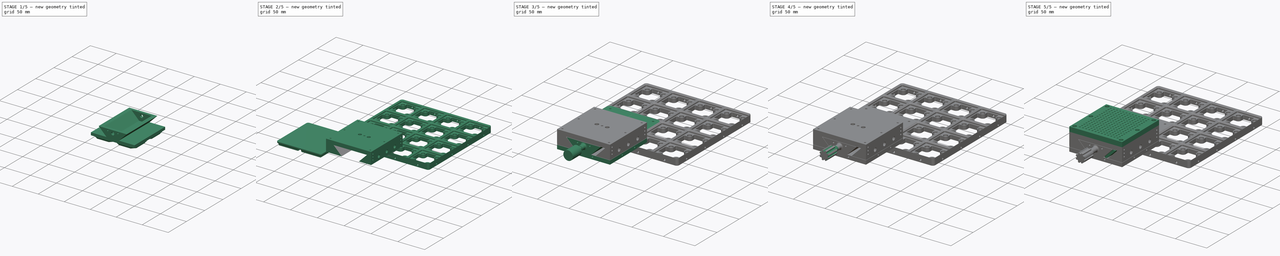
[diagram: build sequence overview — one tinted view per stage of 5, left to right]
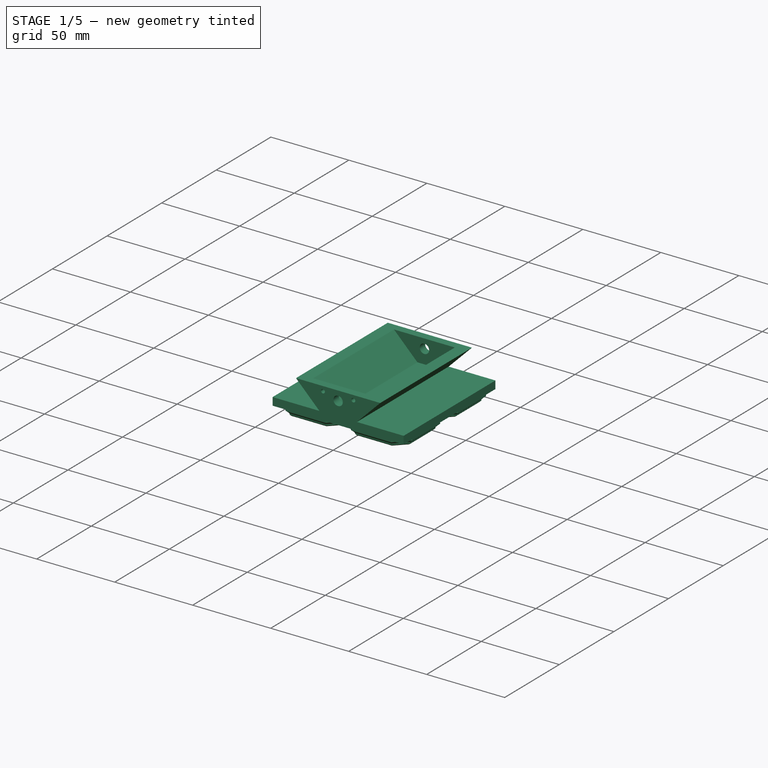
[diagram: stage 1 of 5 — iso view after this stage's code; geometry added in this stage tinted green]
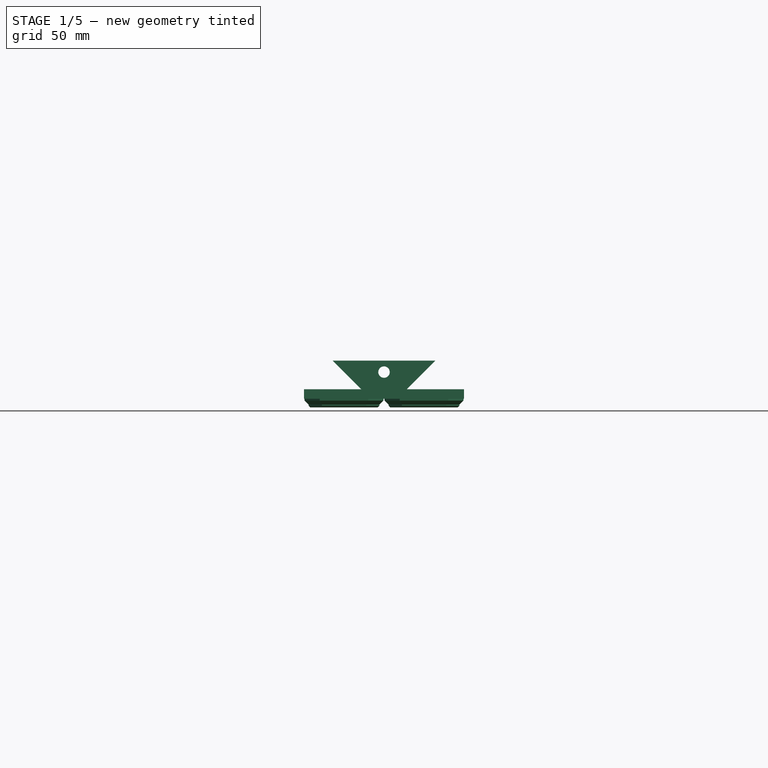
[diagram: stage 1 of 5 — front view after this stage's code; geometry added in this stage tinted green]
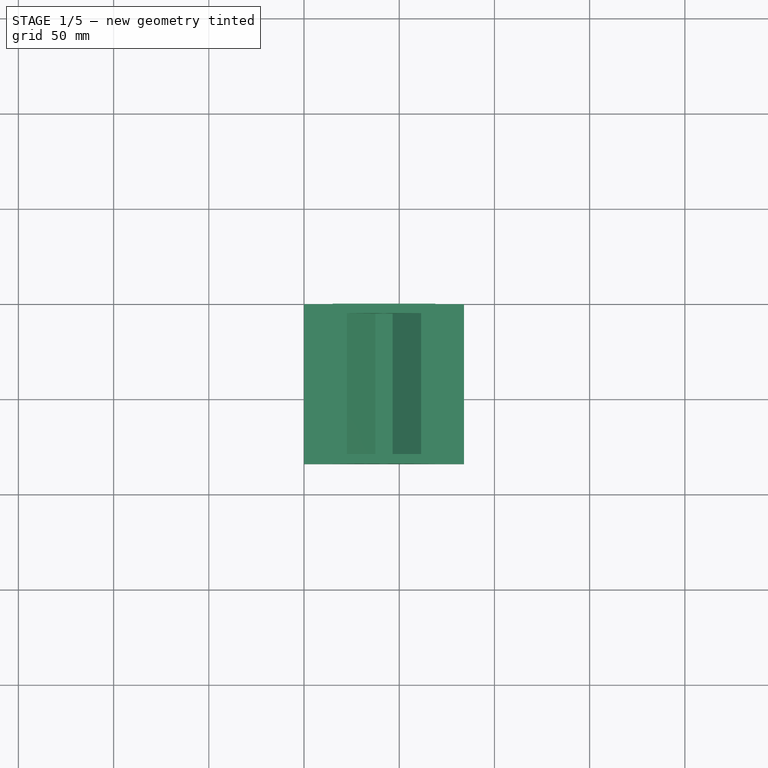
[diagram: stage 1 of 5 — top view after this stage's code; geometry added in this stage tinted green]
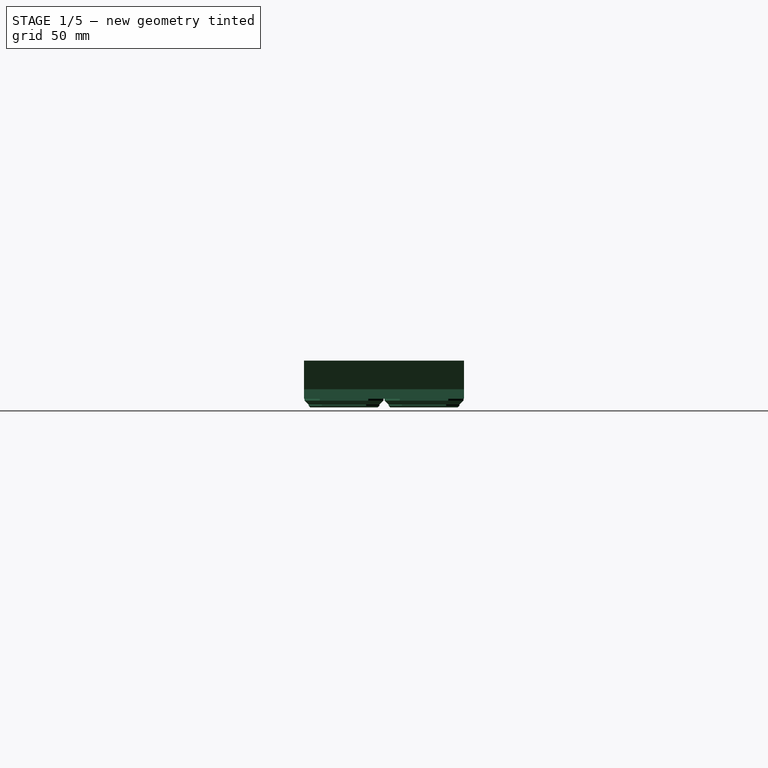
[diagram: stage 1 of 5 — right view after this stage's code; geometry added in this stage tinted green]
FCSTD DOCUMENT  (FreeCAD 1.0R39109 (Git))
Label: Linear Stage Multi Part v5
License: All rights reserved
LicenseURL: https://en.wikipedia.org/wiki/All_rights_reserved
objects: Sketcher::SketchObject×65, PartDesign::Pocket×37, PartDesign::Pad×26, PartDesign::Chamfer×17, PartDesign::Plane×12, PartDesign::Body×11, PartDesign::ShapeBinder×10, PartDesign::Fillet×6, PartDesign::SubShapeBinder×5, PartDesign::Hole×3, PartDesign::FeatureBase×3, PartDesign::Point×1, Part::Part2DObjectPython×1, Part::Helix×1, PartDesign::AdditivePipe×1, Part::FeaturePython×1, App::VarSet×1, PartDesign::FeaturePython×1
note: 450 computed .brp shape members not serialized (recipe doc carries the construction recipe); baked Part::Feature solids carry a one-line shape summary decoded from their .brp

FEATURE [Sketcher::SketchObject] Sketch
  ArcFitTolerance = 1e-06
  AttachmentSupport = -> [XZ_Plane]
  FullyConstrained = true
  MakeInternals = false
  MapMode = 5
  Placement = pos=(0,0,0) rot=(1,0,0;1.5708rad)
  sketch-geometry (8):
    g0: LineSegment StartX=0 StartY=0 StartZ=0 EndX=84 EndY=0 EndZ=0
    g1: LineSegment StartX=0 StartY=0 StartZ=0 EndX=0 EndY=5 EndZ=0
    g2: LineSegment StartX=84 StartY=0 StartZ=0 EndX=84 EndY=5 EndZ=0
    g3: LineSegment StartX=0 StartY=5 StartZ=0 EndX=30 EndY=5 EndZ=0
    g4: LineSegment StartX=84 StartY=5 StartZ=0 EndX=54 EndY=5 EndZ=0
    g5: LineSegment StartX=30 StartY=5 StartZ=0 EndX=15 EndY=20 EndZ=0
    g6: LineSegment StartX=54 StartY=5 StartZ=0 EndX=69 EndY=20 EndZ=0
    g7: LineSegment StartX=15 StartY=20 StartZ=0 EndX=69 EndY=20 EndZ=0
  constraints (24):
    c: Distance(g0) = 84
    c: Distance(g1) = 5
    c: Coincident(g1,g0)
    c: PointOnObject(g1,g-2)
    c: Vertical(g1)
    c: Distance(g2) = 5
    c: Vertical(g2)
    c: Tangent(g0,g-1)
    c: PointOnObject(g2,g0)
    c: PointOnObject(g0,g2)
    c: Coincident(g3,g1)
    c: Horizontal(g3)
    c: Coincident(g4,g2)
    c: Horizontal(g4)
    c: DistanceX(g3,g3) = 30
    c: DistanceX(g4,g4) = 30
    c: Angle(g-1,g5) = 2.35619
    c: Coincident(g5,g3)
    c: Angle(g-1,g6) = 0.785398
    c: Coincident(g6,g4)
    c: DistanceY(g-1,g5) = 20
    c: DistanceY(g-1,g6) = 20
    c: Coincident(g7,g5)
    c: Coincident(g7,g6)
FEATURE [PartDesign::Pad] Pad
  Direction = (0,-1,2e-16)
  Length = 5
  Length2 = 10
  Placement = pos=(0,0,0) rot=(1,0,0;1.5708rad)
  Profile = -> Sketch
  ReferenceAxis = -> Sketch [N_Axis]
  Refine = true
  Suppressed = false
  Type = 0
FEATURE [Sketcher::SketchObject] Sketch001
  ArcFitTolerance = 1e-06
  AttachmentSupport = -> [Pad]
  ExternalGeometry = -> [Pad]
  FullyConstrained = true
  MakeInternals = false
  MapMode = 5
  Placement = pos=(0,-5,0) rot=(1,0,0;1.5708rad)
  sketch-geometry (14):
    g0: LineSegment StartX=15 StartY=20 StartZ=0 EndX=22.5 EndY=20 EndZ=0
    g1: LineSegment [constr] StartX=30 StartY=5 StartZ=0 EndX=37.5 EndY=5 EndZ=0
    g2: LineSegment StartX=22.5 StartY=20 StartZ=0 EndX=37.5 EndY=5 EndZ=0
    g3: LineSegment StartX=69 StartY=20 StartZ=0 EndX=61.5 EndY=20 EndZ=0
    g4: LineSegment [constr] StartX=54 StartY=5 StartZ=0 EndX=46.5 EndY=5 EndZ=0
    g5: LineSegment StartX=46.5 StartY=5 StartZ=0 EndX=61.5 EndY=20 EndZ=0
    g6: LineSegment StartX=46.5 StartY=5 StartZ=0 EndX=37.5 EndY=5 EndZ=0
    g7: LineSegment StartX=15 StartY=20 StartZ=0 EndX=30 EndY=5 EndZ=0
    g8: LineSegment StartX=30 StartY=5 StartZ=0 EndX=0 EndY=5 EndZ=0
    g9: LineSegment StartX=0 StartY=5 StartZ=0 EndX=0 EndY=0 EndZ=0
    g10: LineSegment StartX=0 StartY=0 StartZ=0 EndX=84 EndY=0 EndZ=0
    g11: LineSegment StartX=84 StartY=0 StartZ=0 EndX=84 EndY=5 EndZ=0
    g12: LineSegment StartX=84 StartY=5 StartZ=0 EndX=54 EndY=5 EndZ=0
    g13: LineSegment StartX=54 StartY=5 StartZ=0 EndX=69 EndY=20 EndZ=0
  constraints (32):
    c: Distance(g0) = 7.5
    c: Coincident(g0,g-4)
    c: PointOnObject(g0,g-3)
    c: Distance(g1) = 7.5
    c: Coincident(g1,g-5)
    c: Horizontal(g1)
    c: Coincident(g2,g0)
    c: Coincident(g2,g1)
    c: Distance(g3) = 7.5
    c: Coincident(g3,g-3)
    c: PointOnObject(g3,g-3)
    c: Distance(g4) = 7.5
    c: Coincident(g4,g-6)
    c: Horizontal(g4)
    c: Coincident(g5,g4)
    c: Coincident(g5,g3)
    c: Coincident(g6,g4)
    c: Coincident(g6,g1)
    c: Coincident(g7,g0)
    c: Coincident(g7,g1)
    c: Coincident(g8,g1)
    c: Coincident(g8,g-8)
    c: Coincident(g9,g8)
    c: Coincident(g9,g-1)
    c: Coincident(g10,g9)
    c: Coincident(g10,g-9)
    c: Coincident(g11,g10)
    c: Coincident(g11,g-7)
    c: Coincident(g12,g11)
    c: Coincident(g12,g4)
    c: Coincident(g13,g4)
    c: Coincident(g13,g3)
FEATURE [PartDesign::Pad] Pad001
  BaseFeature = -> Pad
  Direction = (0,-1,2e-16)
  Length = 74
  Length2 = 10
  Placement = pos=(0,0,0) rot=(1,0,0;1.5708rad)
  Profile = -> Sketch001
  ReferenceAxis = -> Sketch001 [N_Axis]
  Refine = true
  Suppressed = false
  Type = 0
FEATURE [Sketcher::SketchObject] Sketch002
  ArcFitTolerance = 1e-06
  AttachmentSupport = -> [Pad001]
  ExternalGeometry = -> [Pad001]
  FullyConstrained = true
  MakeInternals = false
  MapMode = 5
  Placement = pos=(0,-5,0) rot=(1,0,0;1.5708rad)
  sketch-geometry (2):
    g0: LineSegment [constr] StartX=42 StartY=20 StartZ=0 EndX=42 EndY=14 EndZ=0
    g1: Circle CenterX=42 CenterY=14 CenterZ=0 NormalX=0 NormalY=0 NormalZ=1 AngleXU=0 Radius=3
  constraints (5):
    c: Distance(g0) = 6
    c: Symmetric(g-3,g-3,g0)
    c: Vertical(g0)
    c: Diameter(g1) = 6
    c: Coincident(g1,g0)
FEATURE [PartDesign::Hole] Hole
  BaseFeature = -> Pad001
  CustomThreadClearance = 0
  Depth = 25
  DepthType = 0
  Diameter = 6
  DrillForDepth = false
  DrillPoint = 1
  DrillPointAngle = 118
  HoleCutCountersinkAngle = 90
  HoleCutCustomValues = false
  HoleCutDepth = 0
  HoleCutDiameter = 6.1
  HoleCutType = 0
  ModelThread = false
  Placement = pos=(0,0,0) rot=(1,0,0;1.5708rad)
  Profile = -> Sketch002
  Refine = true
  Suppressed = false
  Tapered = false
  TaperedAngle = 90
  ThreadClass = 0
  ThreadDepth = 25
  ThreadDepthType = 0
  ThreadDirection = 0
  ThreadFit = 0
  ThreadSize = 0
  ThreadType = 0
  Threaded = false
  UseCustomThreadClearance = false
FEATURE [Sketcher::SketchObject] Sketch003
  ArcFitTolerance = 1e-06
  AttachmentSupport = -> [Hole]
  ExternalGeometry = -> [Hole]
  FullyConstrained = true
  MakeInternals = false
  MapMode = 5
  Placement = pos=(0,-79,1.74e-14) rot=(1,0,0;1.5708rad)
  sketch-geometry (16):
    g0: LineSegment StartX=15 StartY=20 StartZ=0 EndX=69 EndY=20 EndZ=0
    g1: LineSegment StartX=15 StartY=20 StartZ=0 EndX=30 EndY=5 EndZ=0
    g2: LineSegment StartX=30 StartY=5 StartZ=0 EndX=0 EndY=5 EndZ=0
    g3: LineSegment StartX=0 StartY=5 StartZ=0 EndX=0 EndY=0 EndZ=0
    g4: LineSegment StartX=0 StartY=0 StartZ=0 EndX=84 EndY=0 EndZ=0
    g5: LineSegment StartX=84 StartY=0 StartZ=0 EndX=84 EndY=5 EndZ=0
    g6: LineSegment StartX=84 StartY=5 StartZ=0 EndX=54 EndY=5 EndZ=0
    g7: LineSegment StartX=54 StartY=5 StartZ=0 EndX=69 EndY=20 EndZ=0
    g8: LineSegment [constr] StartX=42 StartY=20 StartZ=0 EndX=42 EndY=14 EndZ=0
    g9: Circle CenterX=42 CenterY=14 CenterZ=0 NormalX=0 NormalY=0 NormalZ=1 AngleXU=0 Radius=3
    g10: LineSegment [constr] StartX=42 StartY=14 StartZ=0 EndX=22.5 EndY=20 EndZ=0
    g11: LineSegment [constr] StartX=42 StartY=14 StartZ=0 EndX=61.5 EndY=20 EndZ=0
    g12: GeomPoint [constr] X=32.25 Y=17 Z=0
    g13: GeomPoint [constr] X=51.75 Y=17 Z=0
    g14: Circle CenterX=32.25 CenterY=17 CenterZ=0 NormalX=0 NormalY=0 NormalZ=1 AngleXU=0 Radius=1.25
    g15: Circle CenterX=51.75 CenterY=17 CenterZ=0 NormalX=0 NormalY=0 NormalZ=1 AngleXU=0 Radius=1.25
  constraints (31):
    c: Coincident(g0,g-4)
    c: Coincident(g0,g-11)
    c: Coincident(g1,g0)
    c: Coincident(g1,g-5)
    c: Coincident(g2,g1)
    c: Coincident(g2,g-6)
    c: Coincident(g3,g2)
    c: Coincident(g3,g-1)
    c: Coincident(g4,g3)
    c: Coincident(g4,g-8)
    c: Coincident(g5,g4)
    c: Coincident(g5,g-9)
    c: Coincident(g6,g5)
    c: Coincident(g6,g-10)
    c: Coincident(g7,g6)
    c: Coincident(g7,g0)
    c: Distance(g8) = 6
    c: Symmetric(g0,g0,g8)
    c: Vertical(g8)
    c: Diameter(g9) = 6
    c: Coincident(g9,g8)
    c: Coincident(g10,g8)
    c: Coincident(g10,g-14)
    c: Coincident(g11,g8)
    c: Coincident(g11,g-12)
    c: Symmetric(g10,g10,g12)
    c: Symmetric(g11,g11,g13)
    c: Diameter(g14) = 2.5
    c: Coincident(g14,g12)
    c: Diameter(g15) = 2.5
    c: Coincident(g15,g13)
FEATURE [PartDesign::Pad] Pad002
  BaseFeature = -> Hole
  Direction = (0,-1,2e-16)
  Length = 5
  Length2 = 10
  Placement = pos=(0,0,0) rot=(1,0,0;1.5708rad)
  Profile = -> Sketch003
  ReferenceAxis = -> Sketch003 [N_Axis]
  Refine = true
  Suppressed = false
  Type = 0
FEATURE [PartDesign::Plane] DatumPlane
  AttachmentSupport = -> [Pad002]
  Length = 131.586
  MapMode = 5
  Placement = pos=(0,0,-5e-16) rot=(1,0,0;3.14159rad)
  ResizeMode = 0
  Width = 139.586
FEATURE [Sketcher::SketchObject] Sketch004
  ArcFitTolerance = 1e-06
  AttachmentSupport = -> [Pad002]
  ExternalGeometry = -> [Pad002]
  FullyConstrained = true
  MakeInternals = false
  MapMode = 5
  Placement = pos=(0,0,-5e-16) rot=(1,0,0;3.14159rad)
  sketch-geometry (23):
    g0: LineSegment [constr] StartX=0 StartY=84 StartZ=0 EndX=84 EndY=0 EndZ=0
    g1: LineSegment [constr] StartX=41.75 StartY=41.75 StartZ=0 EndX=42.25 EndY=41.75 EndZ=0
    g2: LineSegment [constr] StartX=42.25 StartY=41.75 StartZ=0 EndX=42.25 EndY=42.25 EndZ=0
    g3: LineSegment [constr] StartX=42.25 StartY=42.25 StartZ=0 EndX=41.75 EndY=42.25 EndZ=0
    g4: LineSegment [constr] StartX=41.75 StartY=42.25 StartZ=0 EndX=41.75 EndY=41.75 EndZ=0
    g5: GeomPoint [constr] X=42 Y=42 Z=0
    g6: LineSegment [constr] StartX=0 StartY=0 StartZ=0 EndX=84 EndY=84 EndZ=0
    g7: LineSegment StartX=42.25 StartY=42.25 StartZ=0 EndX=83.75 EndY=42.25 EndZ=0
    g8: LineSegment StartX=83.75 StartY=42.25 StartZ=0 EndX=83.75 EndY=83.75 EndZ=0
    g9: LineSegment StartX=83.75 StartY=83.75 StartZ=0 EndX=42.25 EndY=83.75 EndZ=0
    g10: LineSegment StartX=42.25 StartY=83.75 StartZ=0 EndX=42.25 EndY=42.25 EndZ=0
    g11: LineSegment StartX=41.75 StartY=42.25 StartZ=0 EndX=41.75 EndY=83.75 EndZ=0
    g12: LineSegment StartX=41.75 StartY=83.75 StartZ=0 EndX=0.25 EndY=83.75 EndZ=0
    g13: LineSegment StartX=0.25 StartY=83.75 StartZ=0 EndX=0.25 EndY=42.25 EndZ=0
    g14: LineSegment StartX=0.25 StartY=42.25 StartZ=0 EndX=41.75 EndY=42.25 EndZ=0
    g15: LineSegment StartX=42.25 StartY=41.75 StartZ=0 EndX=42.25 EndY=0.25 EndZ=0
    g16: LineSegment StartX=42.25 StartY=0.25 StartZ=0 EndX=83.75 EndY=0.25 EndZ=0
    g17: LineSegment StartX=83.75 StartY=0.25 StartZ=0 EndX=83.75 EndY=41.75 EndZ=0
    g18: LineSegment StartX=83.75 StartY=41.75 StartZ=0 EndX=42.25 EndY=41.75 EndZ=0
    g19: LineSegment StartX=41.75 StartY=41.75 StartZ=0 EndX=0.25 EndY=41.75 EndZ=0
    g20: LineSegment StartX=0.25 StartY=41.75 StartZ=0 EndX=0.25 EndY=0.25 EndZ=0
    g21: LineSegment StartX=0.25 StartY=0.25 StartZ=0 EndX=41.75 EndY=0.25 EndZ=0
    g22: LineSegment StartX=41.75 StartY=0.25 StartZ=0 EndX=41.75 EndY=41.75 EndZ=0
  constraints (61):
    c: Coincident(g0,g-6)
    c: Coincident(g0,g-5)
    c: Coincident(g1,g2)
    c: Coincident(g2,g3)
    c: Coincident(g3,g4)
    c: Coincident(g4,g1)
    c: Horizontal(g1)
    c: Horizontal(g3)
    c: Vertical(g2)
    c: Vertical(g4)
    c: Symmetric(g3,g1,g5)
    c: Distance(g2,g4) = 0.5
    c: Distance(g1,g3) = 0.5
    c: PointOnObject(g5,g0)
    c: Coincident(g6,g-1)
    c: Coincident(g6,g-4)
    c: PointOnObject(g5,g6)
    c: Coincident(g7,g8)
    c: Coincident(g8,g9)
    c: Coincident(g9,g10)
    c: Coincident(g10,g7)
    c: Horizontal(g7)
    c: Horizontal(g9)
    c: Vertical(g8)
    c: Vertical(g10)
    c: Distance(g8,g10) = 41.5
    c: Coincident(g7,g2)
    c: PointOnObject(g8,g6)
    c: Coincident(g11,g12)
    c: Coincident(g12,g13)
    c: Coincident(g13,g14)
    c: Coincident(g14,g11)
    c: Vertical(g11)
    c: Vertical(g13)
    c: Horizontal(g12)
    c: Horizontal(g14)
    c: Distance(g11,g13) = 41.5
    c: Coincident(g11,g3)
    c: PointOnObject(g12,g0)
    c: Coincident(g15,g16)
    c: Coincident(g16,g17)
    c: Coincident(g17,g18)
    c: Coincident(g18,g15)
    c: Vertical(g15)
    c: Vertical(g17)
    c: Horizontal(g16)
    c: Horizontal(g18)
    c: Distance(g15,g17) = 41.5
    c: Coincident(g15,g1)
    c: PointOnObject(g16,g0)
    c: Coincident(g19,g20)
    c: Coincident(g20,g21)
    c: Coincident(g21,g22)
    c: Coincident(g22,g19)
    c: Horizontal(g19)
    c: Horizontal(g21)
    c: Vertical(g20)
    c: Vertical(g22)
    c: Distance(g20,g22) = 41.5
    c: Coincident(g19,g1)
    c: PointOnObject(g20,g6)
FEATURE [PartDesign::Pad] Pad003
  BaseFeature = -> Pad002
  Direction = (0,0,-1)
  Length = 1
  Length2 = 10
  Placement = pos=(0,0,0) rot=(1,0,0;1.5708rad)
  Profile = -> Sketch004
  ReferenceAxis = -> Sketch004 [N_Axis]
  Refine = true
  Suppressed = false
  Type = 0
FEATURE [PartDesign::Plane] DatumPlane001
  AttachmentSupport = -> [Pad003]
  Length = 131.586
  MapMode = 5
  Placement = pos=(0,0,-1) rot=(1,0,0;3.14159rad)
  ResizeMode = 0
  Width = 139.586
FEATURE [Sketcher::SketchObject] Sketch005
  ArcFitTolerance = 1e-06
  AttachmentSupport = -> [DatumPlane001]
  ExternalGeometry = -> [Pad003]
  FullyConstrained = true
  MakeInternals = false
  MapMode = 5
  Placement = pos=(0,0,-1) rot=(1,0,0;3.14159rad)
  sketch-geometry (28):
    g0: LineSegment [constr] StartX=41.75 StartY=42.25 StartZ=0 EndX=0.25 EndY=83.75 EndZ=0
    g1: GeomPoint [constr] X=21 Y=63 Z=0
    g2: LineSegment StartX=2.4 StartY=44.4 StartZ=0 EndX=39.6 EndY=44.4 EndZ=0
    g3: LineSegment StartX=39.6 StartY=44.4 StartZ=0 EndX=39.6 EndY=81.6 EndZ=0
    g4: LineSegment StartX=39.6 StartY=81.6 StartZ=0 EndX=2.4 EndY=81.6 EndZ=0
    g5: LineSegment StartX=2.4 StartY=81.6 StartZ=0 EndX=2.4 EndY=44.4 EndZ=0
    g6: GeomPoint [constr] X=21 Y=63 Z=0
    g7: LineSegment [constr] StartX=42.25 StartY=83.75 StartZ=0 EndX=83.75 EndY=42.25 EndZ=0
    g8: LineSegment [constr] StartX=83.75 StartY=41.75 StartZ=0 EndX=42.25 EndY=0.25 EndZ=0
    g9: LineSegment [constr] StartX=41.75 StartY=0.25 StartZ=0 EndX=0.25 EndY=41.75 EndZ=0
    g10: GeomPoint [constr] X=63 Y=63 Z=0
    g11: GeomPoint [constr] X=63 Y=21 Z=0
    g12: GeomPoint [constr] X=21 Y=21 Z=0
    g13: LineSegment StartX=44.4 StartY=44.4 StartZ=0 EndX=81.6 EndY=44.4 EndZ=0
    g14: LineSegment StartX=81.6 StartY=44.4 StartZ=0 EndX=81.6 EndY=81.6 EndZ=0
    g15: LineSegment StartX=81.6 StartY=81.6 StartZ=0 EndX=44.4 EndY=81.6 EndZ=0
    g16: LineSegment StartX=44.4 StartY=81.6 StartZ=0 EndX=44.4 EndY=44.4 EndZ=0
    g17: GeomPoint [constr] X=63 Y=63 Z=0
    g18: LineSegment StartX=44.4 StartY=2.4 StartZ=0 EndX=81.6 EndY=2.4 EndZ=0
    g19: LineSegment StartX=81.6 StartY=2.4 StartZ=0 EndX=81.6 EndY=39.6 EndZ=0
    g20: LineSegment StartX=81.6 StartY=39.6 StartZ=0 EndX=44.4 EndY=39.6 EndZ=0
    g21: LineSegment StartX=44.4 StartY=39.6 StartZ=0 EndX=44.4 EndY=2.4 EndZ=0
    g22: GeomPoint [constr] X=63 Y=21 Z=0
    g23: LineSegment StartX=2.4 StartY=2.4 StartZ=0 EndX=39.6 EndY=2.4 EndZ=0
    g24: LineSegment StartX=39.6 StartY=2.4 StartZ=0 EndX=39.6 EndY=39.6 EndZ=0
    g25: LineSegment StartX=39.6 StartY=39.6 StartZ=0 EndX=2.4 EndY=39.6 EndZ=0
    g26: LineSegment StartX=2.4 StartY=39.6 StartZ=0 EndX=2.4 EndY=2.4 EndZ=0
    g27: GeomPoint [constr] X=21 Y=21 Z=0
  constraints (60):
    c: Coincident(g0,g-14)
    c: Coincident(g0,g-16)
    c: Symmetric(g0,g0,g1)
    c: Coincident(g2,g3)
    c: Coincident(g3,g4)
    c: Coincident(g4,g5)
    c: Coincident(g5,g2)
    c: Horizontal(g2)
    c: Horizontal(g4)
    c: Vertical(g3)
    c: Vertical(g5)
    c: Symmetric(g4,g2,g6)
    c: Distance(g3,g5) = 37.2
    c: Distance(g2,g4) = 37.2
    c: Coincident(g6,g1)
    c: Coincident(g7,g-18)
    c: Coincident(g7,g-17)
    c: Coincident(g8,g-9)
    c: Coincident(g8,g-10)
    c: Coincident(g9,g-4)
    c: Coincident(g9,g-6)
    c: Symmetric(g7,g7,g10)
    c: Symmetric(g8,g8,g11)
    c: Symmetric(g9,g9,g12)
    c: Coincident(g13,g14)
    c: Coincident(g14,g15)
    c: Coincident(g15,g16)
    c: Coincident(g16,g13)
    c: Horizontal(g13)
    c: Horizontal(g15)
    c: Vertical(g14)
    c: Vertical(g16)
    c: Symmetric(g15,g13,g17)
    c: Distance(g14,g16) = 37.2
    c: Distance(g13,g15) = 37.2
    c: Coincident(g17,g10)
    c: Coincident(g18,g19)
    c: Coincident(g19,g20)
    c: Coincident(g20,g21)
    c: Coincident(g21,g18)
    c: Horizontal(g18)
    c: Horizontal(g20)
    c: Vertical(g19)
    c: Vertical(g21)
    c: Symmetric(g20,g18,g22)
    c: Distance(g19,g21) = 37.2
    c: Coincident(g22,g11)
    c: PointOnObject(g19,g8)
    c: Coincident(g23,g24)
    c: Coincident(g24,g25)
    c: Coincident(g25,g26)
    c: Coincident(g26,g23)
    c: Horizontal(g23)
    c: Horizontal(g25)
    c: Vertical(g24)
    c: Vertical(g26)
    c: Symmetric(g25,g23,g27)
    c: Distance(g24,g26) = 37.2
    c: Distance(g23,g25) = 37.2
    c: Coincident(g27,g12)
FEATURE [PartDesign::Pad] Pad004
  BaseFeature = -> Pad003
  Direction = (0,0,-1)
  Length = 3.5
  Length2 = 10
  Placement = pos=(0,0,0) rot=(1,0,0;1.5708rad)
  Profile = -> Sketch005
  ReferenceAxis = -> Sketch005 [N_Axis]
  Refine = true
  Suppressed = false
  Type = 0
FEATURE [PartDesign::Chamfer] Chamfer
  Angle = 45
  Base = -> Pad004 [Edge114]
  BaseFeature = -> Pad004
  ChamferType = 0
  FlipDirection = false
  Placement = pos=(0,0,0) rot=(1,0,0;1.5708rad)
  Refine = true
  Size = 7
  Size2 = 1
  SupportTransform = false
  Suppressed = false
  UseAllEdges = false
FEATURE [PartDesign::Chamfer] Chamfer001
  Angle = 45
  Base = -> Chamfer [Edge23]
  BaseFeature = -> Chamfer
  ChamferType = 0
  FlipDirection = false
  Placement = pos=(0,0,0) rot=(1,0,0;1.5708rad)
  Refine = true
  Size = 7
  Size2 = 1
  SupportTransform = false
  Suppressed = false
  UseAllEdges = false
FEATURE [PartDesign::Chamfer] Chamfer002
  Angle = 45
  Base = -> Chamfer001 [Edge136,Edge28,Edge143,Edge22,Edge135,Edge128,Edge144,Edge148,Edge140,Edge127,Edge132,Edge138,Edge26,Edge130]
  BaseFeature = -> Chamfer001
  ChamferType = 0
  FlipDirection = false
  Placement = pos=(0,0,0) rot=(1,0,0;1.5708rad)
  Refine = true
  Size = 7
  Size2 = 1
  SupportTransform = false
  Suppressed = false
  UseAllEdges = false
FEATURE [PartDesign::Chamfer] Chamfer003
  Angle = 45
  Base = -> Chamfer002 [Edge77,Edge79,Edge93,Edge81,Edge95,Edge38,Edge76,Edge32,Edge92,Edge84,Edge97,Edge85,Edge87,Edge89,Edge35]
  BaseFeature = -> Chamfer002
  ChamferType = 0
  FlipDirection = false
  Placement = pos=(0,0,0) rot=(1,0,0;1.5708rad)
  Refine = true
  Size = 8
  Size2 = 1
  SupportTransform = false
  Suppressed = false
  UseAllEdges = false
FEATURE [PartDesign::Chamfer] Chamfer004
  Angle = 45
  Base = -> Chamfer003 [Edge231]
  BaseFeature = -> Chamfer003
  ChamferType = 0
  FlipDirection = false
  Placement = pos=(0,0,0) rot=(1,0,0;1.5708rad)
  Refine = true
  Size = 7
  Size2 = 1
  SupportTransform = false
  Suppressed = false
  UseAllEdges = false
FEATURE [PartDesign::Chamfer] Chamfer005
  Angle = 45
  Base = -> Chamfer004 [Edge1,Edge2,Edge4,Edge6,Edge8,Edge7,Edge5,Edge3]
  BaseFeature = -> Chamfer004
  ChamferType = 0
  FlipDirection = false
  Placement = pos=(0,0,0) rot=(1,0,0;1.5708rad)
  Refine = true
  Size = 2
  Size2 = 1
  SupportTransform = false
  Suppressed = false
  UseAllEdges = false
FEATURE [PartDesign::Chamfer] Chamfer006
  Angle = 45
  Base = -> Chamfer005 [Edge60,Edge64,Edge62,Edge58,Edge55,Edge50,Edge52,Edge56]
  BaseFeature = -> Chamfer005
  ChamferType = 0
  FlipDirection = false
  Placement = pos=(0,0,0) rot=(1,0,0;1.5708rad)
  Refine = true
  Size = 0.8
  Size2 = 1
  SupportTransform = false
  Suppressed = false
  UseAllEdges = false
FEATURE [PartDesign::Chamfer] Chamfer007
  Angle = 45
  Base = -> Chamfer006 [Edge207,Edge208,Edge205,Edge206,Edge204,Edge202,Edge203,Edge201]
  BaseFeature = -> Chamfer006
  ChamferType = 0
  FlipDirection = false
  Placement = pos=(0,0,0) rot=(1,0,0;1.5708rad)
  Refine = true
  Size = 2
  Size2 = 1
  SupportTransform = false
  Suppressed = false
  UseAllEdges = false
FEATURE [PartDesign::Chamfer] Chamfer008
  Angle = 45
  Base = -> Chamfer007 [Edge63,Edge64,Edge60,Edge57,Edge52,Edge50,Edge55,Edge59]
  BaseFeature = -> Chamfer007
  ChamferType = 0
  FlipDirection = false
  Placement = pos=(0,0,0) rot=(1,0,0;1.5708rad)
  Refine = true
  Size = 0.8
  Size2 = 1
  SupportTransform = false
  Suppressed = false
  UseAllEdges = false
FEATURE [PartDesign::Chamfer] Chamfer009
  Angle = 45
  Base = -> Chamfer008 [Edge179,Edge177,Edge178,Edge181,Edge180,Edge182,Edge184,Edge183]
  BaseFeature = -> Chamfer008
  ChamferType = 0
  FlipDirection = false
  Placement = pos=(0,0,0) rot=(1,0,0;1.5708rad)
  Refine = true
  Size = 2
  Size2 = 1
  SupportTransform = false
  Suppressed = false
  UseAllEdges = false
FEATURE [PartDesign::Chamfer] Chamfer010
  Angle = 45
  Base = -> Chamfer009 [Edge55,Edge58,Edge62,Edge64,Edge61,Edge56,Edge53,Edge50]
  BaseFeature = -> Chamfer009
  ChamferType = 0
  FlipDirection = false
  Placement = pos=(0,0,0) rot=(1,0,0;1.5708rad)
  Refine = true
  Size = 0.8
  Size2 = 1
  SupportTransform = false
  Suppressed = false
  UseAllEdges = false
FEATURE [PartDesign::Chamfer] Chamfer011
  Angle = 45
  Base = -> Chamfer010 [Edge203,Edge205,Edge201,Edge202,Edge204,Edge206,Edge208,Edge207]
  BaseFeature = -> Chamfer010
  ChamferType = 0
  FlipDirection = false
  Placement = pos=(0,0,0) rot=(1,0,0;1.5708rad)
  Refine = true
  Size = 2
  Size2 = 1
  SupportTransform = false
  Suppressed = false
  UseAllEdges = false
FEATURE [PartDesign::Chamfer] Chamfer012
  Angle = 45
  Base = -> Chamfer011 [Edge62,Edge59,Edge54,Edge50,Edge53,Edge56,Edge61,Edge64]
  BaseFeature = -> Chamfer011
  ChamferType = 0
  FlipDirection = false
  Placement = pos=(0,0,0) rot=(1,0,0;1.5708rad)
  Refine = true
  Size = 0.8
  Size2 = 1
  SupportTransform = false
  Suppressed = false
  UseAllEdges = false
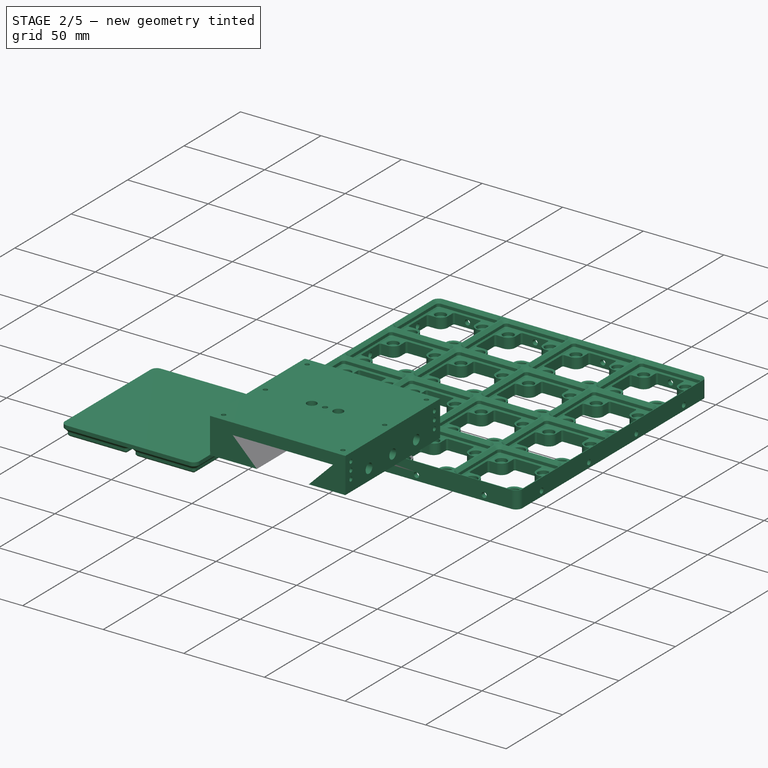
[diagram: stage 2 of 5 — iso view after this stage's code; geometry added in this stage tinted green]
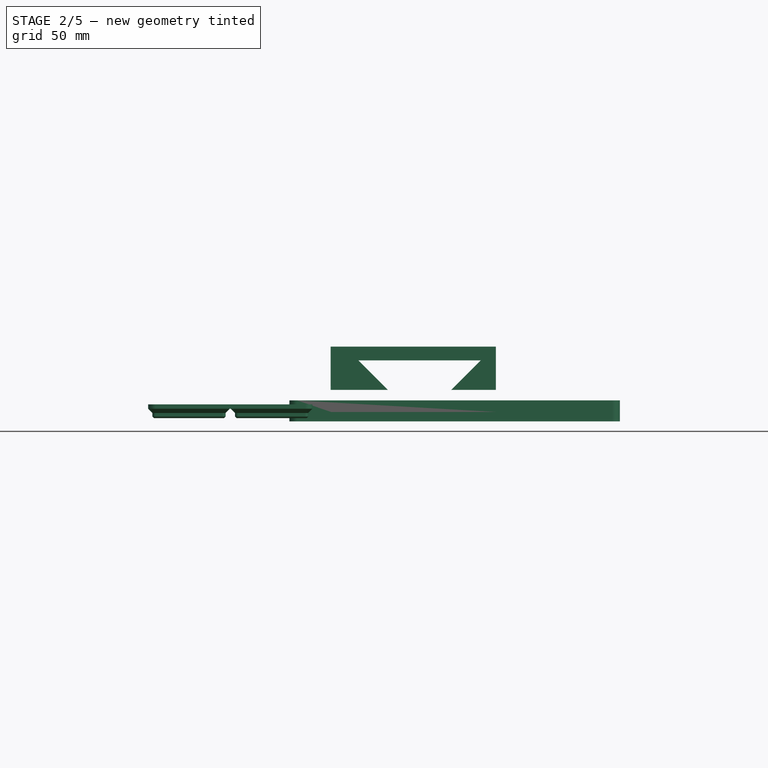
[diagram: stage 2 of 5 — front view after this stage's code; geometry added in this stage tinted green]
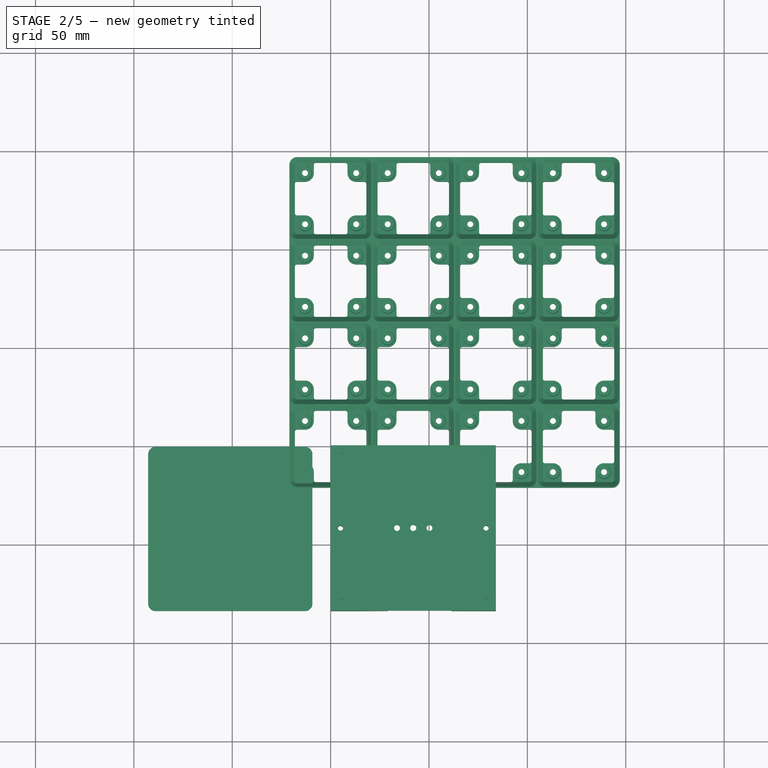
[diagram: stage 2 of 5 — top view after this stage's code; geometry added in this stage tinted green]
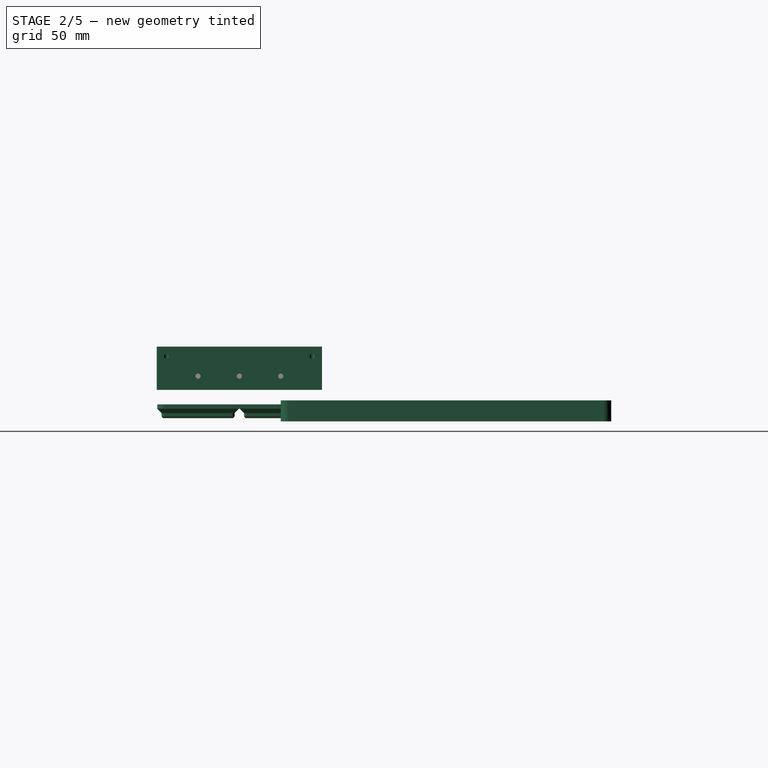
[diagram: stage 2 of 5 — right view after this stage's code; geometry added in this stage tinted green]
FEATURE [PartDesign::Fillet] Fillet
  Base = -> Chamfer012 [Edge188,Edge187]
  BaseFeature = -> Chamfer012
  Placement = pos=(0,0,0) rot=(1,0,0;1.5708rad)
  Radius = 0.5
  Refine = true
  SupportTransform = false
  Suppressed = false
  UseAllEdges = false
FEATURE [PartDesign::Body] Body001  label="Shim"
  AllowCompound = false
  Group = -> [ShapeBinder,DatumPlane002,CopyFillet,Sketch006,Pad005,DatumPlane003,Sketch007,Pocket,Fillet001,Fillet002,Fillet003]
  Origin = -> Origin001
  Tip = -> Fillet003
FEATURE [PartDesign::ShapeBinder] ShapeBinder001
  Support = -> [Fillet]
  TraceSupport = false
FEATURE [PartDesign::ShapeBinder] CopyFillet001
  Placement = pos=(0,-5,2e-15) rot=(0,0,1;0rad)
  TraceSupport = false
FEATURE [PartDesign::Plane] DatumPlane004
  AttachmentSupport = -> [CopyFillet001]
  Length = 124.108
  MapMode = 5
  Placement = pos=(0,-84,2e-15) rot=(1,0,0;1.5708rad)
  ResizeMode = 0
  Width = 67.4619
FEATURE [Sketcher::SketchObject] Sketch008
  ArcFitTolerance = 1e-06
  AttachmentSupport = -> [DatumPlane004]
  ExternalGeometry = -> [ShapeBinder001]
  FullyConstrained = true
  MakeInternals = false
  MapMode = 5
  Placement = pos=(0,-84,2e-15) rot=(1,0,0;1.5708rad)
  sketch-geometry (21):
    g0: LineSegment [constr] StartX=54 StartY=5 StartZ=0 EndX=61 EndY=5 EndZ=0
    g1: LineSegment [constr] StartX=68.1465 StartY=19.1464 StartZ=0 EndX=69 EndY=20 EndZ=0
    g2: LineSegment [constr] StartX=67.7929 StartY=20 StartZ=0 EndX=69 EndY=20 EndZ=0
    g3: LineSegment [constr] StartX=69 StartY=20 StartZ=0 EndX=76 EndY=20 EndZ=0
    g4: LineSegment [constr] StartX=61 StartY=5 StartZ=0 EndX=61.3536 EndY=5.35355 EndZ=0
    g5: LineSegment [constr] StartX=76 StartY=20 StartZ=0 EndX=76.3536 EndY=20.3536 EndZ=0
    g6: LineSegment StartX=76.3536 StartY=20.3536 StartZ=0 EndX=61.3536 EndY=5.35355 EndZ=0
    g7: LineSegment [constr] StartX=84 StartY=5 StartZ=0 EndX=84 EndY=5.5 EndZ=0
    g8: LineSegment StartX=61.3536 StartY=5.35355 StartZ=0 EndX=84 EndY=5.35355 EndZ=0
    g9: LineSegment StartX=84 StartY=5.35355 StartZ=0 EndX=84 EndY=25.3536 EndZ=0
    g10: LineSegment [constr] StartX=30 StartY=5 StartZ=0 EndX=29.5 EndY=5 EndZ=0
    g11: LineSegment [constr] StartX=16.2071 StartY=20 StartZ=0 EndX=14.5 EndY=20 EndZ=0
    g12: LineSegment [constr] StartX=29.5 StartY=5 StartZ=0 EndX=14.5 EndY=20 EndZ=0
    g13: LineSegment [constr] StartX=14.5 StartY=20 StartZ=0 EndX=14.1465 EndY=20.3536 EndZ=0
    g14: LineSegment [constr] StartX=29.5 StartY=5 StartZ=0 EndX=29.1464 EndY=5.35355 EndZ=0
    g15: LineSegment StartX=29.1464 StartY=5.35355 StartZ=0 EndX=14.1465 EndY=20.3536 EndZ=0
    g16: LineSegment [constr] StartX=0 StartY=5 StartZ=0 EndX=0 EndY=15 EndZ=0
    g17: LineSegment StartX=29.1464 StartY=5.35355 StartZ=0 EndX=0 EndY=5.35355 EndZ=0
    g18: LineSegment StartX=0 StartY=5.35355 StartZ=0 EndX=0 EndY=25.3536 EndZ=0
    g19: LineSegment StartX=0 StartY=25.3536 StartZ=0 EndX=84 EndY=25.3536 EndZ=0
    g20: LineSegment StartX=14.1465 StartY=20.3536 StartZ=0 EndX=76.3536 EndY=20.3536 EndZ=0
  constraints (58):
    c: Distance(g0) = 7
    c: Coincident(g0,g-8)
    c: PointOnObject(g0,g-8)
    c: Coincident(g1,g-7)
    c: Coincident(g2,g-6)
    c: Coincident(g2,g1)
    c: Parallel(g2,g-6)
    c: Parallel(g1,g-7)
    c: Distance(g3) = 7
    c: Coincident(g3,g1)
    c: Parallel(g3,g-6)
    c: Distance(g4) = 0.5
    c: Coincident(g4,g0)
    c: Parallel(g-7,g4)
    c: Distance(g5) = 0.5
    c: Coincident(g5,g3)
    c: Parallel(g5,g1)
    c: Coincident(g6,g5)
    c: Coincident(g6,g4)
    c: Distance(g7) = 0.5
    c: Coincident(g7,g-9)
    c: Vertical(g7)
    c: Coincident(g8,g4)
    c: PointOnObject(g8,g7)
    c: Horizontal(g8)
    c: Distance(g9) = 20
    c: Coincident(g9,g8)
    c: Vertical(g9)
    c: Distance(g10) = 0.5
    c: Coincident(g10,g-5)
    c: PointOnObject(g10,g-3)
    c: Coincident(g11,g-6)
    c: Horizontal(g11)
    c: Coincident(g12,g10)
    c: PointOnObject(g12,g11)
    c: Parallel(g12,g-5)
    c: PointOnObject(g11,g12)
    c: Distance(g13) = 0.5
    c: Coincident(g13,g11)
    c: Parallel(g12,g13)
    c: Distance(g14) = 0.5
    c: Coincident(g14,g10)
    c: PointOnObject(g14,g12)
    c: Coincident(g15,g14)
    c: Coincident(g15,g13)
    c: Distance(g16) = 10
    c: Coincident(g16,g-4)
    c: PointOnObject(g16,g-2)
    c: Coincident(g17,g14)
    c: PointOnObject(g17,g16)
    c: Parallel(g17,g-3)
    c: Distance(g18) = 20
    c: Coincident(g18,g17)
    c: PointOnObject(g18,g-2)
    c: Coincident(g19,g18)
    c: Coincident(g19,g9)
    c: Coincident(g20,g13)
    c: Coincident(g20,g5)
FEATURE [PartDesign::Pad] Pad006
  Direction = (0,-1,2e-16)
  Length = 84
  Length2 = 10
  Placement = pos=(0,-84,2e-15) rot=(1,0,0;1.5708rad)
  Profile = -> Sketch008
  ReferenceAxis = -> Sketch008 [N_Axis]
  Refine = true
  Reversed = true
  Suppressed = false
  Type = 0
FEATURE [Sketcher::SketchObject] Sketch009
  ArcFitTolerance = 1e-06
  AttachmentSupport = -> [Pad006]
  ExternalGeometry = -> [Pad006]
  FullyConstrained = true
  MakeInternals = false
  MapMode = 5
  Placement = pos=(84,-84,2e-15) rot=(0.707107,0,0.707107;3.14159rad)
  sketch-geometry (11):
    g0: GeomPoint [constr] X=25.3536 Y=-42 Z=0
    g1: GeomPoint [constr] X=5.35355 Y=-42 Z=0
    g2: LineSegment [constr] StartX=5.35355 StartY=-42 StartZ=0 EndX=25.3536 EndY=-42 EndZ=0
    g3: LineSegment [constr] StartX=5.35355 StartY=-42 StartZ=0 EndX=12.3536 EndY=-42 EndZ=0
    g4: LineSegment [constr] StartX=12.3536 StartY=-42 StartZ=0 EndX=12.3536 EndY=-7.1e-15 EndZ=0
    g5: LineSegment [constr] StartX=12.3536 StartY=-42 StartZ=0 EndX=12.3536 EndY=-84 EndZ=0
    g6: GeomPoint [constr] X=12.3536 Y=-21 Z=0
    g7: GeomPoint [constr] X=12.3536 Y=-63 Z=0
    g8: Circle CenterX=12.3536 CenterY=-21 CenterZ=0 NormalX=0 NormalY=0 NormalZ=1 AngleXU=0 Radius=1.325
    g9: Circle CenterX=12.3536 CenterY=-42 CenterZ=0 NormalX=0 NormalY=0 NormalZ=1 AngleXU=0 Radius=1.325
    g10: Circle CenterX=12.3536 CenterY=-63 CenterZ=0 NormalX=0 NormalY=0 NormalZ=1 AngleXU=0 Radius=1.325
  constraints (21):
    c: Symmetric(g-3,g-3,g0)
    c: Symmetric(g-5,g-5,g1)
    c: Coincident(g2,g1)
    c: Coincident(g2,g0)
    c: Distance(g3) = 7
    c: Coincident(g3,g1)
    c: PointOnObject(g3,g2)
    c: Coincident(g4,g3)
    c: PointOnObject(g4,g-6)
    c: Parallel(g4,g-5)
    c: Coincident(g5,g3)
    c: PointOnObject(g5,g-4)
    c: Vertical(g5)
    c: Symmetric(g4,g4,g6)
    c: Symmetric(g5,g5,g7)
    c: Diameter(g8) = 2.65
    c: Coincident(g8,g6)
    c: Diameter(g9) = 2.65
    c: Coincident(g9,g3)
    c: Diameter(g10) = 2.65
    c: Coincident(g10,g7)
FEATURE [PartDesign::Pocket] Pocket001
  BaseFeature = -> Pad006
  Direction = (-1,0,2e-16)
  Length = 20
  Length2 = 5
  Placement = pos=(0,-84,2e-15) rot=(1,0,0;1.5708rad)
  Profile = -> Sketch009
  ReferenceAxis = -> Sketch009 [N_Axis]
  Refine = true
  Suppressed = false
  Type = 0
FEATURE [Sketcher::SketchObject] Sketch010
  ArcFitTolerance = 1e-06
  AttachmentSupport = -> [Pocket001]
  ExternalGeometry = -> [Pocket001]
  FullyConstrained = true
  MakeInternals = false
  MapMode = 5
  Placement = pos=(7.71195e-08,-84,20.3536) rot=(1,0,0;3.14159rad)
  sketch-geometry (8):
    g0: LineSegment [constr] StartX=14.1465 StartY=0 StartZ=0 EndX=41.9965 EndY=0 EndZ=0
    g1: LineSegment [constr] StartX=41.9965 StartY=0 StartZ=0 EndX=41.9965 EndY=-84 EndZ=0
    g2: GeomPoint [constr] X=41.9965 Y=-42 Z=0
    g3: LineSegment StartX=35.4965 StartY=-47 StartZ=0 EndX=48.4965 EndY=-47 EndZ=0
    g4: LineSegment StartX=48.4965 StartY=-47 StartZ=0 EndX=48.4965 EndY=-37 EndZ=0
    g5: LineSegment StartX=48.4965 StartY=-37 StartZ=0 EndX=35.4965 EndY=-37 EndZ=0
    g6: LineSegment StartX=35.4965 StartY=-37 StartZ=0 EndX=35.4965 EndY=-47 EndZ=0
    g7: GeomPoint [constr] X=41.9965 Y=-42 Z=0
  constraints (19):
    c: Distance(g0) = 27.85
    c: Coincident(g0,g-3)
    c: PointOnObject(g0,g-3)
    c: Coincident(g1,g0)
    c: PointOnObject(g1,g-4)
    c: Vertical(g1)
    c: Symmetric(g1,g1,g2)
    c: Coincident(g3,g4)
    c: Coincident(g4,g5)
    c: Coincident(g5,g6)
    c: Coincident(g6,g3)
    c: Horizontal(g3)
    c: Horizontal(g5)
    c: Vertical(g4)
    c: Vertical(g6)
    c: Symmetric(g5,g3,g7)
    c: Distance(g4,g6) = 13
    c: Distance(g3,g5) = 10
    c: Coincident(g7,g2)
FEATURE [PartDesign::Pocket] Pocket002
  BaseFeature = -> Pocket001
  Direction = (3.78899e-09,0,1)
  Length = 0.5
  Length2 = 5
  Placement = pos=(0,-84,2e-15) rot=(1,0,0;1.5708rad)
  Profile = -> Sketch010
  ReferenceAxis = -> Sketch010 [N_Axis]
  Refine = true
  Suppressed = false
  Type = 0
FEATURE [Sketcher::SketchObject] Sketch011
  ArcFitTolerance = 1e-06
  AttachmentSupport = -> [Pocket002]
  FullyConstrained = true
  MakeInternals = false
  MapMode = 5
  Placement = pos=(7.9014e-08,-84,20.8536) rot=(1,0,0;3.14159rad)
  sketch-geometry (2):
    g0: LineSegment [constr] StartX=41.9965 StartY=-37 StartZ=0 EndX=41.9965 EndY=-47 EndZ=0
    g1: Circle CenterX=41.9965 CenterY=-42 CenterZ=0 NormalX=0 NormalY=0 NormalZ=1 AngleXU=0 Radius=1.55
  constraints (4):
    c: Symmetric(g-3,g-3,g0)
    c: Symmetric(g-5,g-5,g0)
    c: Diameter(g1) = 3.1
    c: Symmetric(g0,g0,g1)
FEATURE [PartDesign::Pocket] Pocket003
  BaseFeature = -> Pocket002
  Direction = (3.78899e-09,0,1)
  Length = 5
  Length2 = 5
  Placement = pos=(0,-84,2e-15) rot=(1,0,0;1.5708rad)
  Profile = -> Sketch011
  ReferenceAxis = -> Sketch011 [N_Axis]
  Refine = true
  Suppressed = false
  Type = 0
FEATURE [Sketcher::SketchObject] Sketch012
  ArcFitTolerance = 1e-06
  AttachmentSupport = -> [Pocket003]
  ExternalGeometry = -> [Pocket003]
  FullyConstrained = true
  MakeInternals = false
  MapMode = 5
  Placement = pos=(7.11416e-08,-84,25.3536) rot=(0,0,1;3.14159rad)
  sketch-geometry (20):
    g0: LineSegment [constr] StartX=-84 StartY=1.42e-14 StartZ=0 EndX=-84 EndY=-5 EndZ=0
    g1: LineSegment [constr] StartX=-84 StartY=-5 StartZ=0 EndX=-79 EndY=-5 EndZ=0
    g2: LineSegment [constr] StartX=-79 StartY=-5 StartZ=0 EndX=-79 EndY=1.42e-14 EndZ=0
    g3: LineSegment [constr] StartX=-79 StartY=1.42e-14 StartZ=0 EndX=-84 EndY=1.42e-14 EndZ=0
    g4: LineSegment [constr] StartX=-84 StartY=-84 StartZ=0 EndX=-79 EndY=-84 EndZ=0
    g5: LineSegment [constr] StartX=-79 StartY=-84 StartZ=0 EndX=-79 EndY=-79 EndZ=0
    g6: LineSegment [constr] StartX=-79 StartY=-79 StartZ=0 EndX=-84 EndY=-79 EndZ=0
    g7: LineSegment [constr] StartX=-84 StartY=-79 StartZ=0 EndX=-84 EndY=-84 EndZ=0
    g8: LineSegment [constr] StartX=0 StartY=0 StartZ=0 EndX=-5 EndY=0 EndZ=0
    g9: LineSegment [constr] StartX=-5 StartY=0 StartZ=0 EndX=-5 EndY=-5 EndZ=0
    g10: LineSegment [constr] StartX=-5 StartY=-5 StartZ=0 EndX=0 EndY=-5 EndZ=0
    g11: LineSegment [constr] StartX=0 StartY=-5 StartZ=0 EndX=0 EndY=0 EndZ=0
    g12: LineSegment [constr] StartX=7.11416e-08 StartY=-84 StartZ=0 EndX=7.11416e-08 EndY=-79 EndZ=0
    g13: LineSegment [constr] StartX=7.11416e-08 StartY=-79 StartZ=0 EndX=-5 EndY=-79 EndZ=0
    g14: LineSegment [constr] StartX=-5 StartY=-79 StartZ=0 EndX=-5 EndY=-84 EndZ=0
    g15: LineSegment [constr] StartX=-5 StartY=-84 StartZ=0 EndX=7.11416e-08 EndY=-84 EndZ=0
    g16: Circle CenterX=-79 CenterY=-5 CenterZ=0 NormalX=0 NormalY=0 NormalZ=1 AngleXU=0 Radius=1.35
    g17: Circle CenterX=-79 CenterY=-79 CenterZ=0 NormalX=0 NormalY=0 NormalZ=1 AngleXU=0 Radius=1.35
    g18: Circle CenterX=-5 CenterY=-79 CenterZ=0 NormalX=0 NormalY=0 NormalZ=1 AngleXU=0 Radius=1.35
    g19: Circle CenterX=-5 CenterY=-5 CenterZ=0 NormalX=0 NormalY=0 NormalZ=1 AngleXU=0 Radius=1.35
  constraints (52):
    c: Coincident(g0,g1)
    c: Coincident(g1,g2)
    c: Coincident(g2,g3)
    c: Coincident(g3,g0)
    c: Vertical(g0)
    c: Vertical(g2)
    c: Horizontal(g1)
    c: Horizontal(g3)
    c: Distance(g0,g2) = 5
    c: Distance(g1,g3) = 5
    c: Coincident(g0,g-4)
    c: Coincident(g4,g5)
    c: Coincident(g5,g6)
    c: Coincident(g6,g7)
    c: Coincident(g7,g4)
    c: Horizontal(g4)
    c: Horizontal(g6)
    c: Vertical(g5)
    c: Vertical(g7)
    c: Distance(g5,g7) = 5
    c: Distance(g4,g6) = 5
    c: Coincident(g4,g-6)
    c: Coincident(g8,g9)
    c: Coincident(g9,g10)
    c: Coincident(g10,g11)
    c: Coincident(g11,g8)
    c: Horizontal(g8)
    c: Horizontal(g10)
    c: Vertical(g9)
    c: Vertical(g11)
    c: Distance(g9,g11) = 5
    c: Distance(g8,g10) = 5
    c: Coincident(g8,g-1)
    c: Coincident(g12,g13)
    c: Coincident(g13,g14)
    c: Coincident(g14,g15)
    c: Coincident(g15,g12)
    c: Vertical(g12)
    c: Vertical(g14)
    c: Horizontal(g13)
    c: Horizontal(g15)
    c: Distance(g12,g14) = 5
    c: Distance(g13,g15) = 5
    c: Coincident(g12,g-6)
    c: Diameter(g16) = 2.7
    c: Coincident(g16,g1)
    c: Diameter(g17) = 2.7
    c: Coincident(g17,g5)
    c: Diameter(g18) = 2.7
    c: Coincident(g18,g13)
    c: Diameter(g19) = 2.7
    c: Coincident(g19,g9)
FEATURE [PartDesign::Pocket] Pocket004
  BaseFeature = -> Pocket003
  Direction = (-2.80598e-09,0,-1)
  Length = 5
  Length2 = 5
  Placement = pos=(0,-84,2e-15) rot=(1,0,0;1.5708rad)
  Profile = -> Sketch012
  ReferenceAxis = -> Sketch012 [N_Axis]
  Refine = true
  Suppressed = false
  Type = 0
FEATURE [Sketcher::SketchObject] Sketch013
  ArcFitTolerance = 1e-06
  AttachmentSupport = -> [Pocket004]
  ExternalGeometry = -> [Pocket004]
  FullyConstrained = true
  MakeInternals = false
  MapMode = 5
  Placement = pos=(7.11416e-08,-84,25.3536) rot=(0,0,1;3.14159rad)
  sketch-geometry (4):
    g0: LineSegment [constr] StartX=7.11416e-08 StartY=-42 StartZ=0 EndX=-5 EndY=-42 EndZ=0
    g1: Circle CenterX=-5 CenterY=-42 CenterZ=0 NormalX=0 NormalY=0 NormalZ=1 AngleXU=0 Radius=1.35
    g2: LineSegment [constr] StartX=-84 StartY=-42 StartZ=0 EndX=-79 EndY=-42 EndZ=0
    g3: Circle CenterX=-79 CenterY=-42 CenterZ=0 NormalX=0 NormalY=0 NormalZ=1 AngleXU=0 Radius=1.35
  constraints (10):
    c: Distance(g0) = 5
    c: Symmetric(g-3,g-3,g0)
    c: Horizontal(g0)
    c: Diameter(g1) = 2.7
    c: Coincident(g1,g0)
    c: Distance(g2) = 5
    c: Symmetric(g-4,g-4,g2)
    c: Horizontal(g2)
    c: Diameter(g3) = 2.7
    c: Coincident(g3,g2)
FEATURE [PartDesign::Pocket] Pocket005
  BaseFeature = -> Pocket004
  Direction = (-2.80598e-09,0,-1)
  Length = 22
  Length2 = 5
  Placement = pos=(0,-84,2e-15) rot=(1,0,0;1.5708rad)
  Profile = -> Sketch013
  ReferenceAxis = -> Sketch013 [N_Axis]
  Refine = true
  Suppressed = false
  Type = 0
FEATURE [Sketcher::SketchObject] Sketch030
  ArcFitTolerance = 1e-06
  AttachmentSupport = -> [Pocket005]
  ExternalGeometry = -> [Pocket005]
  FullyConstrained = true
  MakeInternals = false
  MapMode = 5
  Placement = pos=(7.11416e-08,-84,25.3536) rot=(0,0,1;3.14159rad)
  sketch-geometry (11):
    g0: LineSegment StartX=-84 StartY=0 StartZ=0 EndX=-84 EndY=-84 EndZ=0
    g1: LineSegment StartX=-84 StartY=-84 StartZ=0 EndX=7.11416e-08 EndY=-84 EndZ=0
    g2: LineSegment StartX=7.11416e-08 StartY=-84 StartZ=0 EndX=7.11416e-08 EndY=0 EndZ=0
    g3: LineSegment StartX=7.11416e-08 StartY=0 StartZ=0 EndX=-84 EndY=0 EndZ=0
    g4: Circle CenterX=-79 CenterY=-5 CenterZ=0 NormalX=0 NormalY=0 NormalZ=1 AngleXU=0 Radius=1.35
    g5: Circle CenterX=-79 CenterY=-42 CenterZ=0 NormalX=0 NormalY=0 NormalZ=1 AngleXU=0 Radius=1.35
    g6: Circle CenterX=-79 CenterY=-79 CenterZ=0 NormalX=0 NormalY=0 NormalZ=1 AngleXU=0 Radius=1.35
    g7: Circle CenterX=-41.9965 CenterY=-42 CenterZ=0 NormalX=0 NormalY=0 NormalZ=1 AngleXU=0 Radius=1.55
    g8: Circle CenterX=-5 CenterY=-5 CenterZ=0 NormalX=0 NormalY=0 NormalZ=1 AngleXU=0 Radius=1.35
    g9: Circle CenterX=-5 CenterY=-42 CenterZ=0 NormalX=0 NormalY=0 NormalZ=1 AngleXU=0 Radius=1.35
    g10: Circle CenterX=-5 CenterY=-79 CenterZ=0 NormalX=0 NormalY=0 NormalZ=1 AngleXU=0 Radius=1.35
  constraints (24):
    c: Coincident(g0,g1)
    c: Coincident(g1,g2)
    c: Coincident(g2,g3)
    c: Coincident(g3,g0)
    c: Vertical(g0)
    c: Vertical(g2)
    c: Horizontal(g1)
    c: Horizontal(g3)
    c: Coincident(g0,g-7)
    c: Coincident(g1,g-6)
    c: Coincident(g4,g-3)
    c: Equal(g4,g-3)
    c: Coincident(g5,g-10)
    c: Equal(g5,g-10)
    c: Coincident(g6,g-12)
    c: Equal(g6,g-12)
    c: Coincident(g7,g-9)
    c: Equal(g7,g-9)
    c: Coincident(g8,g-11)
    c: Equal(g8,g-11)
    c: Coincident(g9,g-8)
    c: Equal(g9,g-8)
    c: Coincident(g10,g-13)
    c: Equal(g10,g-13)
FEATURE [PartDesign::Pad] Pad016
  BaseFeature = -> Pocket005
  Direction = (2.80598e-09,0,1)
  Length = 2
  Length2 = 10
  Placement = pos=(0,-84,2e-15) rot=(1,0,0;1.5708rad)
  Profile = -> Sketch030
  ReferenceAxis = -> Sketch030 [N_Axis]
  Refine = true
  Suppressed = false
  Type = 0
FEATURE [Sketcher::SketchObject] Sketch031
  ArcFitTolerance = 1e-06
  AttachmentSupport = -> [Pad016]
  ExternalGeometry = -> [Pad016]
  FullyConstrained = true
  MakeInternals = false
  MapMode = 5
  Placement = pos=(7.67535e-08,-84,27.3536) rot=(0,0,1;3.14159rad)
  sketch-geometry (1):
    g0: Circle CenterX=-41.9965 CenterY=-42 CenterZ=0 NormalX=0 NormalY=0 NormalZ=1 AngleXU=0 Radius=3
  constraints (2):
    c: Diameter(g0) = 6
    c: Coincident(g0,g-3)
FEATURE [PartDesign::Pocket] Pocket011
  BaseFeature = -> Pad016
  Direction = (-2.80598e-09,0,-1)
  Length = 4
  Length2 = 5
  Placement = pos=(0,-84,2e-15) rot=(1,0,0;1.5708rad)
  Profile = -> Sketch031
  ReferenceAxis = -> Sketch031 [N_Axis]
  Refine = true
  Suppressed = false
  Type = 0
FEATURE [Sketcher::SketchObject] Sketch037
  ArcFitTolerance = 1e-06
  AttachmentSupport = -> [Pocket011]
  FullyConstrained = true
  MakeInternals = false
  MapMode = 5
  Placement = pos=(84,-84,-1.80021e-08) rot=(0.707107,0,0.707107;3.14159rad)
  sketch-geometry (3):
    g0: Circle CenterX=12.3536 CenterY=-21 CenterZ=0 NormalX=0 NormalY=0 NormalZ=1 AngleXU=0 Radius=3
    g1: Circle CenterX=12.3536 CenterY=-42 CenterZ=0 NormalX=0 NormalY=0 NormalZ=1 AngleXU=0 Radius=3
    g2: Circle CenterX=12.3536 CenterY=-63 CenterZ=0 NormalX=0 NormalY=0 NormalZ=1 AngleXU=0 Radius=3
  constraints (6):
    c: Diameter(g0) = 6
    c: Coincident(g0,g-3)
    c: Diameter(g1) = 6
    c: Coincident(g1,g-4)
    c: Diameter(g2) = 6
    c: Coincident(g2,g-5)
FEATURE [PartDesign::Pocket] Pocket015
  BaseFeature = -> Pocket011
  Direction = (-1,0,2.14311e-10)
  Length = 7
  Length2 = 5
  Placement = pos=(0,-84,2e-15) rot=(1,0,0;1.5708rad)
  Profile = -> Sketch037
  ReferenceAxis = -> Sketch037 [N_Axis]
  Refine = true
  Suppressed = false
  Type = 0
FEATURE [Sketcher::SketchObject] Sketch039
  ArcFitTolerance = 1e-06
  AttachmentSupport = -> [Pocket015]
  ExternalGeometry = -> [Pocket015]
  FullyConstrained = false
  MakeInternals = false
  MapMode = 5
  Placement = pos=(-1.2282e-09,-84,2e-15) rot=(-0.707107,0,0.707107;3.14159rad)
  sketch-geometry (68):
    g0: LineSegment [constr] StartX=-5.35355 StartY=-84 StartZ=0 EndX=-5.35355 EndY=-75 EndZ=0
    g1: LineSegment StartX=-5.35355 StartY=-75 StartZ=0 EndX=-7.34594 EndY=-74.8257 EndZ=0
    g2: LineSegment StartX=-5.35355 StartY=-75 StartZ=0 EndX=-7.34594 EndY=-75.1743 EndZ=0
    g3: LineSegment StartX=-7.34594 StartY=-75.1743 StartZ=0 EndX=-7.34594 EndY=-74.8257 EndZ=0
    g4: LineSegment StartX=-5.35355 StartY=-75.9 StartZ=0 EndX=-7.34594 EndY=-75.7257 EndZ=0
    g5: LineSegment StartX=-5.35355 StartY=-75.9 StartZ=0 EndX=-7.34594 EndY=-76.0743 EndZ=0
    g6: LineSegment StartX=-7.34594 StartY=-76.0743 StartZ=0 EndX=-7.34594 EndY=-75.7257 EndZ=0
    g7: LineSegment StartX=-5.35355 StartY=-76.8 StartZ=0 EndX=-7.34594 EndY=-76.6257 EndZ=0
    g8: LineSegment StartX=-5.35355 StartY=-76.8 StartZ=0 EndX=-7.34594 EndY=-76.9743 EndZ=0
    g9: LineSegment StartX=-7.34594 StartY=-76.9743 StartZ=0 EndX=-7.34594 EndY=-76.6257 EndZ=0
    g10: LineSegment StartX=-5.35355 StartY=-77.7 StartZ=0 EndX=-7.34594 EndY=-77.5257 EndZ=0
    g11: LineSegment StartX=-5.35355 StartY=-77.7 StartZ=0 EndX=-7.34594 EndY=-77.8743 EndZ=0
    g12: LineSegment StartX=-7.34594 StartY=-77.8743 StartZ=0 EndX=-7.34594 EndY=-77.5257 EndZ=0
    g13: LineSegment StartX=-5.35355 StartY=-78.6 StartZ=0 EndX=-7.34594 EndY=-78.4257 EndZ=0
    g14: LineSegment StartX=-5.35355 StartY=-78.6 StartZ=0 EndX=-7.34594 EndY=-78.7743 EndZ=0
    g15: LineSegment StartX=-7.34594 StartY=-78.7743 StartZ=0 EndX=-7.34594 EndY=-78.4257 EndZ=0
    g16: LineSegment StartX=-5.35355 StartY=-79.5 StartZ=0 EndX=-7.34594 EndY=-79.3257 EndZ=0
    g17: LineSegment StartX=-5.35355 StartY=-79.5 StartZ=0 EndX=-7.34594 EndY=-79.6743 EndZ=0
    g18: LineSegment StartX=-7.34594 StartY=-79.6743 StartZ=0 EndX=-7.34594 EndY=-79.3257 EndZ=0
    g19: LineSegment StartX=-5.35355 StartY=-80.4 StartZ=0 EndX=-7.34594 EndY=-80.2257 EndZ=0
    g20: LineSegment StartX=-5.35355 StartY=-80.4 StartZ=0 EndX=-7.34594 EndY=-80.5743 EndZ=0
    g21: LineSegment StartX=-7.34594 StartY=-80.5743 StartZ=0 EndX=-7.34594 EndY=-80.2257 EndZ=0
    g22: LineSegment StartX=-5.35355 StartY=-81.3 StartZ=0 EndX=-7.34594 EndY=-81.1257 EndZ=0
    g23: LineSegment StartX=-5.35355 StartY=-81.3 StartZ=0 EndX=-7.34594 EndY=-81.4743 EndZ=0
    g24: LineSegment StartX=-7.34594 StartY=-81.4743 StartZ=0 EndX=-7.34594 EndY=-81.1257 EndZ=0
    g25: LineSegment StartX=-5.35355 StartY=-82.2 StartZ=0 EndX=-7.34594 EndY=-82.0257 EndZ=0
    g26: LineSegment StartX=-5.35355 StartY=-82.2 StartZ=0 EndX=-7.34594 EndY=-82.3743 EndZ=0
    g27: LineSegment StartX=-7.34594 StartY=-82.3743 StartZ=0 EndX=-7.34594 EndY=-82.0257 EndZ=0
    g28: LineSegment StartX=-5.35355 StartY=-83.1 StartZ=0 EndX=-7.34594 EndY=-82.9257 EndZ=0
    g29: LineSegment StartX=-5.35355 StartY=-83.1 StartZ=0 EndX=-7.34594 EndY=-83.2743 EndZ=0
    g30: LineSegment StartX=-7.34594 StartY=-83.2743 StartZ=0 EndX=-7.34594 EndY=-82.9257 EndZ=0
    g31: LineSegment [constr] StartX=-5.35355 StartY=0 StartZ=0 EndX=-5.35355 EndY=-9 EndZ=0
    g32: LineSegment StartX=-5.35355 StartY=-9 StartZ=0 EndX=-7.34594 EndY=-9.17431 EndZ=0
    g33: LineSegment StartX=-5.35355 StartY=-9 StartZ=0 EndX=-7.34594 EndY=-8.82569 EndZ=0
    g34: LineSegment StartX=-7.34594 StartY=-8.82569 StartZ=0 EndX=-7.34594 EndY=-9.17431 EndZ=0
    g35: LineSegment StartX=-5.35355 StartY=-8.1 StartZ=0 EndX=-7.34594 EndY=-8.27431 EndZ=0
    g36: LineSegment StartX=-5.35355 StartY=-8.1 StartZ=0 EndX=-7.34594 EndY=-7.92569 EndZ=0
    g37: LineSegment StartX=-7.34594 StartY=-7.92569 StartZ=0 EndX=-7.34594 EndY=-8.27431 EndZ=0
    g38: LineSegment StartX=-5.35355 StartY=-7.2 StartZ=0 EndX=-7.34594 EndY=-7.37431 EndZ=0
    g39: LineSegment StartX=-5.35355 StartY=-7.2 StartZ=0 EndX=-7.34594 EndY=-7.02569 EndZ=0
    g40: LineSegment StartX=-7.34594 StartY=-7.02569 StartZ=0 EndX=-7.34594 EndY=-7.37431 EndZ=0
    g41: LineSegment StartX=-5.35355 StartY=-6.3 StartZ=0 EndX=-7.34594 EndY=-6.47431 EndZ=0
    g42: LineSegment StartX=-5.35355 StartY=-6.3 StartZ=0 EndX=-7.34594 EndY=-6.12569 EndZ=0
    g43: LineSegment StartX=-7.34594 StartY=-6.12569 StartZ=0 EndX=-7.34594 EndY=-6.47431 EndZ=0
    g44: LineSegment StartX=-5.35355 StartY=-5.4 StartZ=0 EndX=-7.34594 EndY=-5.57431 EndZ=0
    g45: LineSegment StartX=-5.35355 StartY=-5.4 StartZ=0 EndX=-7.34594 EndY=-5.22569 EndZ=0
    g46: LineSegment StartX=-7.34594 StartY=-5.22569 StartZ=0 EndX=-7.34594 EndY=-5.57431 EndZ=0
    g47: LineSegment StartX=-5.35355 StartY=-4.5 StartZ=0 EndX=-7.34594 EndY=-4.67431 EndZ=0
    g48: LineSegment StartX=-5.35355 StartY=-4.5 StartZ=0 EndX=-7.34594 EndY=-4.32569 EndZ=0
    g49: LineSegment StartX=-7.34594 StartY=-4.32569 StartZ=0 EndX=-7.34594 EndY=-4.67431 EndZ=0
    g50: LineSegment StartX=-5.35355 StartY=-3.6 StartZ=0 EndX=-7.34594 EndY=-3.77431 EndZ=0
    g51: LineSegment StartX=-5.35355 StartY=-3.6 StartZ=0 EndX=-7.34594 EndY=-3.42569 EndZ=0
    g52: LineSegment StartX=-7.34594 StartY=-3.42569 StartZ=0 EndX=-7.34594 EndY=-3.77431 EndZ=0
    g53: LineSegment StartX=-5.35355 StartY=-2.7 StartZ=0 EndX=-7.34594 EndY=-2.87431 EndZ=0
    g54: LineSegment StartX=-5.35355 StartY=-2.7 StartZ=0 EndX=-7.34594 EndY=-2.52569 EndZ=0
    g55: LineSegment StartX=-7.34594 StartY=-2.52569 StartZ=0 EndX=-7.34594 EndY=-2.87431 EndZ=0
    g56: LineSegment StartX=-5.35355 StartY=-1.8 StartZ=0 EndX=-7.34594 EndY=-1.97431 EndZ=0
    g57: LineSegment StartX=-5.35355 StartY=-1.8 StartZ=0 EndX=-7.34594 EndY=-1.62569 EndZ=0
    g58: LineSegment StartX=-7.34594 StartY=-1.62569 StartZ=0 EndX=-7.34594 EndY=-1.97431 EndZ=0
    g59: LineSegment StartX=-5.35355 StartY=-0.9 StartZ=0 EndX=-7.34594 EndY=-1.07431 EndZ=0
    g60: LineSegment StartX=-5.35355 StartY=-0.9 StartZ=0 EndX=-7.34594 EndY=-0.725689 EndZ=0
    g61: LineSegment StartX=-7.34594 StartY=-0.725689 StartZ=0 EndX=-7.34594 EndY=-1.07431 EndZ=0
    g62: LineSegment StartX=-5.35355 StartY=-84 StartZ=0 EndX=-7.34594 EndY=-83.8257 EndZ=0
    g63: LineSegment StartX=-7.34594 StartY=-83.8257 StartZ=0 EndX=-7.34594 EndY=-84 EndZ=0
    g64: LineSegment StartX=-7.34594 StartY=-84 StartZ=0 EndX=-5.35355 EndY=-84 EndZ=0
    g65: LineSegment StartX=-5.35355 StartY=0 StartZ=0 EndX=-7.34594 EndY=-0.174312 EndZ=0
    g66: LineSegment StartX=-7.34594 StartY=-0.174312 StartZ=0 EndX=-7.34594 EndY=0 EndZ=0
    g67: LineSegment StartX=-7.34594 StartY=0 StartZ=0 EndX=-5.35355 EndY=0 EndZ=0
  constraints (74):
    c: Distance(g0) = 9
    c: Coincident(g0,g-4)
    c: PointOnObject(g0,g-3)
    c: Distance(g1) = 2
    c: Angle(g-1,g1) = 3.05433
    c: Coincident(g1,g0)
    c: Distance(g2) = 2
    c: Angle(g-1,g2) = -3.05433
    c: Coincident(g2,g0)
    c: Coincident(g3,g2)
    c: Coincident(g3,g1)
    c: Coincident(g6,g5)
    c: Coincident(g9,g8)
    c: Coincident(g12,g11)
    c: Coincident(g15,g14)
    c: Coincident(g18,g17)
    c: Coincident(g21,g20)
    c: Coincident(g24,g23)
    c: Coincident(g27,g26)
    c: Coincident(g30,g29)
    c: Coincident(g6,g4)
    c: Coincident(g9,g7)
    c: Coincident(g12,g10)
    c: Coincident(g15,g13)
    c: Coincident(g18,g16)
    c: Coincident(g21,g19)
    c: Coincident(g24,g22)
    c: Coincident(g27,g25)
    c: Coincident(g30,g28)
    c: Distance(g31) = 9
    c: Coincident(g31,g-3)
    c: PointOnObject(g31,g-3)
    c: Distance(g32) = 2
    c: Angle(g-1,g32) = -3.05433
    c: Coincident(g32,g31)
    c: Distance(g33) = 2
    c: Angle(g-1,g33) = 3.05433
    c: Coincident(g33,g31)
    c: Coincident(g34,g33)
    c: Coincident(g34,g32)
    c: Coincident(g37,g36)
    c: Coincident(g40,g39)
    c: Coincident(g43,g42)
    c: Coincident(g46,g45)
    c: Coincident(g49,g48)
    c: Coincident(g52,g51)
    c: Coincident(g55,g54)
    c: Coincident(g58,g57)
    c: Coincident(g61,g60)
    c: Coincident(g37,g35)
    c: Coincident(g40,g38)
    c: Coincident(g43,g41)
    c: Coincident(g46,g44)
    c: Coincident(g49,g47)
    c: Coincident(g52,g50)
    c: Coincident(g55,g53)
    c: Coincident(g58,g56)
    c: Coincident(g61,g59)
    c: Distance(g62) = 2
    c: Angle(g-1,g62) = 3.05433
    c: Coincident(g62,g0)
    c: Coincident(g63,g62)
    c: PointOnObject(g63,g-4)
    c: Vertical(g63)
    c: Coincident(g64,g63)
    c: Coincident(g64,g0)
    c: Distance(g65) = 2
    c: Angle(g-1,g65) = -3.05433
    c: Coincident(g65,g31)
    c: Coincident(g66,g65)
    c: Vertical(g66)
    c: Coincident(g67,g66)
    c: Coincident(g67,g31)
    c: Horizontal(g67)
FEATURE [PartDesign::Pocket] Pocket017
  BaseFeature = -> Pocket015
  Direction = (1,0,-2.14311e-10)
  Length = 0.5
  Length2 = 5
  Placement = pos=(0,-84,2e-15) rot=(1,0,0;1.5708rad)
  Profile = -> Sketch039
  ReferenceAxis = -> Sketch039 [N_Axis]
  Refine = true
  Suppressed = false
  Type = 0
FEATURE [Sketcher::SketchObject] Sketch050
  ArcFitTolerance = 1e-06
  AttachmentSupport = -> [Pocket017]
  FullyConstrained = true
  MakeInternals = false
  MapMode = 5
  Placement = pos=(7.71195e-08,-84,20.3536) rot=(1,0,0;3.14159rad)
  sketch-geometry (10):
    g0: LineSegment [constr] StartX=35.4965 StartY=-37 StartZ=0 EndX=29.6465 EndY=-37 EndZ=0
    g1: LineSegment [constr] StartX=48.4965 StartY=-37 StartZ=0 EndX=54.3465 EndY=-37 EndZ=0
    g2: LineSegment StartX=29.6465 StartY=-37 StartZ=0 EndX=29.6465 EndY=-47 EndZ=0
    g3: LineSegment StartX=29.6465 StartY=-47 StartZ=0 EndX=35.4965 EndY=-47 EndZ=0
    g4: LineSegment StartX=35.4965 StartY=-47 StartZ=0 EndX=35.4965 EndY=-37 EndZ=0
    g5: LineSegment StartX=35.4965 StartY=-37 StartZ=0 EndX=29.6465 EndY=-37 EndZ=0
    g6: LineSegment StartX=54.3465 StartY=-37 StartZ=0 EndX=48.4965 EndY=-37 EndZ=0
    g7: LineSegment StartX=48.4965 StartY=-37 StartZ=0 EndX=48.4965 EndY=-47 EndZ=0
    g8: LineSegment StartX=48.4965 StartY=-47 StartZ=0 EndX=54.3465 EndY=-47 EndZ=0
    g9: LineSegment StartX=54.3465 StartY=-47 StartZ=0 EndX=54.3465 EndY=-37 EndZ=0
  constraints (26):
    c: Distance(g0) = 5.85
    c: Coincident(g0,g-4)
    c: Horizontal(g0)
    c: Distance(g1) = 5.85
    c: Coincident(g1,g-5)
    c: Horizontal(g1)
    c: Coincident(g2,g3)
    c: Coincident(g3,g4)
    c: Coincident(g4,g5)
    c: Coincident(g5,g2)
    c: Vertical(g2)
    c: Vertical(g4)
    c: Horizontal(g3)
    c: Horizontal(g5)
    c: Coincident(g2,g0)
    c: Coincident(g3,g-6)
    c: Coincident(g6,g7)
    c: Coincident(g7,g8)
    c: Coincident(g8,g9)
    c: Coincident(g9,g6)
    c: Horizontal(g6)
    c: Horizontal(g8)
    c: Vertical(g7)
    c: Vertical(g9)
    c: Coincident(g6,g1)
    c: Coincident(g7,g-6)
FEATURE [PartDesign::Pocket] Pocket023
  BaseFeature = -> Pocket017
  Direction = (3.78899e-09,1.1e-15,1)
  Length = 0.5
  Length2 = 5
  Placement = pos=(0,-84,2e-15) rot=(1,0,0;1.5708rad)
  Profile = -> Sketch050
  ReferenceAxis = -> Sketch050 [N_Axis]
  Refine = true
  Suppressed = false
  Type = 0
FEATURE [Sketcher::SketchObject] Sketch051
  ArcFitTolerance = 1e-06
  AttachmentSupport = -> [Pocket023]
  ExternalGeometry = -> [Pocket023]
  FullyConstrained = true
  MakeInternals = false
  MapMode = 5
  Placement = pos=(7.9014e-08,-84,20.8536) rot=(1,0,0;3.14159rad)
  sketch-geometry (4):
    g0: LineSegment [constr] StartX=41.9965 StartY=-42 StartZ=0 EndX=50.2465 EndY=-42 EndZ=0
    g1: LineSegment [constr] StartX=41.9965 StartY=-42 StartZ=0 EndX=33.7465 EndY=-42 EndZ=0
    g2: Circle CenterX=33.7465 CenterY=-42 CenterZ=0 NormalX=0 NormalY=0 NormalZ=1 AngleXU=0 Radius=1.5
    g3: Circle CenterX=50.2465 CenterY=-42 CenterZ=0 NormalX=0 NormalY=0 NormalZ=1 AngleXU=0 Radius=1.5
  constraints (10):
    c: Distance(g0) = 8.25
    c: Coincident(g0,g-3)
    c: Horizontal(g0)
    c: Distance(g1) = 8.25
    c: Coincident(g1,g0)
    c: Horizontal(g1)
    c: Diameter(g2) = 3
    c: Coincident(g2,g1)
    c: Diameter(g3) = 3
    c: Coincident(g3,g0)
FEATURE [PartDesign::Pocket] Pocket024
  BaseFeature = -> Pocket023
  Direction = (3.78899e-09,1.2e-15,1)
  Length = 11
  Length2 = 5
  Placement = pos=(0,-84,2e-15) rot=(1,0,0;1.5708rad)
  Profile = -> Sketch051
  ReferenceAxis = -> Sketch051 [N_Axis]
  Refine = true
  Suppressed = false
  Type = 0
FEATURE [Sketcher::SketchObject] Sketch052
  ArcFitTolerance = 1e-06
  AttachmentSupport = -> [Pocket024]
  ExternalGeometry = -> [Pocket024]
  FullyConstrained = true
  MakeInternals = false
  MapMode = 5
  Placement = pos=(6.55296e-08,-84,23.3536) rot=(0,0,1;3.14159rad)
  sketch-geometry (2):
    g0: Circle CenterX=-41.9965 CenterY=-42 CenterZ=0 NormalX=0 NormalY=0 NormalZ=1 AngleXU=0 Radius=1.55
    g1: Circle CenterX=-41.9965 CenterY=-42 CenterZ=0 NormalX=0 NormalY=0 NormalZ=1 AngleXU=0 Radius=3
  constraints (4):
    c: Diameter(g0) = 3.1
    c: Coincident(g0,g-4)
    c: Diameter(g1) = 6
    c: Coincident(g1,g0)
FEATURE [PartDesign::Pad] Pad023
  BaseFeature = -> Pocket024
  Direction = (2.80598e-09,0,1)
  Length = 4
  Length2 = 10
  Placement = pos=(0,-84,2e-15) rot=(1,0,0;1.5708rad)
  Profile = -> Sketch052
  ReferenceAxis = -> Sketch052 [N_Axis]
  Refine = true
  Suppressed = false
  Type = 0
FEATURE [Sketcher::SketchObject] Sketch053
  ArcFitTolerance = 1e-06
  AttachmentSupport = -> [Pad023]
  ExternalGeometry = -> [Pad023]
  FullyConstrained = true
  MakeInternals = false
  MapMode = 5
  Placement = pos=(7.67535e-08,-84,27.3536) rot=(0,0,1;3.14159rad)
  sketch-geometry (2):
    g0: Circle CenterX=-50.2465 CenterY=-42 CenterZ=0 NormalX=0 NormalY=0 NormalZ=1 AngleXU=0 Radius=3
    g1: Circle CenterX=-33.7465 CenterY=-42 CenterZ=0 NormalX=0 NormalY=0 NormalZ=1 AngleXU=0 Radius=3
  constraints (4):
    c: Diameter(g0) = 6
    c: Coincident(g0,g-4)
    c: Diameter(g1) = 6
    c: Coincident(g1,g-3)
FEATURE [PartDesign::Pocket] Pocket025
  BaseFeature = -> Pad023
  Direction = (-2.80598e-09,0,-1)
  Length = 3.5
  Length2 = 5
  Placement = pos=(0,-84,2e-15) rot=(1,0,0;1.5708rad)
  Profile = -> Sketch053
  ReferenceAxis = -> Sketch053 [N_Axis]
  Refine = true
  Suppressed = false
  Type = 0
FEATURE [PartDesign::Body] Body005  label="Adjuster"
  AllowCompound = false
  Group = -> [ShapeBinder003,DatumPlane006,Sketch019,Pad009,Sketch020,Pad010,Sketch021,Pad011,Sketch022,Pocket007,Fillet004,DatumPoint,VThreadProfile,Helix,AdditivePipe,ShapeBinder004,DatumPlane007,Sketch023,Pad012,Sketch035,Pocket013,Sketch036,Pocket014,Sketch055,Pad024,Sketch056,Pocket027]
  Origin = -> Origin005
  Tip = -> Pocket027
FEATURE [Part::FeaturePython] BinBase  label="2u Gridfinity Base Plate"  # WARN: FeaturePython — macro-defined, semantics opaque (R4)
  BaseProfileBottomChamfer = 0.8
  BaseProfileHeight = 4.75
  BaseProfileTopChamfer = 2.15
  BaseProfileVerticalSection = 1.8
  BinBottomRadius = 0.8
  BinOuterRadius = 3.75
  BinUnit = 41.5
  BinVerticalRadius = 1.6
  CustomHeight = 42
  GridSize = 42
  HeightUnitValue = 7
  HeightUnits = 1
  MagnetHoleDepth = 2.4
  MagnetHoleDiameter = 6.5
  MagnetHoleDistanceFromEdge = 8
  MagnetHoles = true
  NonStandardHeight = false
  Placement = pos=(-72,-63,-2) rot=(0,0,1;0rad)
  ScrewHoleDepth = 6
  ScrewHoleDiameter = 3
  ScrewHoles = true
  SequentialBridgingLayerHeight = 0.2
  StackingLip = false
  StackingLipBottomChamfer = 0.7
  StackingLipTopChamfer = 1.5
  StackingLipTopLedge = 0.4
  StackingLipVerticalSection = 1.8
  Tolerance = 0.25
  TotalHeight = 7
  WallThickness = 1
  version = 0.6.0
  xGridUnits = 2
  xTotalWidth = 83.5
  yGridUnits = 2
  yTotalWidth = 83.5
FEATURE [PartDesign::Body] Body009  label="Gridfinity Bolt On Base"
  AllowCompound = false
  BaseFeature = -> BinBase
  Group = -> [BaseFeature,Pocket035]
  Origin = -> Origin009
  Placement = pos=(-72,-63,0) rot=(0,0,1;0rad)
  Tip = -> Pocket035
FEATURE [PartDesign::FeaturePython] ScrewTogetherBaseplate  # WARN: FeaturePython — macro-defined, semantics opaque (R4)
  BaseProfileBottomChamfer = 0.7
  BaseProfileHeight = 4.25
  BaseProfileTopChamfer = 1.75
  BaseProfileVerticalSection = 1.8
  BaseThickness = 6.4
  BaseplateProfileTotalHeight = 0
  BaseplateTopLedgeWidth = 0.4
  BinBottomRadius = 1.15
  BinOuterRadius = 4
  BinVerticalRadius = 1.85
  Clearance = 0.25
  ConnectionHoleDiameter = 3.2
  GridSize = 42
  HeightUnitValue = 7
  MagnetBaseHole = 3
  MagnetBottomChamfer = 2
  MagnetChamfer = 0.4
  MagnetEdgeThickness = 1.2
  MagnetHoleDepth = 2.4
  MagnetHoleDiameter = 6.5
  MagnetHoleDistanceFromEdge = 8
  MagnetHolesShape = 0
  ScrewHoleDiameter = 3
  SmallFillet = 1
  Suppressed = false
  TotalHeight = 10.65
  version = 0.8.0
  xGridUnits = 4
  xTotalWidth = 168
  yGridUnits = 4
  yTotalWidth = 168
FEATURE [PartDesign::Body] Body010  label="Gridfinity Bolt Together Mesh"
  AllowCompound = false
  Group = -> [ScrewTogetherBaseplate]
  Origin = -> Origin010
  Placement = pos=(-59,45,0) rot=(0,0,1;0rad)
  Tip = -> ScrewTogetherBaseplate
FEATURE [Sketcher::SketchObject] Sketch065
  ArcFitTolerance = 1e-06
  AttachmentSupport = -> [Pocket025]
  ExternalGeometry = -> [Pocket025]
  FullyConstrained = true
  MakeInternals = false
  MapMode = 5
  Placement = pos=(-1.2282e-09,-84,2e-15) rot=(-0.707107,0,0.707107;3.14159rad)
  sketch-geometry (18):
    g0: LineSegment [constr] StartX=-27.3536 StartY=-1.42e-14 StartZ=0 EndX=-27.3536 EndY=-5 EndZ=0
    g1: LineSegment [constr] StartX=-27.3536 StartY=-5 StartZ=0 EndX=-22.3536 EndY=-5 EndZ=0
    g2: LineSegment [constr] StartX=-22.3536 StartY=-5 StartZ=0 EndX=-22.3536 EndY=-1.42e-14 EndZ=0
    g3: LineSegment [constr] StartX=-22.3536 StartY=-1.42e-14 StartZ=0 EndX=-27.3536 EndY=-1.42e-14 EndZ=0
    g4: LineSegment [constr] StartX=-22.3536 StartY=-5 StartZ=0 EndX=-17.3536 EndY=-5 EndZ=0
    g5: LineSegment [constr] StartX=-17.3536 StartY=-5 StartZ=0 EndX=-12.3536 EndY=-5 EndZ=0
    g6: LineSegment [constr] StartX=-27.3536 StartY=-84 StartZ=0 EndX=-22.3536 EndY=-84 EndZ=0
    g7: LineSegment [constr] StartX=-22.3536 StartY=-84 StartZ=0 EndX=-22.3536 EndY=-79 EndZ=0
    g8: LineSegment [constr] StartX=-22.3536 StartY=-79 StartZ=0 EndX=-27.3536 EndY=-79 EndZ=0
    g9: LineSegment [constr] StartX=-27.3536 StartY=-79 StartZ=0 EndX=-27.3536 EndY=-84 EndZ=0
    g10: LineSegment [constr] StartX=-22.3536 StartY=-79 StartZ=0 EndX=-17.3536 EndY=-79 EndZ=0
    g11: LineSegment [constr] StartX=-17.3536 StartY=-79 StartZ=0 EndX=-12.3536 EndY=-79 EndZ=0
    g12: Circle CenterX=-22.3536 CenterY=-79 CenterZ=0 NormalX=0 NormalY=0 NormalZ=1 AngleXU=0 Radius=1.3
    g13: Circle CenterX=-17.3536 CenterY=-79 CenterZ=0 NormalX=0 NormalY=0 NormalZ=1 AngleXU=0 Radius=1.3
    g14: Circle CenterX=-12.3536 CenterY=-79 CenterZ=0 NormalX=0 NormalY=0 NormalZ=1 AngleXU=0 Radius=1.3
    g15: Circle CenterX=-22.3536 CenterY=-5 CenterZ=0 NormalX=0 NormalY=0 NormalZ=1 AngleXU=0 Radius=1.3
    g16: Circle CenterX=-17.3536 CenterY=-5 CenterZ=0 NormalX=0 NormalY=0 NormalZ=1 AngleXU=0 Radius=1.3
    g17: Circle CenterX=-12.3536 CenterY=-5 CenterZ=0 NormalX=0 NormalY=0 NormalZ=1 AngleXU=0 Radius=1.3
  constraints (46):
    c: Coincident(g0,g1)
    c: Coincident(g1,g2)
    c: Coincident(g2,g3)
    c: Coincident(g3,g0)
    c: Vertical(g0)
    c: Vertical(g2)
    c: Horizontal(g1)
    c: Horizontal(g3)
    c: Distance(g0,g2) = 5
    c: Distance(g1,g3) = 5
    c: Coincident(g0,g-4)
    c: Distance(g4) = 5
    c: Coincident(g4,g1)
    c: Horizontal(g4)
    c: Distance(g5) = 5
    c: Coincident(g5,g4)
    c: Horizontal(g5)
    c: Coincident(g6,g7)
    c: Coincident(g7,g8)
    c: Coincident(g8,g9)
    c: Coincident(g9,g6)
    c: Horizontal(g6)
    c: Horizontal(g8)
    c: Vertical(g7)
    c: Vertical(g9)
    c: Distance(g7,g9) = 5
    c: Distance(g6,g8) = 5
    c: Coincident(g6,g-7)
    c: Distance(g10) = 5
    c: Coincident(g10,g7)
    c: Horizontal(g10)
    c: Distance(g11) = 5
    c: Coincident(g11,g10)
    c: Horizontal(g11)
    c: Diameter(g12) = 2.6
    c: Coincident(g12,g7)
    c: Coincident(g13,g10)
    c: Coincident(g14,g11)
    c: Coincident(g15,g1)
    c: Coincident(g16,g4)
    c: Coincident(g17,g5)
    c: Equal(g15,g16)
    c: Equal(g16,g17)
    c: Equal(g17,g12)
    c: Equal(g12,g13)
    c: Equal(g13,g14)
FEATURE [PartDesign::Pocket] Pocket036
  BaseFeature = -> Pocket025
  Direction = (1,0,-2.14311e-10)
  Length = 5
  Length2 = 5
  Placement = pos=(0,-84,2e-15) rot=(1,0,0;1.5708rad)
  Profile = -> Sketch065
  ReferenceAxis = -> Sketch065 [N_Axis]
  Refine = true
  Suppressed = false
  Type = 0
FEATURE [Sketcher::SketchObject] Sketch066
  ArcFitTolerance = 1e-06
  AttachmentSupport = -> [Pocket036]
  ExternalGeometry = -> [Pocket036]
  FullyConstrained = true
  MakeInternals = false
  MapMode = 5
  Placement = pos=(84,-84,-1.80021e-08) rot=(0.707107,0,0.707107;3.14159rad)
  sketch-geometry (18):
    g0: LineSegment [constr] StartX=27.3536 StartY=-1.42e-14 StartZ=0 EndX=22.3536 EndY=-1.42e-14 EndZ=0
    g1: LineSegment [constr] StartX=22.3536 StartY=-1.42e-14 StartZ=0 EndX=22.3536 EndY=-5 EndZ=0
    g2: LineSegment [constr] StartX=22.3536 StartY=-5 StartZ=0 EndX=27.3536 EndY=-5 EndZ=0
    g3: LineSegment [constr] StartX=27.3536 StartY=-5 StartZ=0 EndX=27.3536 EndY=-1.42e-14 EndZ=0
    g4: LineSegment [constr] StartX=22.3536 StartY=-5 StartZ=0 EndX=17.3536 EndY=-5 EndZ=0
    g5: LineSegment [constr] StartX=17.3536 StartY=-5 StartZ=0 EndX=12.3536 EndY=-5 EndZ=0
    g6: Circle CenterX=12.3536 CenterY=-5 CenterZ=0 NormalX=0 NormalY=0 NormalZ=1 AngleXU=0 Radius=1.3
    g7: Circle CenterX=17.3536 CenterY=-5 CenterZ=0 NormalX=0 NormalY=0 NormalZ=1 AngleXU=0 Radius=1.3
    g8: Circle CenterX=22.3536 CenterY=-5 CenterZ=0 NormalX=0 NormalY=0 NormalZ=1 AngleXU=0 Radius=1.3
    g9: LineSegment [constr] StartX=27.3536 StartY=-84 StartZ=0 EndX=27.3536 EndY=-79 EndZ=0
    g10: LineSegment [constr] StartX=27.3536 StartY=-79 StartZ=0 EndX=22.3536 EndY=-79 EndZ=0
    g11: LineSegment [constr] StartX=22.3536 StartY=-79 StartZ=0 EndX=22.3536 EndY=-84 EndZ=0
    g12: LineSegment [constr] StartX=22.3536 StartY=-84 StartZ=0 EndX=27.3536 EndY=-84 EndZ=0
    g13: LineSegment [constr] StartX=22.3536 StartY=-79 StartZ=0 EndX=17.3536 EndY=-79 EndZ=0
    g14: LineSegment [constr] StartX=17.3536 StartY=-79 StartZ=0 EndX=12.3536 EndY=-79 EndZ=0
    g15: Circle CenterX=22.3536 CenterY=-79 CenterZ=0 NormalX=0 NormalY=0 NormalZ=1 AngleXU=0 Radius=1.3
    g16: Circle CenterX=17.3536 CenterY=-79 CenterZ=0 NormalX=0 NormalY=0 NormalZ=1 AngleXU=0 Radius=1.3
    g17: Circle CenterX=12.3536 CenterY=-79 CenterZ=0 NormalX=0 NormalY=0 NormalZ=1 AngleXU=0 Radius=1.3
  constraints (46):
    c: Coincident(g0,g1)
    c: Coincident(g1,g2)
    c: Coincident(g2,g3)
    c: Coincident(g3,g0)
    c: Horizontal(g0)
    c: Horizontal(g2)
    c: Vertical(g1)
    c: Vertical(g3)
    c: Distance(g1,g3) = 5
    c: Distance(g0,g2) = 5
    c: Coincident(g0,g-5)
    c: Distance(g4) = 5
    c: Coincident(g4,g1)
    c: Horizontal(g4)
    c: Distance(g5) = 5
    c: Coincident(g5,g4)
    c: Horizontal(g5)
    c: Diameter(g6) = 2.6
    c: Coincident(g6,g5)
    c: Diameter(g7) = 2.6
    c: Coincident(g7,g4)
    c: Diameter(g8) = 2.6
    c: Coincident(g8,g1)
    c: Coincident(g9,g10)
    c: Coincident(g10,g11)
    c: Coincident(g11,g12)
    c: Coincident(g12,g9)
    c: Vertical(g9)
    c: Vertical(g11)
    c: Horizontal(g10)
    c: Horizontal(g12)
    c: Distance(g9,g11) = 5
    c: Distance(g10,g12) = 5
    c: Coincident(g9,g-5)
    c: Distance(g13) = 5
    c: Coincident(g13,g10)
    c: Horizontal(g13)
    c: Distance(g14) = 5
    c: Coincident(g14,g13)
    c: Horizontal(g14)
    c: Diameter(g15) = 2.6
    c: Coincident(g15,g10)
    c: Diameter(g16) = 2.6
    c: Coincident(g16,g13)
    c: Diameter(g17) = 2.6
    c: Coincident(g17,g14)
FEATURE [PartDesign::Pocket] Pocket037
  BaseFeature = -> Pocket036
  Direction = (-1,0,2.14311e-10)
  Length = 5
  Length2 = 5
  Placement = pos=(0,-84,2e-15) rot=(1,0,0;1.5708rad)
  Profile = -> Sketch066
  ReferenceAxis = -> Sketch066 [N_Axis]
  Refine = true
  Suppressed = false
  Type = 0
FEATURE [PartDesign::Body] Body002  label="Upper"
  AllowCompound = false
  Group = -> [ShapeBinder001,DatumPlane004,CopyFillet001,Sketch008,Pad006,Sketch009,Pocket001,Sketch010,Pocket002,Sketch011,Pocket003,Sketch012,Pocket004,Sketch013,Pocket005,Sketch030,Pad016,Sketch031,Pocket011,Sketch037,Pocket015,Sketch039,Pocket017,Sketch050,Pocket023,Sketch051,Pocket024,Sketch052,Pad023,Sketch053,Pocket025,Sketch065,Pocket036,Sketch066,Pocket037]
  Origin = -> Origin002
  Tip = -> Pocket037
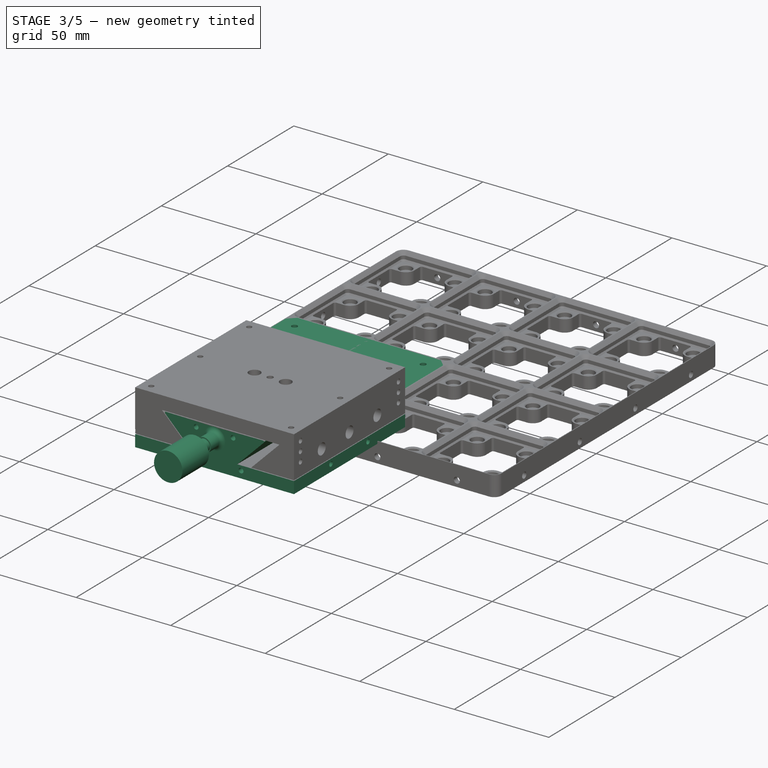
[diagram: stage 3 of 5 — iso view after this stage's code; geometry added in this stage tinted green]
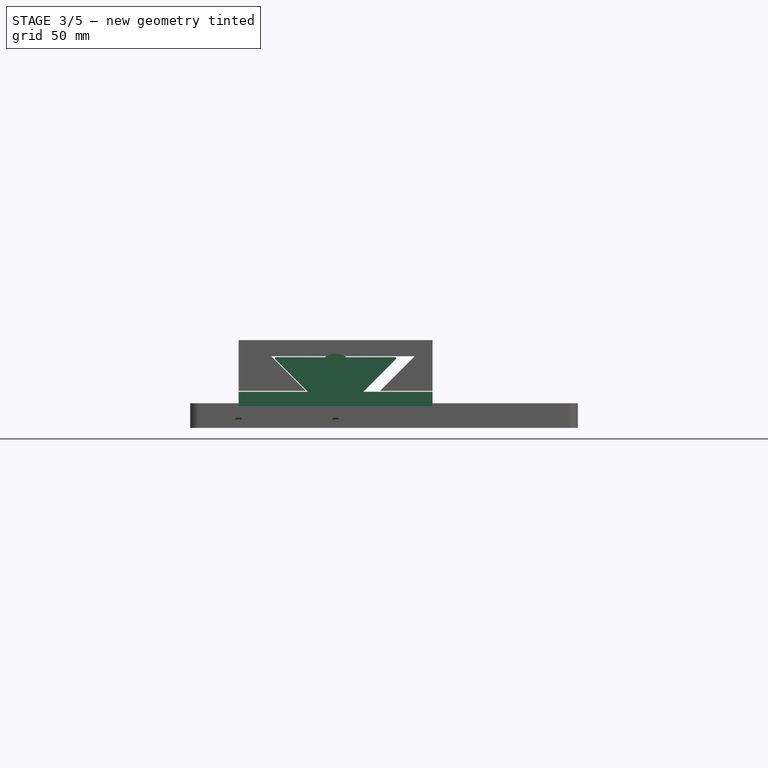
[diagram: stage 3 of 5 — front view after this stage's code; geometry added in this stage tinted green]
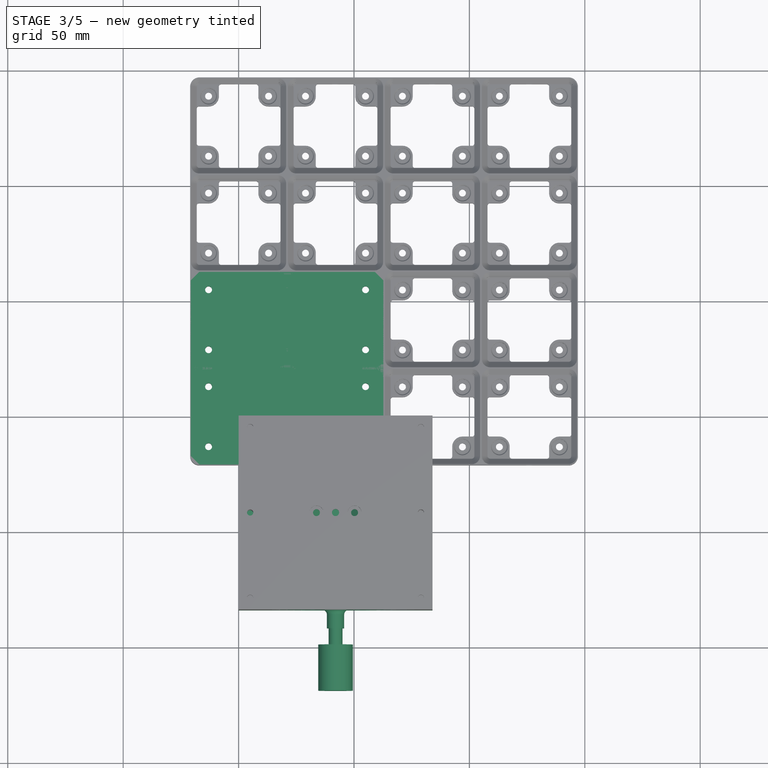
[diagram: stage 3 of 5 — top view after this stage's code; geometry added in this stage tinted green]
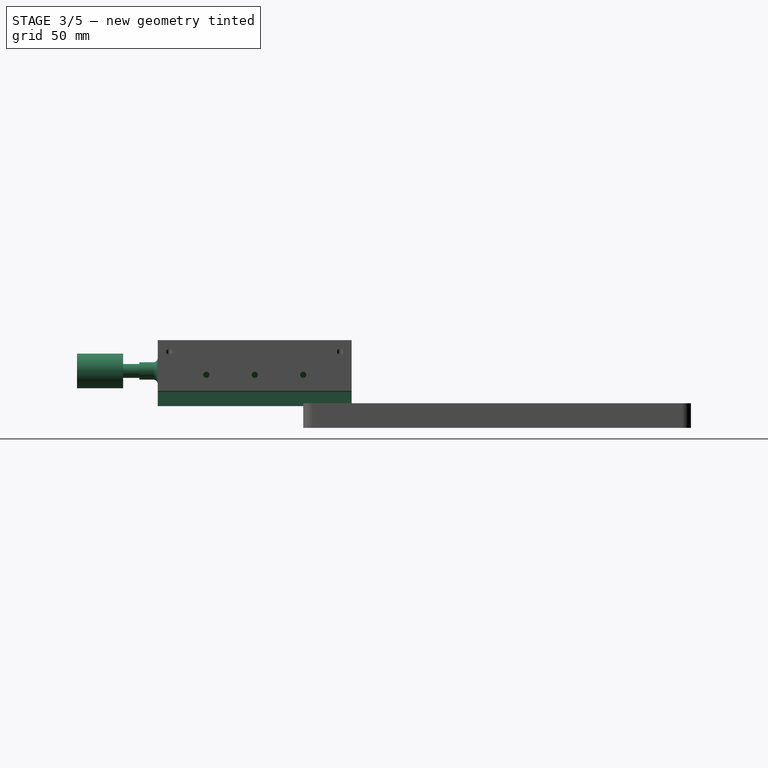
[diagram: stage 3 of 5 — right view after this stage's code; geometry added in this stage tinted green]
FEATURE [PartDesign::ShapeBinder] ShapeBinder003
  Placement = pos=(0,-84,2e-14) rot=(1,0,0;1.5708rad)
  Support = -> [Fillet]
  TraceSupport = false
FEATURE [PartDesign::Plane] DatumPlane006
  AttachmentSupport = -> [ShapeBinder003]
  Length = 62.1898
  MapMode = 11
  Placement = pos=(42,-84,14) rot=(0.57735,-0.57735,0.57735;2.0944rad)
  ResizeMode = 0
  Width = 86.4857
FEATURE [Sketcher::SketchObject] Sketch019
  ArcFitTolerance = 1e-06
  AttachmentSupport = -> [DatumPlane006]
  ExternalGeometry = -> [ShapeBinder003]
  FullyConstrained = true
  MakeInternals = false
  MapMode = 5
  Placement = pos=(42,-84,14) rot=(0.57735,-0.57735,0.57735;2.0944rad)
  sketch-geometry (1):
    g0: Circle CenterX=0 CenterY=0 CenterZ=0 NormalX=0 NormalY=0 NormalZ=1 AngleXU=0 Radius=2.9
  constraints (2):
    c: Diameter(g0) = 5.8
    c: Coincident(g0,g-1)
FEATURE [PartDesign::Pad] Pad009
  Direction = (0,-1,0)
  Length = 5
  Length2 = 10
  Placement = pos=(42,-84,14) rot=(0.57735,-0.57735,0.57735;2.0944rad)
  Profile = -> Sketch019
  ReferenceAxis = -> Sketch019 [N_Axis]
  Refine = true
  Reversed = true
  Suppressed = false
  Type = 0
FEATURE [Sketcher::SketchObject] Sketch020
  ArcFitTolerance = 1e-06
  AttachmentSupport = -> [Pad009]
  ExternalGeometry = -> [Pad009]
  FullyConstrained = true
  MakeInternals = false
  MapMode = 5
  Placement = pos=(42,-84,14) rot=(0.57735,-0.57735,0.57735;2.0944rad)
  sketch-geometry (1):
    g0: Circle CenterX=0 CenterY=0 CenterZ=0 NormalX=0 NormalY=0 NormalZ=1 AngleXU=0 Radius=3
  constraints (2):
    c: Diameter(g0) = 6
    c: Coincident(g0,g-1)
FEATURE [PartDesign::Pad] Pad010
  BaseFeature = -> Pad009
  Direction = (0,-1,0)
  Length = 15
  Length2 = 10
  Placement = pos=(42,-84,14) rot=(0.57735,-0.57735,0.57735;2.0944rad)
  Profile = -> Sketch020
  ReferenceAxis = -> Sketch020 [N_Axis]
  Refine = true
  Suppressed = false
  Type = 0
FEATURE [Sketcher::SketchObject] Sketch021
  ArcFitTolerance = 1e-06
  AttachmentSupport = -> [Pad010]
  ExternalGeometry = -> [Pad010]
  FullyConstrained = true
  MakeInternals = false
  MapMode = 5
  Placement = pos=(42,-99,14) rot=(0.57735,-0.57735,0.57735;2.0944rad)
  sketch-geometry (1):
    g0: Circle CenterX=0 CenterY=0 CenterZ=0 NormalX=0 NormalY=0 NormalZ=1 AngleXU=0 Radius=7.5
  constraints (2):
    c: Diameter(g0) = 15
    c: Coincident(g0,g-1)
FEATURE [PartDesign::Pad] Pad011
  BaseFeature = -> Pad010
  Direction = (0,-1,0)
  Length = 20
  Length2 = 10
  Placement = pos=(42,-84,14) rot=(0.57735,-0.57735,0.57735;2.0944rad)
  Profile = -> Sketch021
  ReferenceAxis = -> Sketch021 [N_Axis]
  Refine = true
  Suppressed = false
  Type = 0
FEATURE [PartDesign::Body] Body006  label="Adjuster Cap"
  AllowCompound = false
  Group = -> [DatumPlane008,CopyPocket008,Sketch025,Pad013,DatumPlane009,Sketch026,Pad014,Chamfer014]
  Origin = -> Origin006
  Tip = -> Chamfer014
FEATURE [Sketcher::SketchObject] Sketch027
  ArcFitTolerance = 1e-06
  AttachmentSupport = -> [Fillet]
  ExternalGeometry = -> [Fillet]
  FullyConstrained = true
  MakeInternals = false
  MapMode = 5
  Placement = pos=(0,-84,0) rot=(1,0,0;1.5708rad)
  sketch-geometry (2):
    g0: Circle CenterX=42 CenterY=14 CenterZ=0 NormalX=0 NormalY=0 NormalZ=1 AngleXU=0 Radius=3.125
    g1: Circle CenterX=42 CenterY=14 CenterZ=0 NormalX=0 NormalY=0 NormalZ=1 AngleXU=0 Radius=3.75
  constraints (4):
    c: Coincident(g0,g-3)
    c: Diameter(g1) = 7.5
    c: Coincident(g1,g0)
    c: Diameter(g0) = 6.25
FEATURE [PartDesign::Pad] Pad015
  BaseFeature = -> Fillet
  Direction = (0,-1,2e-16)
  Length = 8
  Length2 = 10
  Placement = pos=(0,0,0) rot=(1,0,0;1.5708rad)
  Profile = -> Sketch027
  ReferenceAxis = -> Sketch027 [N_Axis]
  Refine = true
  Suppressed = false
  Type = 0
FEATURE [PartDesign::Fillet] Fillet005
  Base = -> Pad015 [Edge70]
  BaseFeature = -> Pad015
  Placement = pos=(0,0,0) rot=(1,0,0;1.5708rad)
  Radius = 2
  Refine = true
  SupportTransform = false
  Suppressed = false
  UseAllEdges = false
FEATURE [Sketcher::SketchObject] Sketch038
  ArcFitTolerance = 1e-06
  AttachmentSupport = -> [Fillet005]
  ExternalGeometry = -> [Fillet005]
  FullyConstrained = false
  MakeInternals = false
  MapMode = 5
  Placement = pos=(0,0,0) rot=(0.707107,0,-0.707107;3.14159rad)
  sketch-geometry (332):
    g0: LineSegment [constr] StartX=-5 StartY=0 StartZ=0 EndX=-5 EndY=1 EndZ=0
    g1: LineSegment StartX=-5 StartY=1 StartZ=0 EndX=-3.00761 EndY=1.17431 EndZ=0
    g2: LineSegment StartX=-5 StartY=1 StartZ=0 EndX=-3.00761 EndY=0.825689 EndZ=0
    g3: LineSegment StartX=-3.00761 StartY=0.825689 StartZ=0 EndX=-3.00761 EndY=1.17431 EndZ=0
    g4: LineSegment [constr] StartX=-5 StartY=1 StartZ=0 EndX=-5 EndY=2 EndZ=0
    g5: LineSegment StartX=-5 StartY=2 StartZ=0 EndX=-3.00761 EndY=2.17431 EndZ=0
    g6: LineSegment StartX=-5 StartY=2 StartZ=0 EndX=-3.00761 EndY=1.82569 EndZ=0
    g7: LineSegment StartX=-3.00761 StartY=1.82569 StartZ=0 EndX=-3.00761 EndY=2.17431 EndZ=0
    g8: LineSegment [constr] StartX=-5 StartY=2 StartZ=0 EndX=-5 EndY=3 EndZ=0
    g9: LineSegment StartX=-5 StartY=3 StartZ=0 EndX=-3.00761 EndY=3.17431 EndZ=0
    g10: LineSegment StartX=-5 StartY=3 StartZ=0 EndX=-3.00761 EndY=2.82569 EndZ=0
    g11: LineSegment StartX=-3.00761 StartY=2.82569 StartZ=0 EndX=-3.00761 EndY=3.17431 EndZ=0
    g12: LineSegment [constr] StartX=-5 StartY=3 StartZ=0 EndX=-5 EndY=4 EndZ=0
    g13: LineSegment StartX=-5 StartY=4 StartZ=0 EndX=-3.00761 EndY=4.17431 EndZ=0
    g14: LineSegment StartX=-5 StartY=4 StartZ=0 EndX=-3.00761 EndY=3.82569 EndZ=0
    g15: LineSegment StartX=-3.00761 StartY=3.82569 StartZ=0 EndX=-3.00761 EndY=4.17431 EndZ=0
    g16: LineSegment [constr] StartX=-5 StartY=4 StartZ=0 EndX=-5 EndY=5 EndZ=0
    g17: LineSegment StartX=-5 StartY=5 StartZ=0 EndX=-3.00761 EndY=5.17431 EndZ=0
    g18: LineSegment StartX=-5 StartY=5 StartZ=0 EndX=-3.00761 EndY=4.82569 EndZ=0
    g19: LineSegment StartX=-3.00761 StartY=4.82569 StartZ=0 EndX=-3.00761 EndY=5.17431 EndZ=0
    g20: LineSegment [constr] StartX=-5 StartY=5 StartZ=0 EndX=-5 EndY=6 EndZ=0
    g21: LineSegment StartX=-5 StartY=6 StartZ=0 EndX=-3.00761 EndY=6.17431 EndZ=0
    g22: LineSegment StartX=-5 StartY=6 StartZ=0 EndX=-3.00761 EndY=5.82569 EndZ=0
    g23: LineSegment StartX=-3.00761 StartY=5.82569 StartZ=0 EndX=-3.00761 EndY=6.17431 EndZ=0
    g24: LineSegment [constr] StartX=-5 StartY=6 StartZ=0 EndX=-5 EndY=7 EndZ=0
    g25: LineSegment StartX=-5 StartY=7 StartZ=0 EndX=-3.00761 EndY=7.17431 EndZ=0
    g26: LineSegment StartX=-5 StartY=7 StartZ=0 EndX=-3.00761 EndY=6.82569 EndZ=0
    g27: LineSegment StartX=-3.00761 StartY=6.82569 StartZ=0 EndX=-3.00761 EndY=7.17431 EndZ=0
    g28: LineSegment [constr] StartX=-5 StartY=7 StartZ=0 EndX=-5 EndY=8 EndZ=0
    g29: LineSegment StartX=-5 StartY=8 StartZ=0 EndX=-3.00761 EndY=8.17431 EndZ=0
    g30: LineSegment StartX=-5 StartY=8 StartZ=0 EndX=-3.00761 EndY=7.82569 EndZ=0
    g31: LineSegment StartX=-3.00761 StartY=7.82569 StartZ=0 EndX=-3.00761 EndY=8.17431 EndZ=0
    g32: LineSegment [constr] StartX=-5 StartY=8 StartZ=0 EndX=-5 EndY=9 EndZ=0
    g33: LineSegment StartX=-5 StartY=9 StartZ=0 EndX=-3.00761 EndY=9.17431 EndZ=0
    g34: LineSegment StartX=-5 StartY=9 StartZ=0 EndX=-3.00761 EndY=8.82569 EndZ=0
    g35: LineSegment StartX=-3.00761 StartY=8.82569 StartZ=0 EndX=-3.00761 EndY=9.17431 EndZ=0
    g36: LineSegment [constr] StartX=-5 StartY=9 StartZ=0 EndX=-5 EndY=10 EndZ=0
    g37: LineSegment StartX=-5 StartY=10 StartZ=0 EndX=-3.00761 EndY=10.1743 EndZ=0
    g38: LineSegment StartX=-5 StartY=10 StartZ=0 EndX=-3.00761 EndY=9.82569 EndZ=0
    g39: LineSegment StartX=-3.00761 StartY=9.82569 StartZ=0 EndX=-3.00761 EndY=10.1743 EndZ=0
    g40: LineSegment [constr] StartX=-5 StartY=10 StartZ=0 EndX=-5 EndY=11 EndZ=0
    g41: LineSegment StartX=-5 StartY=11 StartZ=0 EndX=-3.00761 EndY=11.1743 EndZ=0
    g42: LineSegment StartX=-5 StartY=11 StartZ=0 EndX=-3.00761 EndY=10.8257 EndZ=0
    g43: LineSegment StartX=-3.00761 StartY=10.8257 StartZ=0 EndX=-3.00761 EndY=11.1743 EndZ=0
    g44: LineSegment [constr] StartX=-5 StartY=11 StartZ=0 EndX=-5 EndY=12 EndZ=0
    g45: LineSegment StartX=-5 StartY=12 StartZ=0 EndX=-3.00761 EndY=12.1743 EndZ=0
    g46: LineSegment StartX=-5 StartY=12 StartZ=0 EndX=-3.00761 EndY=11.8257 EndZ=0
    g47: LineSegment StartX=-3.00761 StartY=11.8257 StartZ=0 EndX=-3.00761 EndY=12.1743 EndZ=0
    g48: LineSegment [constr] StartX=-5 StartY=12 StartZ=0 EndX=-5 EndY=13 EndZ=0
    g49: LineSegment StartX=-5 StartY=13 StartZ=0 EndX=-3.00761 EndY=13.1743 EndZ=0
    g50: LineSegment StartX=-5 StartY=13 StartZ=0 EndX=-3.00761 EndY=12.8257 EndZ=0
    g51: LineSegment StartX=-3.00761 StartY=12.8257 StartZ=0 EndX=-3.00761 EndY=13.1743 EndZ=0
    g52: LineSegment [constr] StartX=-5 StartY=13 StartZ=0 EndX=-5 EndY=14 EndZ=0
    g53: LineSegment StartX=-5 StartY=14 StartZ=0 EndX=-3.00761 EndY=14.1743 EndZ=0
    g54: LineSegment StartX=-5 StartY=14 StartZ=0 EndX=-3.00761 EndY=13.8257 EndZ=0
    g55: LineSegment StartX=-3.00761 StartY=13.8257 StartZ=0 EndX=-3.00761 EndY=14.1743 EndZ=0
    g56: LineSegment [constr] StartX=-5 StartY=14 StartZ=0 EndX=-5 EndY=15 EndZ=0
    g57: LineSegment StartX=-5 StartY=15 StartZ=0 EndX=-3.00761 EndY=15.1743 EndZ=0
    g58: LineSegment StartX=-5 StartY=15 StartZ=0 EndX=-3.00761 EndY=14.8257 EndZ=0
    g59: LineSegment StartX=-3.00761 StartY=14.8257 StartZ=0 EndX=-3.00761 EndY=15.1743 EndZ=0
    g60: LineSegment [constr] StartX=-5 StartY=15 StartZ=0 EndX=-5 EndY=16 EndZ=0
    g61: LineSegment StartX=-5 StartY=16 StartZ=0 EndX=-3.00761 EndY=16.1743 EndZ=0
    g62: LineSegment StartX=-5 StartY=16 StartZ=0 EndX=-3.00761 EndY=15.8257 EndZ=0
    g63: LineSegment StartX=-3.00761 StartY=15.8257 StartZ=0 EndX=-3.00761 EndY=16.1743 EndZ=0
    g64: LineSegment [constr] StartX=-5 StartY=16 StartZ=0 EndX=-5 EndY=17 EndZ=0
    g65: LineSegment StartX=-5 StartY=17 StartZ=0 EndX=-3.00761 EndY=17.1743 EndZ=0
    g66: LineSegment StartX=-5 StartY=17 StartZ=0 EndX=-3.00761 EndY=16.8257 EndZ=0
    g67: LineSegment StartX=-3.00761 StartY=16.8257 StartZ=0 EndX=-3.00761 EndY=17.1743 EndZ=0
    g68: LineSegment [constr] StartX=-5 StartY=17 StartZ=0 EndX=-5 EndY=18 EndZ=0
    g69: LineSegment StartX=-5 StartY=18 StartZ=0 EndX=-3.00761 EndY=18.1743 EndZ=0
    g70: LineSegment StartX=-5 StartY=18 StartZ=0 EndX=-3.00761 EndY=17.8257 EndZ=0
    g71: LineSegment StartX=-3.00761 StartY=17.8257 StartZ=0 EndX=-3.00761 EndY=18.1743 EndZ=0
    g72: LineSegment [constr] StartX=-5 StartY=18 StartZ=0 EndX=-5 EndY=19 EndZ=0
    g73: LineSegment StartX=-5 StartY=19 StartZ=0 EndX=-3.00761 EndY=19.1743 EndZ=0
    g74: LineSegment StartX=-5 StartY=19 StartZ=0 EndX=-3.00761 EndY=18.8257 EndZ=0
    g75: LineSegment StartX=-3.00761 StartY=18.8257 StartZ=0 EndX=-3.00761 EndY=19.1743 EndZ=0
    g76: LineSegment [constr] StartX=-5 StartY=19 StartZ=0 EndX=-5 EndY=20 EndZ=0
    g77: LineSegment StartX=-5 StartY=20 StartZ=0 EndX=-3.00761 EndY=20.1743 EndZ=0
    g78: LineSegment StartX=-5 StartY=20 StartZ=0 EndX=-3.00761 EndY=19.8257 EndZ=0
    g79: LineSegment StartX=-3.00761 StartY=19.8257 StartZ=0 EndX=-3.00761 EndY=20.1743 EndZ=0
    g80: LineSegment [constr] StartX=-5 StartY=20 StartZ=0 EndX=-5 EndY=21 EndZ=0
    g81: LineSegment StartX=-5 StartY=21 StartZ=0 EndX=-3.00761 EndY=21.1743 EndZ=0
    g82: LineSegment StartX=-5 StartY=21 StartZ=0 EndX=-3.00761 EndY=20.8257 EndZ=0
    g83: LineSegment StartX=-3.00761 StartY=20.8257 StartZ=0 EndX=-3.00761 EndY=21.1743 EndZ=0
    g84: LineSegment [constr] StartX=-5 StartY=21 StartZ=0 EndX=-5 EndY=22 EndZ=0
    g85: LineSegment StartX=-5 StartY=22 StartZ=0 EndX=-3.00761 EndY=22.1743 EndZ=0
    g86: LineSegment StartX=-5 StartY=22 StartZ=0 EndX=-3.00761 EndY=21.8257 EndZ=0
    g87: LineSegment StartX=-3.00761 StartY=21.8257 StartZ=0 EndX=-3.00761 EndY=22.1743 EndZ=0
    g88: LineSegment [constr] StartX=-5 StartY=22 StartZ=0 EndX=-5 EndY=23 EndZ=0
    g89: LineSegment StartX=-5 StartY=23 StartZ=0 EndX=-3.00761 EndY=23.1743 EndZ=0
    g90: LineSegment StartX=-5 StartY=23 StartZ=0 EndX=-3.00761 EndY=22.8257 EndZ=0
    g91: LineSegment StartX=-3.00761 StartY=22.8257 StartZ=0 EndX=-3.00761 EndY=23.1743 EndZ=0
    g92: LineSegment [constr] StartX=-5 StartY=23 StartZ=0 EndX=-5 EndY=24 EndZ=0
    g93: LineSegment StartX=-5 StartY=24 StartZ=0 EndX=-3.00761 EndY=24.1743 EndZ=0
    g94: LineSegment StartX=-5 StartY=24 StartZ=0 EndX=-3.00761 EndY=23.8257 EndZ=0
    g95: LineSegment StartX=-3.00761 StartY=23.8257 StartZ=0 EndX=-3.00761 EndY=24.1743 EndZ=0
    g96: LineSegment [constr] StartX=-5 StartY=24 StartZ=0 EndX=-5 EndY=25 EndZ=0
    g97: LineSegment StartX=-5 StartY=25 StartZ=0 EndX=-3.00761 EndY=25.1743 EndZ=0
    g98: LineSegment StartX=-5 StartY=25 StartZ=0 EndX=-3.00761 EndY=24.8257 EndZ=0
    g99: LineSegment StartX=-3.00761 StartY=24.8257 StartZ=0 EndX=-3.00761 EndY=25.1743 EndZ=0
    g100: LineSegment [constr] StartX=-5 StartY=25 StartZ=0 EndX=-5 EndY=26 EndZ=0
    g101: LineSegment StartX=-5 StartY=26 StartZ=0 EndX=-3.00761 EndY=26.1743 EndZ=0
    g102: LineSegment StartX=-5 StartY=26 StartZ=0 EndX=-3.00761 EndY=25.8257 EndZ=0
    g103: LineSegment StartX=-3.00761 StartY=25.8257 StartZ=0 EndX=-3.00761 EndY=26.1743 EndZ=0
    g104: LineSegment [constr] StartX=-5 StartY=26 StartZ=0 EndX=-5 EndY=27 EndZ=0
    g105: LineSegment StartX=-5 StartY=27 StartZ=0 EndX=-3.00761 EndY=27.1743 EndZ=0
    g106: LineSegment StartX=-5 StartY=27 StartZ=0 EndX=-3.00761 EndY=26.8257 EndZ=0
    g107: LineSegment StartX=-3.00761 StartY=26.8257 StartZ=0 EndX=-3.00761 EndY=27.1743 EndZ=0
    g108: LineSegment [constr] StartX=-5 StartY=27 StartZ=0 EndX=-5 EndY=28 EndZ=0
    g109: LineSegment StartX=-5 StartY=28 StartZ=0 EndX=-3.00761 EndY=28.1743 EndZ=0
    g110: LineSegment StartX=-5 StartY=28 StartZ=0 EndX=-3.00761 EndY=27.8257 EndZ=0
    g111: LineSegment StartX=-3.00761 StartY=27.8257 StartZ=0 EndX=-3.00761 EndY=28.1743 EndZ=0
    g112: LineSegment [constr] StartX=-5 StartY=28 StartZ=0 EndX=-5 EndY=29 EndZ=0
    g113: LineSegment StartX=-5 StartY=29 StartZ=0 EndX=-3.00761 EndY=29.1743 EndZ=0
    g114: LineSegment StartX=-5 StartY=29 StartZ=0 EndX=-3.00761 EndY=28.8257 EndZ=0
    g115: LineSegment StartX=-3.00761 StartY=28.8257 StartZ=0 EndX=-3.00761 EndY=29.1743 EndZ=0
    g116: LineSegment [constr] StartX=-5 StartY=29 StartZ=0 EndX=-5 EndY=30 EndZ=0
    g117: LineSegment StartX=-5 StartY=30 StartZ=0 EndX=-3.00761 EndY=30.1743 EndZ=0
    g118: LineSegment StartX=-5 StartY=30 StartZ=0 EndX=-3.00761 EndY=29.8257 EndZ=0
    g119: LineSegment StartX=-3.00761 StartY=29.8257 StartZ=0 EndX=-3.00761 EndY=30.1743 EndZ=0
    g120: LineSegment [constr] StartX=-5 StartY=30 StartZ=0 EndX=-5 EndY=31 EndZ=0
    g121: LineSegment StartX=-5 StartY=31 StartZ=0 EndX=-3.00761 EndY=31.1743 EndZ=0
    g122: LineSegment StartX=-5 StartY=31 StartZ=0 EndX=-3.00761 EndY=30.8257 EndZ=0
    g123: LineSegment StartX=-3.00761 StartY=30.8257 StartZ=0 EndX=-3.00761 EndY=31.1743 EndZ=0
    g124: LineSegment [constr] StartX=-5 StartY=31 StartZ=0 EndX=-5 EndY=32 EndZ=0
    g125: LineSegment StartX=-5 StartY=32 StartZ=0 EndX=-3.00761 EndY=32.1743 EndZ=0
    g126: LineSegment StartX=-5 StartY=32 StartZ=0 EndX=-3.00761 EndY=31.8257 EndZ=0
    g127: LineSegment StartX=-3.00761 StartY=31.8257 StartZ=0 EndX=-3.00761 EndY=32.1743 EndZ=0
    g128: LineSegment [constr] StartX=-5 StartY=32 StartZ=0 EndX=-5 EndY=33 EndZ=0
    g129: LineSegment StartX=-5 StartY=33 StartZ=0 EndX=-3.00761 EndY=33.1743 EndZ=0
    g130: LineSegment StartX=-5 StartY=33 StartZ=0 EndX=-3.00761 EndY=32.8257 EndZ=0
    g131: LineSegment StartX=-3.00761 StartY=32.8257 StartZ=0 EndX=-3.00761 EndY=33.1743 EndZ=0
    g132: LineSegment [constr] StartX=-5 StartY=33 StartZ=0 EndX=-5 EndY=34 EndZ=0
    g133: LineSegment StartX=-5 StartY=34 StartZ=0 EndX=-3.00761 EndY=34.1743 EndZ=0
    g134: LineSegment StartX=-5 StartY=34 StartZ=0 EndX=-3.00761 EndY=33.8257 EndZ=0
    g135: LineSegment StartX=-3.00761 StartY=33.8257 StartZ=0 EndX=-3.00761 EndY=34.1743 EndZ=0
    g136: LineSegment [constr] StartX=-5 StartY=34 StartZ=0 EndX=-5 EndY=35 EndZ=0
    g137: LineSegment StartX=-5 StartY=35 StartZ=0 EndX=-3.00761 EndY=35.1743 EndZ=0
    g138: LineSegment StartX=-5 StartY=35 StartZ=0 EndX=-3.00761 EndY=34.8257 EndZ=0
    g139: LineSegment StartX=-3.00761 StartY=34.8257 StartZ=0 EndX=-3.00761 EndY=35.1743 EndZ=0
    g140: LineSegment [constr] StartX=-5 StartY=35 StartZ=0 EndX=-5 EndY=36 EndZ=0
    g141: LineSegment StartX=-5 StartY=36 StartZ=0 EndX=-3.00761 EndY=36.1743 EndZ=0
    g142: LineSegment StartX=-5 StartY=36 StartZ=0 EndX=-3.00761 EndY=35.8257 EndZ=0
    g143: LineSegment StartX=-3.00761 StartY=35.8257 StartZ=0 EndX=-3.00761 EndY=36.1743 EndZ=0
    g144: LineSegment [constr] StartX=-5 StartY=36 StartZ=0 EndX=-5 EndY=37 EndZ=0
    g145: LineSegment StartX=-5 StartY=37 StartZ=0 EndX=-3.00761 EndY=37.1743 EndZ=0
    g146: LineSegment StartX=-5 StartY=37 StartZ=0 EndX=-3.00761 EndY=36.8257 EndZ=0
    g147: LineSegment StartX=-3.00761 StartY=36.8257 StartZ=0 EndX=-3.00761 EndY=37.1743 EndZ=0
    g148: LineSegment [constr] StartX=-5 StartY=37 StartZ=0 EndX=-5 EndY=38 EndZ=0
    g149: LineSegment StartX=-5 StartY=38 StartZ=0 EndX=-3.00761 EndY=38.1743 EndZ=0
    g150: LineSegment StartX=-5 StartY=38 StartZ=0 EndX=-3.00761 EndY=37.8257 EndZ=0
    g151: LineSegment StartX=-3.00761 StartY=37.8257 StartZ=0 EndX=-3.00761 EndY=38.1743 EndZ=0
    g152: LineSegment [constr] StartX=-5 StartY=38 StartZ=0 EndX=-5 EndY=39 EndZ=0
    g153: LineSegment StartX=-5 StartY=39 StartZ=0 EndX=-3.00761 EndY=39.1743 EndZ=0
    g154: LineSegment StartX=-5 StartY=39 StartZ=0 EndX=-3.00761 EndY=38.8257 EndZ=0
    g155: LineSegment StartX=-3.00761 StartY=38.8257 StartZ=0 EndX=-3.00761 EndY=39.1743 EndZ=0
    g156: LineSegment [constr] StartX=-5 StartY=39 StartZ=0 EndX=-5 EndY=40 EndZ=0
    g157: LineSegment StartX=-5 StartY=40 StartZ=0 EndX=-3.00761 EndY=40.1743 EndZ=0
    g158: LineSegment StartX=-5 StartY=40 StartZ=0 EndX=-3.00761 EndY=39.8257 EndZ=0
    g159: LineSegment StartX=-3.00761 StartY=39.8257 StartZ=0 EndX=-3.00761 EndY=40.1743 EndZ=0
    g160: LineSegment [constr] StartX=-5 StartY=40 StartZ=0 EndX=-5 EndY=41 EndZ=0
    g161: LineSegment StartX=-5 StartY=41 StartZ=0 EndX=-3.00761 EndY=41.1743 EndZ=0
    g162: LineSegment StartX=-5 StartY=41 StartZ=0 EndX=-3.00761 EndY=40.8257 EndZ=0
    g163: LineSegment StartX=-3.00761 StartY=40.8257 StartZ=0 EndX=-3.00761 EndY=41.1743 EndZ=0
    g164: LineSegment [constr] StartX=-5 StartY=41 StartZ=0 EndX=-5 EndY=42 EndZ=0
    g165: LineSegment StartX=-5 StartY=42 StartZ=0 EndX=-3.00761 EndY=42.1743 EndZ=0
    g166: LineSegment StartX=-5 StartY=42 StartZ=0 EndX=-3.00761 EndY=41.8257 EndZ=0
    g167: LineSegment StartX=-3.00761 StartY=41.8257 StartZ=0 EndX=-3.00761 EndY=42.1743 EndZ=0
    g168: LineSegment [constr] StartX=-5 StartY=42 StartZ=0 EndX=-5 EndY=43 EndZ=0
    g169: LineSegment StartX=-5 StartY=43 StartZ=0 EndX=-3.00761 EndY=43.1743 EndZ=0
    g170: LineSegment StartX=-5 StartY=43 StartZ=0 EndX=-3.00761 EndY=42.8257 EndZ=0
    g171: LineSegment StartX=-3.00761 StartY=42.8257 StartZ=0 EndX=-3.00761 EndY=43.1743 EndZ=0
    g172: LineSegment [constr] StartX=-5 StartY=43 StartZ=0 EndX=-5 EndY=44 EndZ=0
    g173: LineSegment StartX=-5 StartY=44 StartZ=0 EndX=-3.00761 EndY=44.1743 EndZ=0
    g174: LineSegment StartX=-5 StartY=44 StartZ=0 EndX=-3.00761 EndY=43.8257 EndZ=0
    g175: LineSegment StartX=-3.00761 StartY=43.8257 StartZ=0 EndX=-3.00761 EndY=44.1743 EndZ=0
    g176: LineSegment [constr] StartX=-5 StartY=44 StartZ=0 EndX=-5 EndY=45 EndZ=0
    g177: LineSegment StartX=-5 StartY=45 StartZ=0 EndX=-3.00761 EndY=45.1743 EndZ=0
    g178: LineSegment StartX=-5 StartY=45 StartZ=0 EndX=-3.00761 EndY=44.8257 EndZ=0
    g179: LineSegment StartX=-3.00761 StartY=44.8257 StartZ=0 EndX=-3.00761 EndY=45.1743 EndZ=0
    g180: LineSegment [constr] StartX=-5 StartY=45 StartZ=0 EndX=-5 EndY=46 EndZ=0
    g181: LineSegment StartX=-5 StartY=46 StartZ=0 EndX=-3.00761 EndY=46.1743 EndZ=0
    g182: LineSegment StartX=-5 StartY=46 StartZ=0 EndX=-3.00761 EndY=45.8257 EndZ=0
    g183: LineSegment StartX=-3.00761 StartY=45.8257 StartZ=0 EndX=-3.00761 EndY=46.1743 EndZ=0
    g184: LineSegment [constr] StartX=-5 StartY=46 StartZ=0 EndX=-5 EndY=47 EndZ=0
    g185: LineSegment StartX=-5 StartY=47 StartZ=0 EndX=-3.00761 EndY=47.1743 EndZ=0
    g186: LineSegment StartX=-5 StartY=47 StartZ=0 EndX=-3.00761 EndY=46.8257 EndZ=0
    g187: LineSegment StartX=-3.00761 StartY=46.8257 StartZ=0 EndX=-3.00761 EndY=47.1743 EndZ=0
    g188: LineSegment [constr] StartX=-5 StartY=47 StartZ=0 EndX=-5 EndY=48 EndZ=0
    g189: LineSegment StartX=-5 StartY=48 StartZ=0 EndX=-3.00761 EndY=48.1743 EndZ=0
    g190: LineSegment StartX=-5 StartY=48 StartZ=0 EndX=-3.00761 EndY=47.8257 EndZ=0
    g191: LineSegment StartX=-3.00761 StartY=47.8257 StartZ=0 EndX=-3.00761 EndY=48.1743 EndZ=0
    g192: LineSegment [constr] StartX=-5 StartY=48 StartZ=0 EndX=-5 EndY=49 EndZ=0
    g193: LineSegment StartX=-5 StartY=49 StartZ=0 EndX=-3.00761 EndY=49.1743 EndZ=0
    g194: LineSegment StartX=-5 StartY=49 StartZ=0 EndX=-3.00761 EndY=48.8257 EndZ=0
    g195: LineSegment StartX=-3.00761 StartY=48.8257 StartZ=0 EndX=-3.00761 EndY=49.1743 EndZ=0
    g196: LineSegment [constr] StartX=-5 StartY=49 StartZ=0 EndX=-5 EndY=50 EndZ=0
    g197: LineSegment StartX=-5 StartY=50 StartZ=0 EndX=-3.00761 EndY=50.1743 EndZ=0
    g198: LineSegment StartX=-5 StartY=50 StartZ=0 EndX=-3.00761 EndY=49.8257 EndZ=0
    g199: LineSegment StartX=-3.00761 StartY=49.8257 StartZ=0 EndX=-3.00761 EndY=50.1743 EndZ=0
    g200: LineSegment [constr] StartX=-5 StartY=50 StartZ=0 EndX=-5 EndY=51 EndZ=0
    g201: LineSegment StartX=-5 StartY=51 StartZ=0 EndX=-3.00761 EndY=51.1743 EndZ=0
    g202: LineSegment StartX=-5 StartY=51 StartZ=0 EndX=-3.00761 EndY=50.8257 EndZ=0
    g203: LineSegment StartX=-3.00761 StartY=50.8257 StartZ=0 EndX=-3.00761 EndY=51.1743 EndZ=0
    g204: LineSegment [constr] StartX=-5 StartY=51 StartZ=0 EndX=-5 EndY=52 EndZ=0
    g205: LineSegment StartX=-5 StartY=52 StartZ=0 EndX=-3.00761 EndY=52.1743 EndZ=0
    g206: LineSegment StartX=-5 StartY=52 StartZ=0 EndX=-3.00761 EndY=51.8257 EndZ=0
    g207: LineSegment StartX=-3.00761 StartY=51.8257 StartZ=0 EndX=-3.00761 EndY=52.1743 EndZ=0
    g208: LineSegment [constr] StartX=-5 StartY=52 StartZ=0 EndX=-5 EndY=53 EndZ=0
    g209: LineSegment StartX=-5 StartY=53 StartZ=0 EndX=-3.00761 EndY=53.1743 EndZ=0
    g210: LineSegment StartX=-5 StartY=53 StartZ=0 EndX=-3.00761 EndY=52.8257 EndZ=0
    g211: LineSegment StartX=-3.00761 StartY=52.8257 StartZ=0 EndX=-3.00761 EndY=53.1743 EndZ=0
    g212: LineSegment [constr] StartX=-5 StartY=53 StartZ=0 EndX=-5 EndY=54 EndZ=0
    g213: LineSegment StartX=-5 StartY=54 StartZ=0 EndX=-3.00761 EndY=54.1743 EndZ=0
    g214: LineSegment StartX=-5 StartY=54 StartZ=0 EndX=-3.00761 EndY=53.8257 EndZ=0
    g215: LineSegment StartX=-3.00761 StartY=53.8257 StartZ=0 EndX=-3.00761 EndY=54.1743 EndZ=0
    g216: LineSegment [constr] StartX=-5 StartY=54 StartZ=0 EndX=-5 EndY=55 EndZ=0
    g217: LineSegment StartX=-5 StartY=55 StartZ=0 EndX=-3.00761 EndY=55.1743 EndZ=0
    g218: LineSegment StartX=-5 StartY=55 StartZ=0 EndX=-3.00761 EndY=54.8257 EndZ=0
    g219: LineSegment StartX=-3.00761 StartY=54.8257 StartZ=0 EndX=-3.00761 EndY=55.1743 EndZ=0
    g220: LineSegment [constr] StartX=-5 StartY=55 StartZ=0 EndX=-5 EndY=56 EndZ=0
    g221: LineSegment StartX=-5 StartY=56 StartZ=0 EndX=-3.00761 EndY=56.1743 EndZ=0
    g222: LineSegment StartX=-5 StartY=56 StartZ=0 EndX=-3.00761 EndY=55.8257 EndZ=0
    g223: LineSegment StartX=-3.00761 StartY=55.8257 StartZ=0 EndX=-3.00761 EndY=56.1743 EndZ=0
    g224: LineSegment [constr] StartX=-5 StartY=56 StartZ=0 EndX=-5 EndY=57 EndZ=0
    g225: LineSegment StartX=-5 StartY=57 StartZ=0 EndX=-3.00761 EndY=57.1743 EndZ=0
    g226: LineSegment StartX=-5 StartY=57 StartZ=0 EndX=-3.00761 EndY=56.8257 EndZ=0
    g227: LineSegment StartX=-3.00761 StartY=56.8257 StartZ=0 EndX=-3.00761 EndY=57.1743 EndZ=0
    g228: LineSegment [constr] StartX=-5 StartY=57 StartZ=0 EndX=-5 EndY=58 EndZ=0
    g229: LineSegment StartX=-5 StartY=58 StartZ=0 EndX=-3.00761 EndY=58.1743 EndZ=0
    g230: LineSegment StartX=-5 StartY=58 StartZ=0 EndX=-3.00761 EndY=57.8257 EndZ=0
    g231: LineSegment StartX=-3.00761 StartY=57.8257 StartZ=0 EndX=-3.00761 EndY=58.1743 EndZ=0
    g232: LineSegment [constr] StartX=-5 StartY=58 StartZ=0 EndX=-5 EndY=59 EndZ=0
    g233: LineSegment StartX=-5 StartY=59 StartZ=0 EndX=-3.00761 EndY=59.1743 EndZ=0
    g234: LineSegment StartX=-5 StartY=59 StartZ=0 EndX=-3.00761 EndY=58.8257 EndZ=0
    g235: LineSegment StartX=-3.00761 StartY=58.8257 StartZ=0 EndX=-3.00761 EndY=59.1743 EndZ=0
    g236: LineSegment [constr] StartX=-5 StartY=59 StartZ=0 EndX=-5 EndY=60 EndZ=0
    g237: LineSegment StartX=-5 StartY=60 StartZ=0 EndX=-3.00761 EndY=60.1743 EndZ=0
    g238: LineSegment StartX=-5 StartY=60 StartZ=0 EndX=-3.00761 EndY=59.8257 EndZ=0
    g239: LineSegment StartX=-3.00761 StartY=59.8257 StartZ=0 EndX=-3.00761 EndY=60.1743 EndZ=0
    g240: LineSegment [constr] StartX=-5 StartY=60 StartZ=0 EndX=-5 EndY=61 EndZ=0
    g241: LineSegment StartX=-5 StartY=61 StartZ=0 EndX=-3.00761 EndY=61.1743 EndZ=0
    g242: LineSegment StartX=-5 StartY=61 StartZ=0 EndX=-3.00761 EndY=60.8257 EndZ=0
    g243: LineSegment StartX=-3.00761 StartY=60.8257 StartZ=0 EndX=-3.00761 EndY=61.1743 EndZ=0
    g244: LineSegment [constr] StartX=-5 StartY=61 StartZ=0 EndX=-5 EndY=62 EndZ=0
    g245: LineSegment StartX=-5 StartY=62 StartZ=0 EndX=-3.00761 EndY=62.1743 EndZ=0
    g246: LineSegment StartX=-5 StartY=62 StartZ=0 EndX=-3.00761 EndY=61.8257 EndZ=0
    g247: LineSegment StartX=-3.00761 StartY=61.8257 StartZ=0 EndX=-3.00761 EndY=62.1743 EndZ=0
    g248: LineSegment [constr] StartX=-5 StartY=62 StartZ=0 EndX=-5 EndY=63 EndZ=0
    g249: LineSegment StartX=-5 StartY=63 StartZ=0 EndX=-3.00761 EndY=63.1743 EndZ=0
    g250: LineSegment StartX=-5 StartY=63 StartZ=0 EndX=-3.00761 EndY=62.8257 EndZ=0
    g251: LineSegment StartX=-3.00761 StartY=62.8257 StartZ=0 EndX=-3.00761 EndY=63.1743 EndZ=0
    g252: LineSegment [constr] StartX=-5 StartY=63 StartZ=0 EndX=-5 EndY=64 EndZ=0
    g253: LineSegment StartX=-5 StartY=64 StartZ=0 EndX=-3.00761 EndY=64.1743 EndZ=0
    g254: LineSegment StartX=-5 StartY=64 StartZ=0 EndX=-3.00761 EndY=63.8257 EndZ=0
    g255: LineSegment StartX=-3.00761 StartY=63.8257 StartZ=0 EndX=-3.00761 EndY=64.1743 EndZ=0
    g256: LineSegment [constr] StartX=-5 StartY=64 StartZ=0 EndX=-5 EndY=65 EndZ=0
    g257: LineSegment StartX=-5 StartY=65 StartZ=0 EndX=-3.00761 EndY=65.1743 EndZ=0
    g258: LineSegment StartX=-5 StartY=65 StartZ=0 EndX=-3.00761 EndY=64.8257 EndZ=0
    g259: LineSegment StartX=-3.00761 StartY=64.8257 StartZ=0 EndX=-3.00761 EndY=65.1743 EndZ=0
    g260: LineSegment [constr] StartX=-5 StartY=65 StartZ=0 EndX=-5 EndY=66 EndZ=0
    g261: LineSegment StartX=-5 StartY=66 StartZ=0 EndX=-3.00761 EndY=66.1743 EndZ=0
    g262: LineSegment StartX=-5 StartY=66 StartZ=0 EndX=-3.00761 EndY=65.8257 EndZ=0
    g263: LineSegment StartX=-3.00761 StartY=65.8257 StartZ=0 EndX=-3.00761 EndY=66.1743 EndZ=0
    g264: LineSegment [constr] StartX=-5 StartY=66 StartZ=0 EndX=-5 EndY=67 EndZ=0
    g265: LineSegment StartX=-5 StartY=67 StartZ=0 EndX=-3.00761 EndY=67.1743 EndZ=0
    g266: LineSegment StartX=-5 StartY=67 StartZ=0 EndX=-3.00761 EndY=66.8257 EndZ=0
    g267: LineSegment StartX=-3.00761 StartY=66.8257 StartZ=0 EndX=-3.00761 EndY=67.1743 EndZ=0
    g268: LineSegment [constr] StartX=-5 StartY=67 StartZ=0 EndX=-5 EndY=68 EndZ=0
    g269: LineSegment StartX=-5 StartY=68 StartZ=0 EndX=-3.00761 EndY=68.1743 EndZ=0
    g270: LineSegment StartX=-5 StartY=68 StartZ=0 EndX=-3.00761 EndY=67.8257 EndZ=0
    g271: LineSegment StartX=-3.00761 StartY=67.8257 StartZ=0 EndX=-3.00761 EndY=68.1743 EndZ=0
    g272: LineSegment [constr] StartX=-5 StartY=68 StartZ=0 EndX=-5 EndY=69 EndZ=0
    g273: LineSegment StartX=-5 StartY=69 StartZ=0 EndX=-3.00761 EndY=69.1743 EndZ=0
    g274: LineSegment StartX=-5 StartY=69 StartZ=0 EndX=-3.00761 EndY=68.8257 EndZ=0
    g275: LineSegment StartX=-3.00761 StartY=68.8257 StartZ=0 EndX=-3.00761 EndY=69.1743 EndZ=0
    g276: LineSegment [constr] StartX=-5 StartY=69 StartZ=0 EndX=-5 EndY=70 EndZ=0
    g277: LineSegment StartX=-5 StartY=70 StartZ=0 EndX=-3.00761 EndY=70.1743 EndZ=0
    g278: LineSegment StartX=-5 StartY=70 StartZ=0 EndX=-3.00761 EndY=69.8257 EndZ=0
    g279: LineSegment StartX=-3.00761 StartY=69.8257 StartZ=0 EndX=-3.00761 EndY=70.1743 EndZ=0
    g280: LineSegment [constr] StartX=-5 StartY=70 StartZ=0 EndX=-5 EndY=71 EndZ=0
    g281: LineSegment StartX=-5 StartY=71 StartZ=0 EndX=-3.00761 EndY=71.1743 EndZ=0
    g282: LineSegment StartX=-5 StartY=71 StartZ=0 EndX=-3.00761 EndY=70.8257 EndZ=0
    g283: LineSegment StartX=-3.00761 StartY=70.8257 StartZ=0 EndX=-3.00761 EndY=71.1743 EndZ=0
    g284: LineSegment [constr] StartX=-5 StartY=71 StartZ=0 EndX=-5 EndY=72 EndZ=0
    g285: LineSegment StartX=-5 StartY=72 StartZ=0 EndX=-3.00761 EndY=72.1743 EndZ=0
    g286: LineSegment StartX=-5 StartY=72 StartZ=0 EndX=-3.00761 EndY=71.8257 EndZ=0
    g287: LineSegment StartX=-3.00761 StartY=71.8257 StartZ=0 EndX=-3.00761 EndY=72.1743 EndZ=0
    g288: LineSegment [constr] StartX=-5 StartY=72 StartZ=0 EndX=-5 EndY=73 EndZ=0
    g289: LineSegment StartX=-5 StartY=73 StartZ=0 EndX=-3.00761 EndY=73.1743 EndZ=0
    g290: LineSegment StartX=-5 StartY=73 StartZ=0 EndX=-3.00761 EndY=72.8257 EndZ=0
    g291: LineSegment StartX=-3.00761 StartY=72.8257 StartZ=0 EndX=-3.00761 EndY=73.1743 EndZ=0
    g292: LineSegment [constr] StartX=-5 StartY=73 StartZ=0 EndX=-5 EndY=74 EndZ=0
    g293: LineSegment StartX=-5 StartY=74 StartZ=0 EndX=-3.00761 EndY=74.1743 EndZ=0
    g294: LineSegment StartX=-5 StartY=74 StartZ=0 EndX=-3.00761 EndY=73.8257 EndZ=0
    g295: LineSegment StartX=-3.00761 StartY=73.8257 StartZ=0 EndX=-3.00761 EndY=74.1743 EndZ=0
    g296: LineSegment [constr] StartX=-5 StartY=74 StartZ=0 EndX=-5 EndY=75 EndZ=0
    g297: LineSegment StartX=-5 StartY=75 StartZ=0 EndX=-3.00761 EndY=75.1743 EndZ=0
    g298: LineSegment StartX=-5 StartY=75 StartZ=0 EndX=-3.00761 EndY=74.8257 EndZ=0
    g299: LineSegment StartX=-3.00761 StartY=74.8257 StartZ=0 EndX=-3.00761 EndY=75.1743 EndZ=0
    g300: LineSegment [constr] StartX=-5 StartY=75 StartZ=0 EndX=-5 EndY=76 EndZ=0
    g301: LineSegment StartX=-5 StartY=76 StartZ=0 EndX=-3.00761 EndY=76.1743 EndZ=0
    g302: LineSegment StartX=-5 StartY=76 StartZ=0 EndX=-3.00761 EndY=75.8257 EndZ=0
    g303: LineSegment StartX=-3.00761 StartY=75.8257 StartZ=0 EndX=-3.00761 EndY=76.1743 EndZ=0
    g304: LineSegment [constr] StartX=-5 StartY=76 StartZ=0 EndX=-5 EndY=77 EndZ=0
    g305: LineSegment StartX=-5 StartY=77 StartZ=0 EndX=-3.00761 EndY=77.1743 EndZ=0
    g306: LineSegment StartX=-5 StartY=77 StartZ=0 EndX=-3.00761 EndY=76.8257 EndZ=0
    g307: LineSegment StartX=-3.00761 StartY=76.8257 StartZ=0 EndX=-3.00761 EndY=77.1743 EndZ=0
    g308: LineSegment [constr] StartX=-5 StartY=77 StartZ=0 EndX=-5 EndY=78 EndZ=0
    g309: LineSegment StartX=-5 StartY=78 StartZ=0 EndX=-3.00761 EndY=78.1743 EndZ=0
    g310: LineSegment StartX=-5 StartY=78 StartZ=0 EndX=-3.00761 EndY=77.8257 EndZ=0
    g311: LineSegment StartX=-3.00761 StartY=77.8257 StartZ=0 EndX=-3.00761 EndY=78.1743 EndZ=0
    g312: LineSegment [constr] StartX=-5 StartY=78 StartZ=0 EndX=-5 EndY=79 EndZ=0
    g313: LineSegment StartX=-5 StartY=79 StartZ=0 EndX=-3.00761 EndY=79.1743 EndZ=0
    g314: LineSegment StartX=-5 StartY=79 StartZ=0 EndX=-3.00761 EndY=78.8257 EndZ=0
    g315: LineSegment StartX=-3.00761 StartY=78.8257 StartZ=0 EndX=-3.00761 EndY=79.1743 EndZ=0
    g316: LineSegment [constr] StartX=-5 StartY=79 StartZ=0 EndX=-5 EndY=80 EndZ=0
    g317: LineSegment StartX=-5 StartY=80 StartZ=0 EndX=-3.00761 EndY=80.1743 EndZ=0
    g318: LineSegment StartX=-5 StartY=80 StartZ=0 EndX=-3.00761 EndY=79.8257 EndZ=0
    g319: LineSegment StartX=-3.00761 StartY=79.8257 StartZ=0 EndX=-3.00761 EndY=80.1743 EndZ=0
    g320: LineSegment [constr] StartX=-5 StartY=80 StartZ=0 EndX=-5 EndY=81 EndZ=0
    g321: LineSegment StartX=-5 StartY=81 StartZ=0 EndX=-3.00761 EndY=81.1743 EndZ=0
    g322: LineSegment StartX=-5 StartY=81 StartZ=0 EndX=-3.00761 EndY=80.8257 EndZ=0
    g323: LineSegment StartX=-3.00761 StartY=80.8257 StartZ=0 EndX=-3.00761 EndY=81.1743 EndZ=0
    g324: LineSegment [constr] StartX=-5 StartY=81 StartZ=0 EndX=-5 EndY=82 EndZ=0
    g325: LineSegment StartX=-5 StartY=82 StartZ=0 EndX=-3.00761 EndY=82.1743 EndZ=0
    g326: LineSegment StartX=-5 StartY=82 StartZ=0 EndX=-3.00761 EndY=81.8257 EndZ=0
    g327: LineSegment StartX=-3.00761 StartY=81.8257 StartZ=0 EndX=-3.00761 EndY=82.1743 EndZ=0
    g328: LineSegment [constr] StartX=-5 StartY=82 StartZ=0 EndX=-5 EndY=83 EndZ=0
    g329: LineSegment StartX=-5 StartY=83 StartZ=0 EndX=-3.00761 EndY=83.1743 EndZ=0
    g330: LineSegment StartX=-5 StartY=83 StartZ=0 EndX=-3.00761 EndY=82.8257 EndZ=0
    g331: LineSegment StartX=-3.00761 StartY=82.8257 StartZ=0 EndX=-3.00761 EndY=83.1743 EndZ=0
  constraints (339):
    c: Distance(g0) = 1
    c: Coincident(g0,g-4)
    c: PointOnObject(g0,g-3)
    c: Distance(g1) = 2
    c: Angle(g-1,g1) = 0.0872665
    c: Coincident(g1,g0)
    c: Distance(g2) = 2
    c: Angle(g-1,g2) = -0.0872665
    c: Coincident(g2,g0)
    c: Coincident(g3,g2)
    c: Coincident(g3,g1)
    c: Coincident(g5,g4)
    c: Coincident(g9,g8)
    c: Coincident(g13,g12)
    c: Coincident(g17,g16)
    c: Coincident(g21,g20)
    c: Coincident(g25,g24)
    c: Coincident(g29,g28)
    c: Coincident(g33,g32)
    c: Coincident(g37,g36)
    c: Coincident(g41,g40)
    c: Coincident(g45,g44)
    c: Coincident(g49,g48)
    c: Coincident(g53,g52)
    c: Coincident(g57,g56)
    c: Coincident(g61,g60)
    c: Coincident(g65,g64)
    c: Coincident(g69,g68)
    c: Coincident(g73,g72)
    c: Coincident(g77,g76)
    c: Coincident(g81,g80)
    c: Coincident(g85,g84)
    c: Coincident(g89,g88)
    c: Coincident(g93,g92)
    c: Coincident(g97,g96)
    c: Coincident(g101,g100)
    c: Coincident(g105,g104)
    c: Coincident(g109,g108)
    c: Coincident(g113,g112)
    c: Coincident(g117,g116)
    c: Coincident(g121,g120)
    c: Coincident(g125,g124)
    c: Coincident(g129,g128)
    c: Coincident(g133,g132)
    c: Coincident(g137,g136)
    c: Coincident(g141,g140)
    c: Coincident(g145,g144)
    c: Coincident(g149,g148)
    c: Coincident(g153,g152)
    c: Coincident(g157,g156)
    c: Coincident(g161,g160)
    c: Coincident(g165,g164)
    c: Coincident(g169,g168)
    c: Coincident(g173,g172)
    c: Coincident(g177,g176)
    c: Coincident(g181,g180)
    c: Coincident(g185,g184)
    c: Coincident(g189,g188)
    c: Coincident(g193,g192)
    c: Coincident(g197,g196)
    c: Coincident(g201,g200)
    c: Coincident(g205,g204)
    c: Coincident(g209,g208)
    c: Coincident(g213,g212)
    c: Coincident(g217,g216)
    c: Coincident(g221,g220)
    c: Coincident(g225,g224)
    c: Coincident(g229,g228)
    c: Coincident(g233,g232)
    c: Coincident(g237,g236)
    c: Coincident(g241,g240)
    c: Coincident(g245,g244)
    c: Coincident(g249,g248)
    c: Coincident(g253,g252)
    c: Coincident(g257,g256)
    c: Coincident(g261,g260)
    c: Coincident(g265,g264)
    c: Coincident(g269,g268)
    c: Coincident(g273,g272)
    c: Coincident(g277,g276)
    c: Coincident(g281,g280)
    c: Coincident(g285,g284)
    c: Coincident(g289,g288)
    c: Coincident(g293,g292)
    c: Coincident(g297,g296)
    c: Coincident(g301,g300)
    c: Coincident(g305,g304)
    c: Coincident(g309,g308)
    c: Coincident(g313,g312)
    c: Coincident(g317,g316)
    c: Coincident(g321,g320)
    c: Coincident(g325,g324)
    c: Coincident(g329,g328)
    c: Coincident(g6,g4)
    c: Coincident(g10,g8)
    c: Coincident(g14,g12)
    c: Coincident(g18,g16)
    c: Coincident(g22,g20)
    c: Coincident(g26,g24)
    c: Coincident(g30,g28)
    c: Coincident(g34,g32)
    c: Coincident(g38,g36)
    c: Coincident(g42,g40)
    c: Coincident(g46,g44)
    c: Coincident(g50,g48)
    c: Coincident(g54,g52)
    c: Coincident(g58,g56)
    c: Coincident(g62,g60)
    c: Coincident(g66,g64)
    c: Coincident(g70,g68)
    c: Coincident(g74,g72)
    c: Coincident(g78,g76)
    c: Coincident(g82,g80)
    c: Coincident(g86,g84)
    c: Coincident(g90,g88)
    c: Coincident(g94,g92)
    c: Coincident(g98,g96)
    c: Coincident(g102,g100)
    c: Coincident(g106,g104)
    c: Coincident(g110,g108)
    c: Coincident(g114,g112)
    c: Coincident(g118,g116)
    c: Coincident(g122,g120)
    c: Coincident(g126,g124)
    c: Coincident(g130,g128)
    c: Coincident(g134,g132)
    c: Coincident(g138,g136)
    c: Coincident(g142,g140)
    c: Coincident(g146,g144)
    c: Coincident(g150,g148)
    c: Coincident(g154,g152)
    c: Coincident(g158,g156)
    c: Coincident(g162,g160)
    c: Coincident(g166,g164)
    c: Coincident(g170,g168)
    c: Coincident(g174,g172)
    c: Coincident(g178,g176)
    c: Coincident(g182,g180)
    c: Coincident(g186,g184)
    c: Coincident(g190,g188)
    c: Coincident(g194,g192)
    c: Coincident(g198,g196)
    c: Coincident(g202,g200)
    c: Coincident(g206,g204)
    c: Coincident(g210,g208)
    c: Coincident(g214,g212)
    c: Coincident(g218,g216)
    c: Coincident(g222,g220)
    c: Coincident(g226,g224)
    c: Coincident(g230,g228)
    c: Coincident(g234,g232)
    c: Coincident(g238,g236)
    c: Coincident(g242,g240)
    c: Coincident(g246,g244)
    c: Coincident(g250,g248)
    c: Coincident(g254,g252)
    c: Coincident(g258,g256)
    c: Coincident(g262,g260)
    c: Coincident(g266,g264)
    c: Coincident(g270,g268)
    c: Coincident(g274,g272)
    c: Coincident(g278,g276)
    c: Coincident(g282,g280)
    c: Coincident(g286,g284)
    c: Coincident(g290,g288)
    c: Coincident(g294,g292)
    c: Coincident(g298,g296)
    c: Coincident(g302,g300)
    c: Coincident(g306,g304)
    c: Coincident(g310,g308)
    c: Coincident(g314,g312)
    c: Coincident(g318,g316)
    c: Coincident(g322,g320)
    c: Coincident(g326,g324)
    c: Coincident(g330,g328)
    c: Coincident(g7,g6)
    c: Coincident(g11,g10)
    c: Coincident(g15,g14)
    c: Coincident(g19,g18)
    c: Coincident(g23,g22)
    c: Coincident(g27,g26)
    c: Coincident(g31,g30)
    c: Coincident(g35,g34)
    c: Coincident(g39,g38)
    c: Coincident(g43,g42)
    c: Coincident(g47,g46)
    c: Coincident(g51,g50)
    c: Coincident(g55,g54)
    c: Coincident(g59,g58)
    c: Coincident(g63,g62)
    c: Coincident(g67,g66)
    c: Coincident(g71,g70)
    c: Coincident(g75,g74)
    c: Coincident(g79,g78)
    c: Coincident(g83,g82)
    c: Coincident(g87,g86)
    c: Coincident(g91,g90)
    c: Coincident(g95,g94)
    c: Coincident(g99,g98)
    c: Coincident(g103,g102)
    c: Coincident(g107,g106)
    c: Coincident(g111,g110)
    c: Coincident(g115,g114)
    c: Coincident(g119,g118)
    c: Coincident(g123,g122)
    c: Coincident(g127,g126)
    c: Coincident(g131,g130)
    c: Coincident(g135,g134)
    c: Coincident(g139,g138)
    c: Coincident(g143,g142)
    c: Coincident(g147,g146)
    c: Coincident(g151,g150)
    c: Coincident(g155,g154)
    c: Coincident(g159,g158)
    c: Coincident(g163,g162)
    c: Coincident(g167,g166)
    c: Coincident(g171,g170)
    c: Coincident(g175,g174)
    c: Coincident(g179,g178)
    c: Coincident(g183,g182)
    c: Coincident(g187,g186)
    c: Coincident(g191,g190)
    c: Coincident(g195,g194)
    c: Coincident(g199,g198)
    c: Coincident(g203,g202)
    c: Coincident(g207,g206)
    c: Coincident(g211,g210)
    c: Coincident(g215,g214)
    c: Coincident(g219,g218)
    c: Coincident(g223,g222)
    c: Coincident(g227,g226)
    c: Coincident(g231,g230)
    c: Coincident(g235,g234)
    c: Coincident(g239,g238)
    c: Coincident(g243,g242)
    c: Coincident(g247,g246)
    c: Coincident(g251,g250)
    c: Coincident(g255,g254)
    c: Coincident(g259,g258)
    c: Coincident(g263,g262)
    c: Coincident(g267,g266)
    c: Coincident(g271,g270)
    c: Coincident(g275,g274)
    c: Coincident(g279,g278)
    c: Coincident(g283,g282)
    c: Coincident(g287,g286)
    c: Coincident(g291,g290)
    c: Coincident(g295,g294)
    c: Coincident(g299,g298)
    c: Coincident(g303,g302)
    c: Coincident(g307,g306)
    c: Coincident(g311,g310)
    c: Coincident(g315,g314)
    c: Coincident(g319,g318)
    c: Coincident(g323,g322)
    c: Coincident(g327,g326)
    c: Coincident(g331,g330)
    c: Coincident(g7,g5)
    c: Coincident(g11,g9)
    c: Coincident(g15,g13)
    c: Coincident(g19,g17)
    c: Coincident(g23,g21)
    c: Coincident(g27,g25)
    c: Coincident(g31,g29)
    c: Coincident(g35,g33)
    c: Coincident(g39,g37)
    c: Coincident(g43,g41)
    c: Coincident(g47,g45)
    c: Coincident(g51,g49)
    c: Coincident(g55,g53)
    c: Coincident(g59,g57)
    c: Coincident(g63,g61)
    c: Coincident(g67,g65)
    c: Coincident(g71,g69)
    c: Coincident(g75,g73)
    c: Coincident(g79,g77)
    c: Coincident(g83,g81)
    c: Coincident(g87,g85)
    c: Coincident(g91,g89)
    c: Coincident(g95,g93)
    c: Coincident(g99,g97)
    c: Coincident(g103,g101)
    c: Coincident(g107,g105)
    c: Coincident(g111,g109)
    c: Coincident(g115,g113)
    c: Coincident(g119,g117)
    c: Coincident(g123,g121)
    c: Coincident(g127,g125)
    c: Coincident(g131,g129)
    c: Coincident(g135,g133)
    c: Coincident(g139,g137)
    c: Coincident(g143,g141)
    c: Coincident(g147,g145)
    c: Coincident(g151,g149)
    c: Coincident(g155,g153)
    c: Coincident(g159,g157)
    c: Coincident(g163,g161)
    c: Coincident(g167,g165)
    c: Coincident(g171,g169)
    c: Coincident(g175,g173)
    c: Coincident(g179,g177)
    c: Coincident(g183,g181)
    c: Coincident(g187,g185)
    c: Coincident(g191,g189)
    c: Coincident(g195,g193)
    c: Coincident(g199,g197)
    c: Coincident(g203,g201)
    c: Coincident(g207,g205)
    c: Coincident(g211,g209)
    c: Coincident(g215,g213)
    c: Coincident(g219,g217)
    c: Coincident(g223,g221)
    c: Coincident(g227,g225)
    c: Coincident(g231,g229)
    c: Coincident(g235,g233)
    c: Coincident(g239,g237)
    c: Coincident(g243,g241)
    c: Coincident(g247,g245)
    c: Coincident(g251,g249)
    c: Coincident(g255,g253)
    c: Coincident(g259,g257)
    c: Coincident(g263,g261)
    c: Coincident(g267,g265)
    c: Coincident(g271,g269)
    c: Coincident(g275,g273)
    c: Coincident(g279,g277)
    c: Coincident(g283,g281)
    c: Coincident(g287,g285)
    c: Coincident(g291,g289)
    c: Coincident(g295,g293)
    c: Coincident(g299,g297)
    c: Coincident(g303,g301)
    c: Coincident(g307,g305)
    c: Coincident(g311,g309)
    c: Coincident(g315,g313)
    c: Coincident(g319,g317)
    c: Coincident(g323,g321)
    c: Coincident(g327,g325)
    c: Coincident(g331,g329)
FEATURE [PartDesign::Pocket] Pocket016
  BaseFeature = -> Fillet005
  Direction = (1,0,2e-16)
  Length = 0.5
  Length2 = 5
  Placement = pos=(0,0,0) rot=(1,0,0;1.5708rad)
  Profile = -> Sketch038
  ReferenceAxis = -> Sketch038 [N_Axis]
  Refine = true
  Suppressed = false
  Type = 0
FEATURE [PartDesign::ShapeBinder] CopyBinBase
  Placement = pos=(-72,-63,-2) rot=(0,0,1;0rad)
  TraceSupport = false
FEATURE [PartDesign::Plane] DatumPlane011
  AttachmentSupport = -> [CopyBinBase]
  Length = 183.02
  MapMode = 5
  Placement = pos=(-72,-63,-9) rot=(1,0,0;3.14159rad)
  ResizeMode = 0
  Width = 144.02
FEATURE [PartDesign::SubShapeBinder] Binder
  BindCopyOnChange = 0
  BindMode = 0
  ClaimChildren = false
  Context = -> Body007 [Binder.]
  Fuse = false
  MakeFace = true
  OffsetFill = false
  OffsetIntersection = false
  OffsetJoinType = 0
  OffsetOpenResult = false
  PartialLoad = false
  Refine = true
  Relative = true
  Support = -> [BinBase]
  _Version = 2
FEATURE [PartDesign::SubShapeBinder] Binder001
  BindCopyOnChange = 0
  BindMode = 0
  ClaimChildren = false
  Context = -> Body007 [Binder001.]
  Fuse = false
  MakeFace = true
  OffsetFill = false
  OffsetIntersection = false
  OffsetJoinType = 0
  OffsetOpenResult = false
  PartialLoad = false
  Refine = true
  Relative = true
  Support = -> [BinBase[Face242]]
  _Version = 2
FEATURE [PartDesign::SubShapeBinder] Binder002
  BindCopyOnChange = 0
  BindMode = 0
  ClaimChildren = false
  Context = -> Body007 [Binder002.]
  Fuse = false
  MakeFace = true
  OffsetFill = false
  OffsetIntersection = false
  OffsetJoinType = 0
  OffsetOpenResult = false
  PartialLoad = false
  Refine = true
  Relative = true
  Support = -> [BinBase[Face2]]
  _Version = 2
FEATURE [PartDesign::SubShapeBinder] Binder003
  BindCopyOnChange = 0
  BindMode = 0
  ClaimChildren = false
  Context = -> Body007 [Binder003.]
  Fuse = false
  MakeFace = true
  OffsetFill = false
  OffsetIntersection = false
  OffsetJoinType = 0
  OffsetOpenResult = false
  PartialLoad = false
  Refine = true
  Relative = true
  Support = -> [BinBase[Face236]]
  _Version = 2
FEATURE [PartDesign::SubShapeBinder] Binder004
  BindCopyOnChange = 0
  BindMode = 0
  ClaimChildren = false
  Context = -> Body007 [Binder004.]
  Fuse = false
  MakeFace = true
  OffsetFill = false
  OffsetIntersection = false
  OffsetJoinType = 0
  OffsetOpenResult = false
  PartialLoad = false
  Refine = true
  Relative = true
  Support = -> [BinBase[Face234]]
  _Version = 2
FEATURE [Sketcher::SketchObject] Sketch060
  ArcFitTolerance = 1e-06
  AttachmentSupport = -> [DatumPlane011]
  ExternalGeometry = -> [Binder004,Binder001,Binder003,Binder002]
  FullyConstrained = true
  MakeInternals = false
  MapMode = 5
  Placement = pos=(-72,-63,-9) rot=(1,0,0;3.14159rad)
  sketch-geometry (8):
    g0: Circle CenterX=80 CenterY=13 CenterZ=0 NormalX=0 NormalY=0 NormalZ=1 AngleXU=0 Radius=1.3
    g1: Circle CenterX=80 CenterY=-13 CenterZ=0 NormalX=0 NormalY=0 NormalZ=1 AngleXU=0 Radius=1.3
    g2: Circle CenterX=80 CenterY=-29 CenterZ=0 NormalX=0 NormalY=0 NormalZ=1 AngleXU=0 Radius=1.3
    g3: Circle CenterX=80 CenterY=-55 CenterZ=0 NormalX=0 NormalY=0 NormalZ=1 AngleXU=0 Radius=1.3
    g4: Circle CenterX=148 CenterY=-55 CenterZ=0 NormalX=0 NormalY=0 NormalZ=1 AngleXU=0 Radius=1.3
    g5: Circle CenterX=148 CenterY=-29 CenterZ=0 NormalX=0 NormalY=0 NormalZ=1 AngleXU=0 Radius=1.3
    g6: Circle CenterX=148 CenterY=-13 CenterZ=0 NormalX=0 NormalY=0 NormalZ=1 AngleXU=0 Radius=1.3
    g7: Circle CenterX=148 CenterY=13 CenterZ=0 NormalX=0 NormalY=0 NormalZ=1 AngleXU=0 Radius=1.3
  constraints (16):
    c: Diameter(g0) = 2.6
    c: Coincident(g0,g-3)
    c: Diameter(g1) = 2.6
    c: Coincident(g1,g-8)
    c: Diameter(g2) = 2.6
    c: Coincident(g2,g-7)
    c: Diameter(g3) = 2.6
    c: Coincident(g3,g-6)
    c: Diameter(g4) = 2.6
    c: Coincident(g4,g-5)
    c: Diameter(g5) = 2.6
    c: Coincident(g5,g-10)
    c: Diameter(g6) = 2.6
    c: Coincident(g6,g-9)
    c: Diameter(g7) = 2.6
    c: Coincident(g7,g-4)
FEATURE [Sketcher::SketchObject] Sketch061
  ArcFitTolerance = 1e-06
  AttachmentSupport = -> [Pocket016]
  ExternalGeometry = -> [Pocket016]
  FullyConstrained = true
  MakeInternals = false
  MapMode = 5
  Placement = pos=(84,0,0) rot=(0.707107,0,0.707107;3.14159rad)
  expr: Constraints[19] = VarSet.HoleDiameter
  sketch-geometry (9):
    g0: LineSegment [constr] StartX=5 StartY=84 StartZ=0 EndX=5 EndY=56 EndZ=0
    g1: LineSegment [constr] StartX=5 StartY=56 StartZ=0 EndX=5 EndY=28 EndZ=0
    g2: LineSegment [constr] StartX=5 StartY=28 StartZ=0 EndX=5 EndY=0 EndZ=0
    g3: LineSegment [constr] StartX=5 StartY=56 StartZ=0 EndX=0 EndY=56 EndZ=0
    g4: LineSegment [constr] StartX=5 StartY=28 StartZ=0 EndX=0 EndY=28 EndZ=0
    g5: GeomPoint X=2.5 Y=56 Z=0
    g6: GeomPoint X=2.5 Y=28 Z=0
    g7: Circle CenterX=2.5 CenterY=56 CenterZ=0 NormalX=0 NormalY=0 NormalZ=1 AngleXU=0 Radius=1.3
    g8: Circle CenterX=2.5 CenterY=28 CenterZ=0 NormalX=0 NormalY=0 NormalZ=1 AngleXU=0 Radius=1.3
  constraints (20):
    c: Coincident(g0,g-4)
    c: PointOnObject(g0,g-4)
    c: Coincident(g1,g0)
    c: PointOnObject(g1,g-4)
    c: Coincident(g2,g1)
    c: Coincident(g2,g-4)
    c: Equal(g0,g1)
    c: Equal(g1,g2)
    c: Coincident(g3,g0)
    c: PointOnObject(g3,g-5)
    c: Horizontal(g3)
    c: Coincident(g4,g1)
    c: PointOnObject(g4,g-5)
    c: Horizontal(g4)
    c: Symmetric(g3,g3,g5)
    c: Symmetric(g4,g4,g6)
    c: Coincident(g7,g5)
    c: Coincident(g8,g6)
    c: Equal(g7,g8)
    c: Diameter(g8) = 2.6
FEATURE [App::VarSet] VarSet
  HoleDepth = 6
  HoleDiameter = 2.6
FEATURE [PartDesign::Pocket] Pocket031
  BaseFeature = -> Pocket016
  Direction = (-1,0,2e-16)
  Length = 6
  Length2 = 5
  Placement = pos=(0,0,0) rot=(1,0,0;1.5708rad)
  Profile = -> Sketch061
  ReferenceAxis = -> Sketch061 [N_Axis]
  Refine = true
  Suppressed = false
  Type = 0
  expr: Length = VarSet.HoleDepth
FEATURE [Sketcher::SketchObject] Sketch062
  ArcFitTolerance = 1e-06
  AttachmentSupport = -> [Pocket031]
  ExternalGeometry = -> [Pocket031]
  FullyConstrained = true
  MakeInternals = false
  MapMode = 5
  Placement = pos=(0,0,0) rot=(0.707107,0,-0.707107;3.14159rad)
  expr: Constraints[19] = VarSet.HoleDiameter
  sketch-geometry (9):
    g0: LineSegment [constr] StartX=-5 StartY=84 StartZ=0 EndX=-5 EndY=56 EndZ=0
    g1: LineSegment [constr] StartX=-5 StartY=56 StartZ=0 EndX=-5 EndY=28 EndZ=0
    g2: LineSegment [constr] StartX=-5 StartY=28 StartZ=0 EndX=-5 EndY=0 EndZ=0
    g3: LineSegment [constr] StartX=-5 StartY=56 StartZ=0 EndX=0 EndY=56 EndZ=0
    g4: LineSegment [constr] StartX=-5 StartY=28 StartZ=0 EndX=0 EndY=28 EndZ=0
    g5: GeomPoint [constr] X=-2.5 Y=56 Z=0
    g6: GeomPoint [constr] X=-2.5 Y=28 Z=0
    g7: Circle CenterX=-2.5 CenterY=56 CenterZ=0 NormalX=0 NormalY=0 NormalZ=1 AngleXU=0 Radius=1.3
    g8: Circle CenterX=-2.5 CenterY=28 CenterZ=0 NormalX=0 NormalY=0 NormalZ=1 AngleXU=0 Radius=1.3
  constraints (20):
    c: Coincident(g0,g-3)
    c: Vertical(g0)
    c: Coincident(g1,g0)
    c: Vertical(g1)
    c: Coincident(g2,g1)
    c: Coincident(g2,g-5)
    c: Equal(g2,g1)
    c: Equal(g1,g0)
    c: Coincident(g3,g0)
    c: PointOnObject(g3,g-4)
    c: Horizontal(g3)
    c: Coincident(g4,g1)
    c: PointOnObject(g4,g-4)
    c: Horizontal(g4)
    c: Symmetric(g3,g3,g5)
    c: Symmetric(g4,g4,g6)
    c: Coincident(g7,g5)
    c: Coincident(g8,g6)
    c: Equal(g8,g7)
    c: Diameter(g7) = 2.6
FEATURE [PartDesign::Pocket] Pocket032
  BaseFeature = -> Pocket031
  Direction = (1,0,2e-16)
  Length = 6
  Length2 = 5
  Placement = pos=(0,0,0) rot=(1,0,0;1.5708rad)
  Profile = -> Sketch062
  ReferenceAxis = -> Sketch062 [N_Axis]
  Refine = true
  Suppressed = false
  Type = 0
  expr: Length = VarSet.HoleDepth
FEATURE [Sketcher::SketchObject] Sketch063
  ArcFitTolerance = 1e-06
  AttachmentSupport = -> [Pocket032]
  ExternalGeometry = -> [Pocket032]
  FullyConstrained = true
  MakeInternals = false
  MapMode = 5
  Placement = pos=(0,-84,0) rot=(1,0,0;1.5708rad)
  expr: Constraints[19] = VarSet.HoleDiameter
  sketch-geometry (9):
    g0: LineSegment [constr] StartX=0 StartY=5 StartZ=0 EndX=28 EndY=5 EndZ=0
    g1: LineSegment [constr] StartX=28 StartY=5 StartZ=0 EndX=56 EndY=5 EndZ=0
    g2: LineSegment [constr] StartX=56 StartY=5 StartZ=0 EndX=84 EndY=5 EndZ=0
    g3: LineSegment [constr] StartX=28 StartY=5 StartZ=0 EndX=28 EndY=0 EndZ=0
    g4: LineSegment [constr] StartX=56 StartY=5 StartZ=0 EndX=56 EndY=0 EndZ=0
    g5: GeomPoint [constr] X=28 Y=2.5 Z=0
    g6: GeomPoint [constr] X=56 Y=2.5 Z=0
    g7: Circle CenterX=28 CenterY=2.5 CenterZ=0 NormalX=0 NormalY=0 NormalZ=1 AngleXU=0 Radius=1.3
    g8: Circle CenterX=56 CenterY=2.5 CenterZ=0 NormalX=0 NormalY=0 NormalZ=1 AngleXU=0 Radius=1.3
  constraints (20):
    c: Coincident(g0,g-3)
    c: Horizontal(g0)
    c: Coincident(g1,g0)
    c: Horizontal(g1)
    c: Coincident(g2,g1)
    c: Coincident(g2,g-4)
    c: Equal(g2,g1)
    c: Equal(g1,g0)
    c: Coincident(g3,g0)
    c: PointOnObject(g3,g-5)
    c: Vertical(g3)
    c: Coincident(g4,g1)
    c: PointOnObject(g4,g-5)
    c: Vertical(g4)
    c: Symmetric(g3,g3,g5)
    c: Symmetric(g4,g4,g6)
    c: Coincident(g7,g5)
    c: Coincident(g8,g6)
    c: Equal(g7,g8)
    c: Diameter(g7) = 2.6
FEATURE [PartDesign::Pocket] Pocket033
  BaseFeature = -> Pocket032
  Direction = (0,1,-2e-16)
  Length = 6
  Length2 = 5
  Placement = pos=(0,0,0) rot=(1,0,0;1.5708rad)
  Profile = -> Sketch063
  ReferenceAxis = -> Sketch063 [N_Axis]
  Refine = true
  Suppressed = false
  Type = 0
  expr: Length = VarSet.HoleDepth
FEATURE [Sketcher::SketchObject] Sketch064
  ArcFitTolerance = 1e-06
  AttachmentSupport = -> [Pocket033]
  ExternalGeometry = -> [Pocket033]
  FullyConstrained = true
  MakeInternals = false
  MapMode = 5
  Placement = pos=(0,1.7e-15,0) rot=(-1,0,0;1.5708rad)
  expr: Constraints[19] = VarSet.HoleDiameter
  sketch-geometry (9):
    g0: LineSegment [constr] StartX=0 StartY=-5 StartZ=0 EndX=28 EndY=-5 EndZ=0
    g1: LineSegment [constr] StartX=28 StartY=-5 StartZ=0 EndX=56 EndY=-5 EndZ=0
    g2: LineSegment [constr] StartX=56 StartY=-5 StartZ=0 EndX=84 EndY=-5 EndZ=0
    g3: LineSegment [constr] StartX=28 StartY=-5 StartZ=0 EndX=28 EndY=0 EndZ=0
    g4: LineSegment [constr] StartX=56 StartY=-5 StartZ=0 EndX=56 EndY=0 EndZ=0
    g5: GeomPoint [constr] X=28 Y=-2.5 Z=0
    g6: GeomPoint [constr] X=56 Y=-2.5 Z=0
    g7: Circle CenterX=28 CenterY=-2.5 CenterZ=0 NormalX=0 NormalY=0 NormalZ=1 AngleXU=0 Radius=1.3
    g8: Circle CenterX=56 CenterY=-2.5 CenterZ=0 NormalX=0 NormalY=0 NormalZ=1 AngleXU=0 Radius=1.3
  constraints (20):
    c: Coincident(g-4,g0)
    c: Horizontal(g0)
    c: Coincident(g0,g1)
    c: Horizontal(g1)
    c: Coincident(g1,g2)
    c: Coincident(g2,g-5)
    c: Equal(g0,g1)
    c: Equal(g1,g2)
    c: Coincident(g3,g0)
    c: PointOnObject(g3,g-3)
    c: Vertical(g3)
    c: Coincident(g4,g1)
    c: PointOnObject(g4,g-3)
    c: Vertical(g4)
    c: Symmetric(g3,g3,g5)
    c: Symmetric(g4,g4,g6)
    c: Coincident(g7,g5)
    c: Coincident(g8,g6)
    c: Equal(g7,g8)
    c: Diameter(g7) = 2.6
FEATURE [PartDesign::Pocket] Pocket034
  BaseFeature = -> Pocket033
  Direction = (0,-1,-2e-16)
  Length = 6
  Length2 = 5
  Placement = pos=(0,0,0) rot=(1,0,0;1.5708rad)
  Profile = -> Sketch064
  ReferenceAxis = -> Sketch064 [N_Axis]
  Refine = true
  Suppressed = false
  Type = 0
  expr: Length = VarSet.HoleDepth
FEATURE [PartDesign::Body] Body  label="Base with Integrated Gridfinity"
  AllowCompound = false
  Group = -> [Sketch,Pad,Sketch001,Pad001,Sketch002,Hole,Sketch003,Pad002,DatumPlane,Sketch004,Pad003,DatumPlane001,Sketch005,Pad004,Chamfer,Chamfer001,Chamfer002,Chamfer003,Chamfer004,Chamfer005,Chamfer006,Chamfer007,Chamfer008,Chamfer009,Chamfer010,Chamfer011,Chamfer012,Fillet,Sketch027,Pad015,Fillet005,Sketch038,Pocket016,Sketch061,VarSet,Pocket031,Sketch062,Pocket032,Sketch063,Pocket033,Sketch064,Pocket034]
  Origin = -> Origin
  Tip = -> Pocket034
FEATURE [PartDesign::FeatureBase] Clone001
  BaseFeature = -> Body
  Suppressed = false
FEATURE [Sketcher::SketchObject] Sketch028
  ArcFitTolerance = 1e-06
  AttachmentSupport = -> [Clone001]
  ExternalGeometry = -> [Clone001]
  FullyConstrained = true
  MakeInternals = false
  MapMode = 5
  Placement = pos=(0,1.7e-15,0) rot=(0,0.707107,0.707107;3.14159rad)
  sketch-geometry (4):
    g0: LineSegment StartX=-84 StartY=0 StartZ=0 EndX=-84 EndY=-7 EndZ=0
    g1: LineSegment StartX=-84 StartY=-7 StartZ=0 EndX=0 EndY=-7 EndZ=0
    g2: LineSegment StartX=0 StartY=-7 StartZ=0 EndX=0 EndY=0 EndZ=0
    g3: LineSegment StartX=0 StartY=0 StartZ=0 EndX=-84 EndY=0 EndZ=0
  constraints (11):
    c: Coincident(g0,g1)
    c: Coincident(g1,g2)
    c: Coincident(g2,g3)
    c: Coincident(g3,g0)
    c: Vertical(g0)
    c: Vertical(g2)
    c: Horizontal(g1)
    c: Horizontal(g3)
    c: Distance(g1,g3) = 7
    c: Coincident(g0,g-4)
    c: PointOnObject(g1,g-2)
FEATURE [PartDesign::Pocket] Pocket009
  BaseFeature = -> Clone001
  Direction = (0,-1,2e-16)
  Length = 5
  Length2 = 5
  Profile = -> Sketch028
  ReferenceAxis = -> Sketch028 [N_Axis]
  Refine = true
  Suppressed = false
  Type = 1
FEATURE [Sketcher::SketchObject] Sketch029
  ArcFitTolerance = 1e-06
  AttachmentSupport = -> [Pocket009]
  ExternalGeometry = -> [Pocket009]
  FullyConstrained = true
  MakeInternals = false
  MapMode = 5
  Placement = pos=(0,0,3e-16) rot=(1,0,0;3.14159rad)
  sketch-geometry (20):
    g0: LineSegment [constr] StartX=0 StartY=84 StartZ=0 EndX=0 EndY=79 EndZ=0
    g1: LineSegment [constr] StartX=0 StartY=79 StartZ=0 EndX=5 EndY=79 EndZ=0
    g2: LineSegment [constr] StartX=5 StartY=79 StartZ=0 EndX=5 EndY=84 EndZ=0
    g3: LineSegment [constr] StartX=5 StartY=84 StartZ=0 EndX=0 EndY=84 EndZ=0
    g4: LineSegment [constr] StartX=0 StartY=0 StartZ=0 EndX=5 EndY=0 EndZ=0
    g5: LineSegment [constr] StartX=5 StartY=0 StartZ=0 EndX=5 EndY=5 EndZ=0
    g6: LineSegment [constr] StartX=5 StartY=5 StartZ=0 EndX=0 EndY=5 EndZ=0
    g7: LineSegment [constr] StartX=0 StartY=5 StartZ=0 EndX=0 EndY=0 EndZ=0
    g8: LineSegment [constr] StartX=84 StartY=0 StartZ=0 EndX=84 EndY=5 EndZ=0
    g9: LineSegment [constr] StartX=84 StartY=5 StartZ=0 EndX=79 EndY=5 EndZ=0
    g10: LineSegment [constr] StartX=79 StartY=5 StartZ=0 EndX=79 EndY=0 EndZ=0
    g11: LineSegment [constr] StartX=79 StartY=0 StartZ=0 EndX=84 EndY=0 EndZ=0
    g12: LineSegment [constr] StartX=84 StartY=84 StartZ=0 EndX=79 EndY=84 EndZ=0
    g13: LineSegment [constr] StartX=79 StartY=84 StartZ=0 EndX=79 EndY=79 EndZ=0
    g14: LineSegment [constr] StartX=79 StartY=79 StartZ=0 EndX=84 EndY=79 EndZ=0
    g15: LineSegment [constr] StartX=84 StartY=79 StartZ=0 EndX=84 EndY=84 EndZ=0
    g16: Circle CenterX=5 CenterY=79 CenterZ=0 NormalX=0 NormalY=0 NormalZ=1 AngleXU=0 Radius=1.5
    g17: Circle CenterX=5 CenterY=5 CenterZ=0 NormalX=0 NormalY=0 NormalZ=1 AngleXU=0 Radius=1.5
    g18: Circle CenterX=79 CenterY=5 CenterZ=0 NormalX=0 NormalY=0 NormalZ=1 AngleXU=0 Radius=1.5
    g19: Circle CenterX=79 CenterY=79 CenterZ=0 NormalX=0 NormalY=0 NormalZ=1 AngleXU=0 Radius=1.5
  constraints (52):
    c: Coincident(g0,g1)
    c: Coincident(g1,g2)
    c: Coincident(g2,g3)
    c: Coincident(g3,g0)
    c: Vertical(g0)
    c: Vertical(g2)
    c: Horizontal(g1)
    c: Horizontal(g3)
    c: Distance(g0,g2) = 5
    c: Distance(g1,g3) = 5
    c: Coincident(g0,g-4)
    c: Coincident(g4,g5)
    c: Coincident(g5,g6)
    c: Coincident(g6,g7)
    c: Coincident(g7,g4)
    c: Horizontal(g4)
    c: Horizontal(g6)
    c: Vertical(g5)
    c: Vertical(g7)
    c: Distance(g5,g7) = 5
    c: Distance(g4,g6) = 5
    c: Coincident(g4,g-1)
    c: Coincident(g8,g9)
    c: Coincident(g9,g10)
    c: Coincident(g10,g11)
    c: Coincident(g11,g8)
    c: Vertical(g8)
    c: Vertical(g10)
    c: Horizontal(g9)
    c: Horizontal(g11)
    c: Distance(g8,g10) = 5
    c: Distance(g9,g11) = 5
    c: Coincident(g8,g-6)
    c: Coincident(g12,g13)
    c: Coincident(g13,g14)
    c: Coincident(g14,g15)
    c: Coincident(g15,g12)
    c: Horizontal(g12)
    c: Horizontal(g14)
    c: Vertical(g13)
    c: Vertical(g15)
    c: Distance(g13,g15) = 5
    c: Distance(g12,g14) = 5
    c: Coincident(g12,g-6)
    c: Diameter(g16) = 3
    c: Coincident(g16,g1)
    c: Diameter(g17) = 3
    c: Coincident(g17,g5)
    c: Diameter(g18) = 3
    c: Coincident(g18,g9)
    c: Diameter(g19) = 3
    c: Coincident(g19,g13)
FEATURE [PartDesign::Pocket] Pocket010
  BaseFeature = -> Pocket009
  Direction = (0,0,1)
  Length = 4
  Length2 = 5
  Profile = -> Sketch029
  ReferenceAxis = -> Sketch029 [N_Axis]
  Refine = true
  Suppressed = false
  Type = 0
FEATURE [Sketcher::SketchObject] Sketch057
  ArcFitTolerance = 1e-06
  AttachmentSupport = -> [Pocket010]
  ExternalGeometry = -> [Pocket010]
  FullyConstrained = true
  MakeInternals = false
  MapMode = 5
  Placement = pos=(0,0,3e-16) rot=(1,0,0;3.14159rad)
  sketch-geometry (4):
    g0: Circle CenterX=5 CenterY=79 CenterZ=0 NormalX=0 NormalY=0 NormalZ=1 AngleXU=0 Radius=1.5
    g1: Circle CenterX=79 CenterY=79 CenterZ=0 NormalX=0 NormalY=0 NormalZ=1 AngleXU=0 Radius=1.5
    g2: Circle CenterX=79 CenterY=5 CenterZ=0 NormalX=0 NormalY=0 NormalZ=1 AngleXU=0 Radius=1.5
    g3: Circle CenterX=5 CenterY=5 CenterZ=0 NormalX=0 NormalY=0 NormalZ=1 AngleXU=0 Radius=1.5
  constraints (8):
    c: Coincident(g0,g-3)
    c: Equal(g0,g-3)
    c: Coincident(g1,g-4)
    c: Equal(g1,g-4)
    c: Coincident(g2,g-5)
    c: Equal(g2,g-5)
    c: Coincident(g3,g-6)
    c: Equal(g3,g-6)
FEATURE [PartDesign::Pocket] Pocket028
  BaseFeature = -> Pocket010
  Direction = (0,0,1)
  Length = 10
  Length2 = 5
  Profile = -> Sketch057
  ReferenceAxis = -> Sketch057 [N_Axis]
  Refine = true
  Suppressed = false
  Type = 0
FEATURE [Sketcher::SketchObject] Sketch058
  ArcFitTolerance = 1e-06
  AttachmentSupport = -> [Pocket028]
  ExternalGeometry = -> [Pocket028]
  FullyConstrained = true
  MakeInternals = false
  MapMode = 5
  Placement = pos=(0,1.1e-15,5) rot=(0,0,1;0rad)
  sketch-geometry (4):
    g0: Circle CenterX=5 CenterY=-5 CenterZ=0 NormalX=0 NormalY=0 NormalZ=1 AngleXU=0 Radius=3
    g1: Circle CenterX=5 CenterY=-79 CenterZ=0 NormalX=0 NormalY=0 NormalZ=1 AngleXU=0 Radius=3
    g2: Circle CenterX=79 CenterY=-79 CenterZ=0 NormalX=0 NormalY=0 NormalZ=1 AngleXU=0 Radius=3
    g3: Circle CenterX=79 CenterY=-5 CenterZ=0 NormalX=0 NormalY=0 NormalZ=1 AngleXU=0 Radius=3
  constraints (8):
    c: Diameter(g0) = 6
    c: Coincident(g0,g-3)
    c: Diameter(g1) = 6
    c: Coincident(g1,g-4)
    c: Diameter(g2) = 6
    c: Coincident(g2,g-5)
    c: Diameter(g3) = 6
    c: Coincident(g3,g-6)
FEATURE [PartDesign::Pocket] Pocket029
  BaseFeature = -> Pocket028
  Direction = (0,0,-1)
  Length = 3.25
  Length2 = 5
  Profile = -> Sketch058
  ReferenceAxis = -> Sketch058 [N_Axis]
  Refine = true
  Suppressed = false
  Type = 0
FEATURE [Sketcher::SketchObject] Sketch059
  ArcFitTolerance = 1e-06
  AttachmentSupport = -> [Pocket029]
  ExternalGeometry = -> [Pocket029]
  FullyConstrained = true
  MakeInternals = false
  MapMode = 5
  Placement = pos=(0,0,3e-16) rot=(1,0,0;3.14159rad)
  sketch-geometry (8):
    g0: LineSegment StartX=0 StartY=84 StartZ=0 EndX=0 EndY=0 EndZ=0
    g1: LineSegment StartX=0 StartY=0 StartZ=0 EndX=84 EndY=0 EndZ=0
    g2: LineSegment StartX=84 StartY=0 StartZ=0 EndX=84 EndY=84 EndZ=0
    g3: LineSegment StartX=84 StartY=84 StartZ=0 EndX=0 EndY=84 EndZ=0
    g4: Circle CenterX=79 CenterY=5 CenterZ=0 NormalX=0 NormalY=0 NormalZ=1 AngleXU=0 Radius=1.5
    g5: Circle CenterX=5 CenterY=5 CenterZ=0 NormalX=0 NormalY=0 NormalZ=1 AngleXU=0 Radius=1.5
    g6: Circle CenterX=5 CenterY=79 CenterZ=0 NormalX=0 NormalY=0 NormalZ=1 AngleXU=0 Radius=1.5
    g7: Circle CenterX=79 CenterY=79 CenterZ=0 NormalX=0 NormalY=0 NormalZ=1 AngleXU=0 Radius=1.5
  constraints (18):
    c: Coincident(g0,g1)
    c: Coincident(g1,g2)
    c: Coincident(g2,g3)
    c: Coincident(g3,g0)
    c: Vertical(g0)
    c: Vertical(g2)
    c: Horizontal(g1)
    c: Horizontal(g3)
    c: Coincident(g0,g-3)
    c: Coincident(g1,g-4)
    c: Coincident(g4,g-8)
    c: Equal(g4,g-8)
    c: Coincident(g5,g-5)
    c: Equal(g5,g-5)
    c: Coincident(g6,g-6)
    c: Equal(g6,g-6)
    c: Coincident(g7,g-7)
    c: Equal(g7,g-7)
FEATURE [PartDesign::Pad] Pad025
  BaseFeature = -> Pocket029
  Direction = (0,0,-1)
  Length = 1.25
  Length2 = 10
  Profile = -> Sketch059
  ReferenceAxis = -> Sketch059 [N_Axis]
  Refine = true
  Suppressed = false
  Type = 0
FEATURE [PartDesign::Pocket] Pocket030
  BaseFeature = -> Pad025
  Direction = (0,0,1)
  Length = 12
  Length2 = 5
  Profile = -> Sketch060
  ReferenceAxis = -> Sketch060 [N_Axis]
  Refine = true
  Suppressed = false
  Type = 1
FEATURE [PartDesign::Body] Body007  label="Base"
  AllowCompound = false
  Group = -> [Clone001,Sketch028,Pocket009,Sketch029,Pocket010,Sketch057,Pocket028,Sketch058,Pocket029,Sketch059,Pad025,DatumPlane011,CopyBinBase,Binder,Binder001,Binder002,Binder003,Binder004,Sketch060,Pocket030]
  Origin = -> Origin007
  Placement = pos=(-93,0,0) rot=(0,0,1;0rad)
  Tip = -> Pocket030
FEATURE [PartDesign::FeatureBase] BaseFeature
  BaseFeature = -> BinBase
  Suppressed = false
FEATURE [PartDesign::Pocket] Pocket035
  BaseFeature = -> BaseFeature
  Direction = (0,0,1)
  Length = 5
  Length2 = 5
  Profile = -> BaseFeature [Face632,Face631,Face636,Face635,Face232,Face231,Face630,Face629]
  Refine = true
  Suppressed = false
  Type = 2
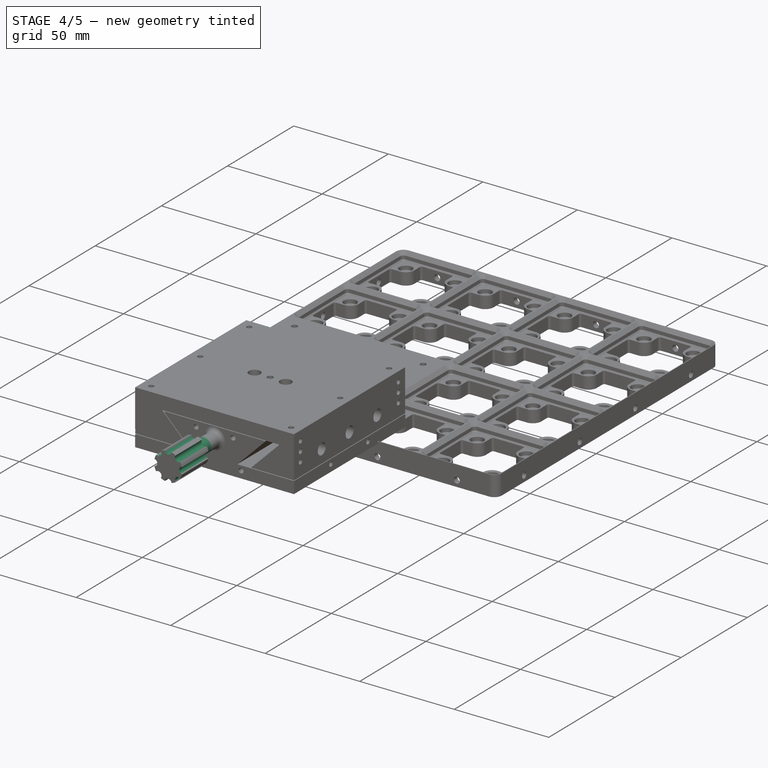
[diagram: stage 4 of 5 — iso view after this stage's code; geometry added in this stage tinted green]
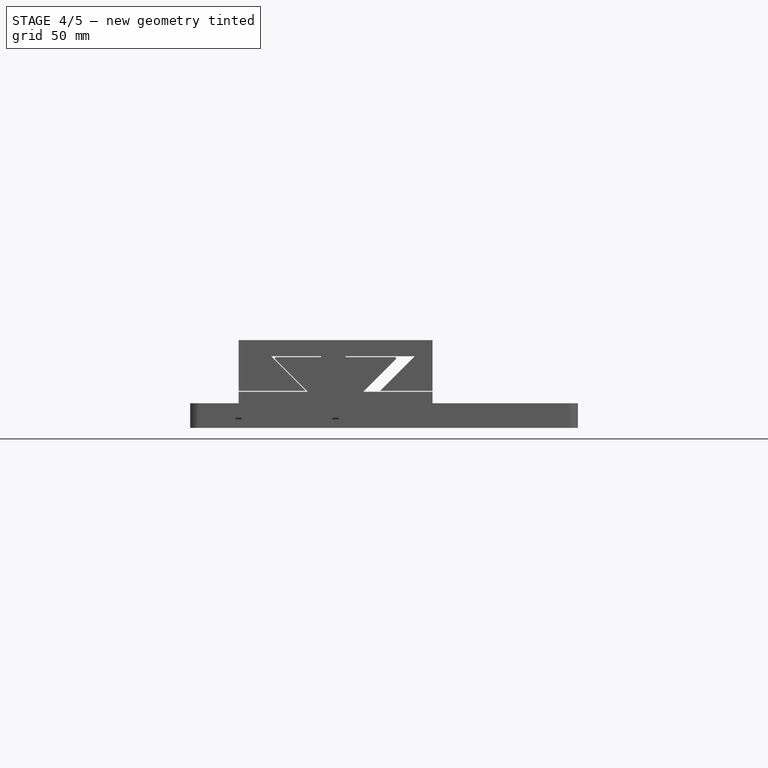
[diagram: stage 4 of 5 — front view after this stage's code; geometry added in this stage tinted green]
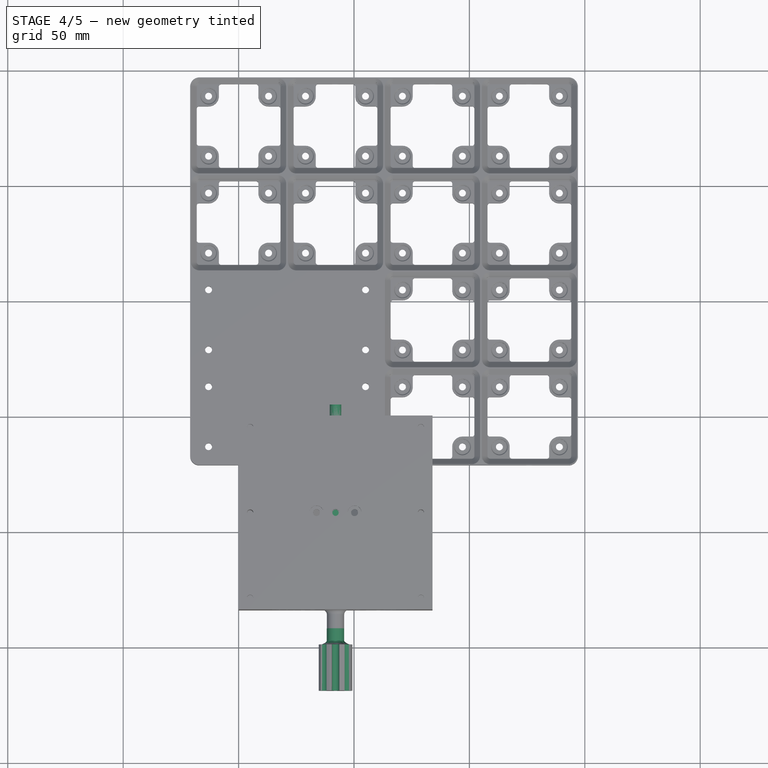
[diagram: stage 4 of 5 — top view after this stage's code; geometry added in this stage tinted green]
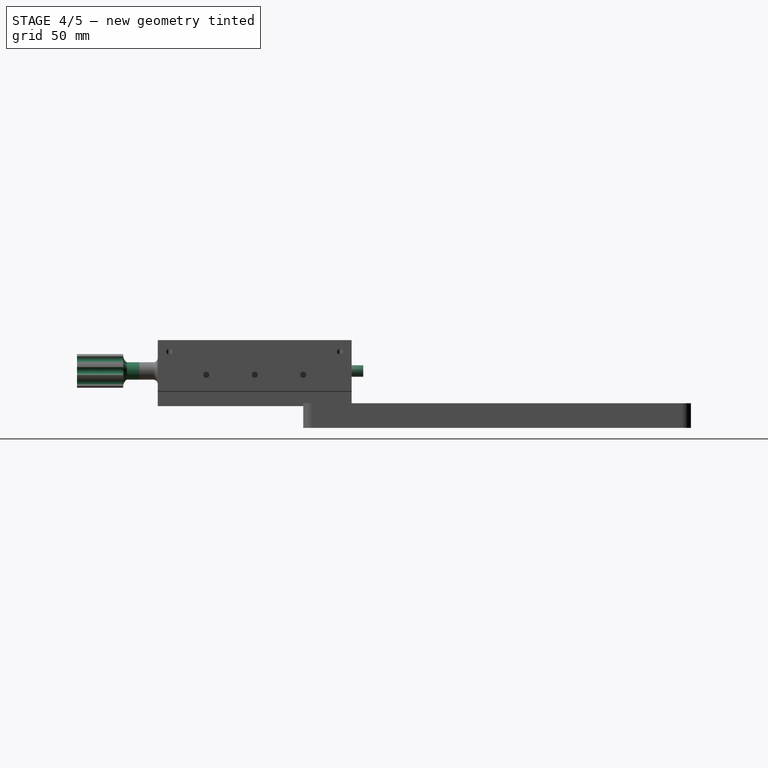
[diagram: stage 4 of 5 — right view after this stage's code; geometry added in this stage tinted green]
FEATURE [PartDesign::ShapeBinder] CopyPocket005
  Placement = pos=(0,-84,2e-15) rot=(1,0,0;1.5708rad)
  TraceSupport = false
FEATURE [PartDesign::Plane] DatumPlane005
  AttachmentSupport = -> [CopyPocket005]
  Length = 91.117
  MapMode = 5
  Placement = pos=(7.9014e-08,-84,20.8536) rot=(1,0,0;3.14159rad)
  ResizeMode = 0
  Width = 126.87
FEATURE [Sketcher::SketchObject] Sketch014
  ArcFitTolerance = 1e-06
  AttachmentSupport = -> [DatumPlane005]
  FullyConstrained = true
  MakeInternals = false
  MapMode = 5
  Placement = pos=(7.9014e-08,-84,20.8536) rot=(1,0,0;3.14159rad)
  sketch-geometry (6):
    g0: Circle CenterX=41.9965 CenterY=-42 CenterZ=0 NormalX=0 NormalY=0 NormalZ=1 AngleXU=0 Radius=1.35
    g1: LineSegment StartX=35.7465 StartY=-46.75 StartZ=0 EndX=48.2465 EndY=-46.75 EndZ=0
    g2: LineSegment StartX=48.2465 StartY=-46.75 StartZ=0 EndX=48.2465 EndY=-37.25 EndZ=0
    g3: LineSegment StartX=48.2465 StartY=-37.25 StartZ=0 EndX=35.7465 EndY=-37.25 EndZ=0
    g4: LineSegment StartX=35.7465 StartY=-37.25 StartZ=0 EndX=35.7465 EndY=-46.75 EndZ=0
    g5: GeomPoint [constr] X=41.9965 Y=-42 Z=0
  constraints (14):
    c: Diameter(g0) = 2.7
    c: Coincident(g0,g-4)
    c: Coincident(g1,g2)
    c: Coincident(g2,g3)
    c: Coincident(g3,g4)
    c: Coincident(g4,g1)
    c: Horizontal(g1)
    c: Horizontal(g3)
    c: Vertical(g2)
    c: Vertical(g4)
    c: Symmetric(g3,g1,g5)
    c: Distance(g2,g4) = 12.5
    c: Distance(g1,g3) = 9.5
    c: Coincident(g5,g0)
FEATURE [PartDesign::Pad] Pad007
  Direction = (-3.78899e-09,0,-1)
  Length = 3
  Length2 = 10
  Placement = pos=(7.9014e-08,-84,20.8536) rot=(1,0,0;3.14159rad)
  Profile = -> Sketch014
  ReferenceAxis = -> Sketch014 [N_Axis]
  Refine = true
  Suppressed = false
  Type = 0
FEATURE [Sketcher::SketchObject] Sketch015
  ArcFitTolerance = 1e-06
  AttachmentSupport = -> [Pad007]
  ExternalGeometry = -> [Pad007]
  FullyConstrained = true
  MakeInternals = false
  MapMode = 5
  Placement = pos=(6.7647e-08,-84,17.8536) rot=(1,0,0;3.14159rad)
  sketch-geometry (4):
    g0: LineSegment StartX=35.7465 StartY=-37.25 StartZ=0 EndX=35.7465 EndY=-46.75 EndZ=0
    g1: LineSegment StartX=35.7465 StartY=-46.75 StartZ=0 EndX=48.2465 EndY=-46.75 EndZ=0
    g2: LineSegment StartX=48.2465 StartY=-46.75 StartZ=0 EndX=48.2465 EndY=-37.25 EndZ=0
    g3: LineSegment StartX=48.2465 StartY=-37.25 StartZ=0 EndX=35.7465 EndY=-37.25 EndZ=0
  constraints (10):
    c: Coincident(g0,g1)
    c: Coincident(g1,g2)
    c: Coincident(g2,g3)
    c: Coincident(g3,g0)
    c: Vertical(g0)
    c: Vertical(g2)
    c: Horizontal(g1)
    c: Horizontal(g3)
    c: Coincident(g0,g-6)
    c: Coincident(g1,g-5)
FEATURE [PartDesign::Pad] Pad008
  BaseFeature = -> Pad007
  Direction = (-3.78899e-09,0,-1)
  Length = 8
  Length2 = 10
  Placement = pos=(7.9014e-08,-84,20.8536) rot=(1,0,0;3.14159rad)
  Profile = -> Sketch015
  ReferenceAxis = -> Sketch015 [N_Axis]
  Refine = true
  Suppressed = false
  Type = 0
FEATURE [Sketcher::SketchObject] Sketch016
  ArcFitTolerance = 1e-06
  AttachmentSupport = -> [Pad008]
  ExternalGeometry = -> [Pad008]
  FullyConstrained = true
  MakeInternals = false
  MapMode = 5
  Placement = pos=(7.9014e-08,-46.75,20.8536) rot=(0,0.707107,-0.707107;3.14159rad)
  sketch-geometry (2):
    g0: LineSegment [constr] StartX=-41.9965 StartY=0 StartZ=0 EndX=-41.9965 EndY=7 EndZ=0
    g1: Circle CenterX=-41.9965 CenterY=7 CenterZ=0 NormalX=0 NormalY=0 NormalZ=1 AngleXU=0 Radius=2.5
  constraints (5):
    c: Distance(g0) = 7
    c: Symmetric(g-6,g-6,g0)
    c: Vertical(g0)
    c: Diameter(g1) = 5
    c: Coincident(g1,g0)
FEATURE [PartDesign::Hole] Hole001
  BaseFeature = -> Pad008
  CustomThreadClearance = 0
  Depth = 12.72
  DepthType = 0
  Diameter = 4.2
  DrillForDepth = false
  DrillPoint = 1
  DrillPointAngle = 118
  HoleCutCountersinkAngle = 90
  HoleCutCustomValues = false
  HoleCutDepth = 0
  HoleCutDiameter = 6.1
  HoleCutType = 0
  ModelThread = false
  Placement = pos=(7.9014e-08,-84,20.8536) rot=(1,0,0;3.14159rad)
  Profile = -> Sketch016
  Refine = true
  Suppressed = false
  Tapered = false
  TaperedAngle = 90
  ThreadClass = 0
  ThreadDepth = 12.72
  ThreadDepthType = 0
  ThreadDirection = 0
  ThreadFit = 0
  ThreadSize = 13
  ThreadType = 1
  Threaded = true
  UseCustomThreadClearance = false
FEATURE [Sketcher::SketchObject] Sketch017
  ArcFitTolerance = 1e-06
  AttachmentSupport = -> [Hole001]
  ExternalGeometry = -> [Hole001]
  FullyConstrained = true
  MakeInternals = false
  MapMode = 5
  Placement = pos=(7.9014e-08,-46.75,20.8536) rot=(0,0.707107,-0.707107;3.14159rad)
  sketch-geometry (4):
    g0: LineSegment [constr] StartX=-48.2465 StartY=0 StartZ=0 EndX=-48.2465 EndY=2.5 EndZ=0
    g1: LineSegment [constr] StartX=-35.7465 StartY=0 StartZ=0 EndX=-35.7465 EndY=2.5 EndZ=0
    g2: Circle CenterX=-48.2465 CenterY=2.5 CenterZ=0 NormalX=0 NormalY=0 NormalZ=1 AngleXU=0 Radius=1
    g3: Circle CenterX=-35.7465 CenterY=2.5 CenterZ=0 NormalX=0 NormalY=0 NormalZ=1 AngleXU=0 Radius=1
  constraints (10):
    c: Distance(g0) = 2.5
    c: Coincident(g0,g-6)
    c: PointOnObject(g0,g-3)
    c: Distance(g1) = 2.5
    c: Coincident(g1,g-6)
    c: PointOnObject(g1,g-5)
    c: Diameter(g2) = 2
    c: Coincident(g2,g0)
    c: Diameter(g3) = 2
    c: Coincident(g3,g1)
FEATURE [PartDesign::Pocket] Pocket006
  BaseFeature = -> Hole001
  Direction = (0,1,2e-16)
  Length = 10
  Length2 = 5
  Placement = pos=(7.9014e-08,-84,20.8536) rot=(1,0,0;3.14159rad)
  Profile = -> Sketch017
  ReferenceAxis = -> Sketch017 [N_Axis]
  Refine = true
  Suppressed = false
  Type = 0
FEATURE [PartDesign::Chamfer] Chamfer013
  Angle = 45
  Base = -> Pocket006 [Edge30,Edge29]
  BaseFeature = -> Pocket006
  ChamferType = 0
  FlipDirection = false
  Placement = pos=(7.9014e-08,-84,20.8536) rot=(1,0,0;3.14159rad)
  Refine = true
  Size = 3
  Size2 = 1
  SupportTransform = false
  Suppressed = false
  UseAllEdges = false
FEATURE [PartDesign::Body] Body003  label="PlateThreadBlock OLD"
  AllowCompound = false
  Group = -> [DatumPlane005,CopyPocket005,Sketch014,Pad007,Sketch015,Pad008,Sketch016,Hole001,Sketch017,Pocket006,Chamfer013]
  Origin = -> Origin003
  Tip = -> Chamfer013
FEATURE [PartDesign::FeatureBase] Clone
  BaseFeature = -> Body003
  Suppressed = false
FEATURE [Sketcher::SketchObject] Sketch018
  ArcFitTolerance = 1e-06
  AttachmentSupport = -> [Clone]
  ExternalGeometry = -> [Clone]
  FullyConstrained = true
  MakeInternals = false
  MapMode = 5
  Placement = pos=(0,-46.75,0) rot=(1,0,0;1.5708rad)
  sketch-geometry (1):
    g0: Circle CenterX=41.9965 CenterY=13.8536 CenterZ=0 NormalX=0 NormalY=0 NormalZ=1 AngleXU=0 Radius=2.5
  constraints (2):
    c: Diameter(g0) = 5
    c: Coincident(g0,g-3)
FEATURE [PartDesign::Hole] Hole002
  BaseFeature = -> Clone
  CustomThreadClearance = 0.2
  Depth = 25
  DepthType = 0
  Diameter = 5.2
  DrillForDepth = false
  DrillPoint = 1
  DrillPointAngle = 118
  HoleCutCountersinkAngle = 90
  HoleCutCustomValues = false
  HoleCutDepth = 0
  HoleCutDiameter = 6.1
  HoleCutType = 0
  ModelThread = true
  Profile = -> Sketch018
  Refine = true
  Suppressed = false
  Tapered = false
  TaperedAngle = 90
  ThreadClass = 0
  ThreadDepth = 25
  ThreadDepthType = 0
  ThreadDirection = 0
  ThreadFit = 0
  ThreadSize = 14
  ThreadType = 1
  Threaded = true
  UseCustomThreadClearance = true
FEATURE [Sketcher::SketchObject] Sketch022
  ArcFitTolerance = 1e-06
  AttachmentSupport = -> [Pad011]
  ExternalGeometry = -> [Pad011]
  FullyConstrained = true
  MakeInternals = false
  MapMode = 5
  Placement = pos=(42,-119,14) rot=(0.57735,-0.57735,0.57735;2.0944rad)
  sketch-geometry (17):
    g0: LineSegment [constr] StartX=-5.29923e-11 StartY=5.2929e-11 StartZ=0 EndX=-5.29923e-11 EndY=7.5 EndZ=0
    g1: LineSegment [constr] StartX=-5.29923e-11 StartY=5.2929e-11 StartZ=0 EndX=7.5 EndY=5.2929e-11 EndZ=0
    g2: LineSegment [constr] StartX=-5.29923e-11 StartY=5.2929e-11 StartZ=0 EndX=-5.29923e-11 EndY=-7.5 EndZ=0
    g3: LineSegment [constr] StartX=-5.29923e-11 StartY=5.2929e-11 StartZ=0 EndX=-7.5 EndY=5.2929e-11 EndZ=0
    g4: LineSegment [constr] StartX=-5.29923e-11 StartY=5.2929e-11 StartZ=0 EndX=-5.3033 EndY=5.3033 EndZ=0
    g5: LineSegment [constr] StartX=-5.29923e-11 StartY=5.2929e-11 StartZ=0 EndX=5.3033 EndY=5.3033 EndZ=0
    g6: LineSegment [constr] StartX=-5.29923e-11 StartY=5.2929e-11 StartZ=0 EndX=5.3033 EndY=-5.3033 EndZ=0
    g7: LineSegment [constr] StartX=-5.29923e-11 StartY=5.2929e-11 StartZ=0 EndX=-5.3033 EndY=-5.3033 EndZ=0
    g8: Circle CenterX=-5.3033 CenterY=5.3033 CenterZ=0 NormalX=0 NormalY=0 NormalZ=1 AngleXU=0 Radius=1.34e-13
    g9: Circle CenterX=-5.3033 CenterY=5.3033 CenterZ=0 NormalX=0 NormalY=0 NormalZ=1 AngleXU=0 Radius=1.75
    g10: Circle CenterX=-7.5 CenterY=5.2929e-11 CenterZ=0 NormalX=0 NormalY=0 NormalZ=1 AngleXU=0 Radius=1.75
    g11: Circle CenterX=-5.3033 CenterY=-5.3033 CenterZ=0 NormalX=0 NormalY=0 NormalZ=1 AngleXU=0 Radius=1.75
    g12: Circle CenterX=-5.29923e-11 CenterY=-7.5 CenterZ=0 NormalX=0 NormalY=0 NormalZ=1 AngleXU=0 Radius=1.75
    g13: Circle CenterX=5.3033 CenterY=-5.3033 CenterZ=0 NormalX=0 NormalY=0 NormalZ=1 AngleXU=0 Radius=1.75
    g14: Circle CenterX=7.5 CenterY=5.2929e-11 CenterZ=0 NormalX=0 NormalY=0 NormalZ=1 AngleXU=0 Radius=1.75
    g15: Circle CenterX=5.3033 CenterY=5.3033 CenterZ=0 NormalX=0 NormalY=0 NormalZ=1 AngleXU=0 Radius=1.75
    g16: Circle CenterX=-5.29923e-11 CenterY=7.5 CenterZ=0 NormalX=0 NormalY=0 NormalZ=1 AngleXU=0 Radius=1.75
  constraints (42):
    c: Coincident(g0,g-1)
    c: PointOnObject(g0,g-3)
    c: Vertical(g0)
    c: Coincident(g1,g0)
    c: PointOnObject(g1,g-3)
    c: Horizontal(g1)
    c: Coincident(g2,g0)
    c: PointOnObject(g2,g-3)
    c: Vertical(g2)
    c: Coincident(g3,g0)
    c: PointOnObject(g3,g-3)
    c: Horizontal(g3)
    c: Angle(g-1,g4) = 2.35619
    c: Coincident(g4,g0)
    c: PointOnObject(g4,g-3)
    c: Angle(g-1,g5) = 0.785398
    c: Coincident(g5,g0)
    c: PointOnObject(g5,g-3)
    c: Angle(g-1,g6) = -0.785398
    c: Coincident(g6,g0)
    c: PointOnObject(g6,g-3)
    c: Angle(g-1,g7) = -2.35619
    c: Coincident(g7,g0)
    c: PointOnObject(g7,g-3)
    c: Coincident(g8,g4)
    c: Tangent(g8,g-3)
    c: Diameter(g9) = 3.5
    c: Coincident(g9,g4)
    c: Diameter(g10) = 3.5
    c: Coincident(g10,g3)
    c: Diameter(g11) = 3.5
    c: Coincident(g11,g7)
    c: Diameter(g12) = 3.5
    c: Coincident(g12,g2)
    c: Diameter(g13) = 3.5
    c: Coincident(g13,g6)
    c: Diameter(g14) = 3.5
    c: Coincident(g14,g1)
    c: Diameter(g15) = 3.5
    c: Coincident(g15,g5)
    c: Diameter(g16) = 3.5
    c: Coincident(g16,g0)
FEATURE [PartDesign::Pocket] Pocket007
  BaseFeature = -> Pad011
  Direction = (0,1,0)
  Length = 50
  Length2 = 5
  Placement = pos=(42,-84,14) rot=(0.57735,-0.57735,0.57735;2.0944rad)
  Profile = -> Sketch022
  ReferenceAxis = -> Sketch022 [N_Axis]
  Refine = true
  Suppressed = false
  Type = 1
FEATURE [PartDesign::Fillet] Fillet004
  Base = -> Pocket007 [Edge23]
  BaseFeature = -> Pocket007
  Placement = pos=(42,-84,14) rot=(0.57735,-0.57735,0.57735;2.0944rad)
  Radius = 4
  Refine = true
  SupportTransform = false
  Suppressed = false
  UseAllEdges = false
FEATURE [PartDesign::Point] DatumPoint
  AttacherType = Attacher::AttachEnginePoint
  AttachmentSupport = -> [Fillet004]
  MapMode = 36
  Placement = pos=(42,-79,14) rot=(0.707107,0,0.707107;3.14159rad)
FEATURE [Part::Part2DObjectPython] VThreadProfile  # Draft 2D object (typed FeaturePython)
  Area = 21.5626
  Closed = true
  Continuity = C2
  Deviation = 0.1
  Height = 74
  Helix = Helix
  Instructions = Expand this with the ... button to view instructions | Sweep this object along a helix of the same pitch to produce your thread. | It is recommended to make the helix in the ThreadProfile workbench. | If there is an active Body the ThreadProfile object will be put into it.,If not it can be dragged and dropped into the body later. | If there is an active Body when the helix is made there will be made a ShapeBinder for it | For internal threads you will need to cut the Sweep object out of a cylinder, or if using Part Design sweep it as a Subtractive Pipe. | Always use Frenet mode | I have provided some presets, but it is possible there could be some errors.  Double check for mission critical applications. | Also, the tolerances might be different from what you wish to have.  I believe the internal minor diameters are all minimum and the external are all maximum.
  InternalOrExternal = 1
  MakeFace = true
  MinorDiameter = 4.773
  Parameterization = 1
  Pitch = 1
  Placement = pos=(42,-79,14) rot=(1,0,0;-1.5708rad)
  Points = (66) [(2.37314,0.228827,0),(2.31975,0.451556,0),(2.25136,0.667864,0),(2.16643,0.876642,0),(2.06474,1.07659,0),(1.94661,1.26636,0),(1.81267,1.44463,0),+59 more]
  Presets = 16
  Quality = 11
  ThreadCount = 74
  Variants = 0
  Version = 1.92
  external2S_data = [-0.00461051,-0.00886426,-0.0128148,-0.0165028,-0.0199596,-0.0232105,-0.0262759,-0.0291725,-0.0319145,-0.0345137,-0.0369805,-0.0393235,-0.0415505,-0.0436681,-0.0456823,-0.0475981,-0.0494204,-0.0511532,-0.0528003,-0.0543649,-0.0558502,+698 more]
  external3S_data = [-0.00677828,-0.0128149,-0.0182584,-0.0232106,-0.0277444,-0.0319145,-0.0357632,-0.0393236,-0.0426227,-0.0456823,-0.0485208,-0.0511533,-0.0535928,-0.0558503,-0.0579353,-0.059856,-0.0616195,-0.0632319,-0.0646984,-0.0660239,-0.0672123,+698 more]
  external45_data = [-0.00137363,-0.00271738,-0.00403219,-0.00531893,-0.00657844,-0.00781148,-0.00901878,-0.010201,-0.0113589,-0.012493,-0.0136039,-0.0146921,-0.0157583,-0.0168028,-0.0178261,-0.0188288,-0.0198112,-0.0207738,-0.0217169,-0.0226409,-0.0235462,+698 more]
  external_data = [-0.00235387,-0.00461052,-0.00677828,-0.00886428,-0.0108747,-0.0128149,-0.0146895,-0.0165028,-0.0182584,-0.0199597,-0.0216095,-0.0232106,-0.0247653,-0.0262759,-0.0277444,-0.0291725,-0.0305621,-0.0319145,-0.0332313,-0.0345138,-0.0357632,+698 more]
  internal2S_data = [0,0,0,0,0,0,0,0,0,0,0,0,0,0,0,0,0,0,0,0,0,0,0,0,0,0,0,0,0,0,0,0,0,0,0,0,0,0,0,0,0,0,0,0,0,0,0,0,0,0,0,0,0,0,0,0,0,0,0,0,0,0,0,0,0,0,0,0,0,0,0,0,0,0,0,0,0,0,0,0,0,0,0,0,0,0,0,0,0,0,0.00481128,0.00962256,0.0144338,0.0192451,0.0240564,+624 more]
  internal3S_data = [0,0,0,0,0,0,0,0,0,0,0,0,0,0,0,0,0,0,0,0,0,0,0,0,0,0,0,0,0,0,0,0,0,0,0,0,0,0,0,0,0,0,0,0,0,0,0,0,0,0,0,0,0,0,0,0,0,0,0,0,0.00721688,0.0144338,0.0216506,0.0288675,0.0360844,0.0433013,0.0505181,0.057735,0.0649519,0.0721688,0.0793857,0.0866025,+647 more]
  internal45_data = [0,0,0,0,0,0,0,0,0,0,0,0,0,0,0,0,0,0,0,0,0,0,0,0,0,0,0,0,0,0,0,0,0,0,0,0,0,0,0,0,0,0,0,0,0,0,0,0,0,0,0,0,0,0,0,0,0,0,0,0,0,0,0,0,0,0,0,0,0,0,0,0,0,0,0,0,0,0,0,0,0,0,0,0,0,0,0,0,0,0,0,0,0,0,0,0,0,0,0,0,0,0,0,0,0,0,0,0,0,0,0,0,0,0,0,0,0,0,0,0,+599 more]
  internal_data = [0,0,0,0,0,0,0,0,0,0,0,0,0,0,0,0,0,0,0,0,0,0,0,0,0,0,0,0,0,0,0,0,0,0,0,0,0,0,0,0,0,0,0,0,0,0,0,0,0,0,0,0,0,0,0,0,0,0,0,0,0,0,0,0,0,0,0,0,0,0,0,0,0,0,0,0,0,0,0,0,0,0,0,0,0,0,0,0,0,0,0,0,0,0,0,0,0,0,0,0,0,0,0,0,0,0,0,0,0,0,0,0,0,0,0,0,0,0,0,0,+599 more]
  preset_names = <blob: 3959 chars omitted>
  presets_data = [0,0,0,2.20878,24.1173,24.6888,0.25,0.693,0.729,0.25,0.793,0.829,0.25,0.893,0.929,0.3,1.032,1.075,0.35,1.171,1.221,0.35,1.371,1.421,0.4,1.509,1.567,0.45,1.648,1.713,0.45,1.948,2.013,0.5,2.387,2.459,0.6,2.764,2.85,0.7,3.141,3.242,0.75,3.58,+712 more]
FEATURE [Part::Helix] Helix
  Angle = 0
  AttacherType = Attacher::AttachEngine3D
  Height = 74
  Length = 470.808
  LocalCoord = 0
  Pitch = 1
  Placement = pos=(42,-79,14) rot=(1,0,0;-1.5708rad)
  Radius = 1
  SegmentLength = 1
  Style = 0
  expr: AttachmentOffset = VThreadProfile.AttachmentOffset
  expr: AttachmentSupport = VThreadProfile.AttachmentSupport
  expr: Height = VThreadProfile.ThreadCount * VThreadProfile.Pitch
  expr: MapMode = VThreadProfile.MapMode
  expr: MapPathParameter = VThreadProfile.MapPathParameter
  expr: MapReversed = VThreadProfile.MapReversed
  expr: Pitch = VThreadProfile.Pitch
  expr: SegmentLength = 1
FEATURE [PartDesign::AdditivePipe] AdditivePipe
  AuxilleryCurvelinear = true
  AuxillerySpineTangent = false
  BaseFeature = -> Fillet004
  Binormal = (0,0,0)
  Mode = 2
  Placement = pos=(42,-84,14) rot=(0.57735,-0.57735,0.57735;2.0944rad)
  Profile = -> VThreadProfile
  Refine = true
  Spine = -> Helix [Edge1,Edge2,Edge3,Edge4,Edge5,Edge6,Edge7,Edge8,Edge9,Edge10,Edge11,Edge12,Edge13,Edge14,Edge15,Edge16,Edge17,Edge18,Edge19,Edge20,Edge21,Edge22,Edge23,Edge24,Edge25,Edge26,Edge27,Edge28,Edge29,Edge30,Edge31,Edge32,Edge33,Edge34,Edge35,Edge36,Edge37,Edge38,Edge39,Edge40,+34 more]
  SpineTangent = false
  Suppressed = false
  Transformation = 0
  Transition = 0
FEATURE [PartDesign::ShapeBinder] ShapeBinder004
  Support = -> [Fillet]
  TraceSupport = false
FEATURE [PartDesign::Plane] DatumPlane007
  AttachmentSupport = -> [AdditivePipe]
  Length = 62.19
  MapMode = 5
  Placement = pos=(42.0014,-4.99998,14) rot=(0.577354,0.577344,0.577354;4.18878rad)
  ResizeMode = 0
  Width = 86.4884
FEATURE [Sketcher::SketchObject] Sketch023
  ArcFitTolerance = 1e-06
  AttachmentSupport = -> [DatumPlane007]
  FullyConstrained = true
  MakeInternals = false
  MapMode = 5
  Placement = pos=(42.0014,-4.99998,14) rot=(0.577354,0.577344,0.577354;4.18878rad)
  sketch-geometry (1):
    g0: Circle CenterX=0 CenterY=0 CenterZ=0 NormalX=0 NormalY=0 NormalZ=1 AngleXU=0 Radius=2.9
  constraints (2):
    c: Diameter(g0) = 5.8
    c: Coincident(g0,g-1)
FEATURE [PartDesign::Pad] Pad012
  BaseFeature = -> AdditivePipe
  Direction = (1.755e-05,1,1.0234e-10)
  Length = 10
  Length2 = 10
  Placement = pos=(42,-84,14) rot=(0.57735,-0.57735,0.57735;2.0944rad)
  Profile = -> Sketch023
  ReferenceAxis = -> Sketch023 [N_Axis]
  Refine = true
  Suppressed = false
  Type = 0
FEATURE [PartDesign::Body] Body008  label="M3 5mm Spaced Mounting Plate"
  AllowCompound = false
  Group = -> [DatumPlane010,CopyPocket011,Sketch032,Pad017,Sketch033,Pad018,Sketch034,Pocket012]
  Origin = -> Origin008
  Tip = -> Pocket012
FEATURE [Sketcher::SketchObject] Sketch035
  ArcFitTolerance = 1e-06
  AttachmentSupport = -> [Pad012]
  FullyConstrained = true
  MakeInternals = false
  MapMode = 5
  Placement = pos=(42.0016,5.00002,14) rot=(0.577354,0.577344,0.577354;4.18878rad)
  sketch-geometry (1):
    g0: Circle CenterX=0 CenterY=0 CenterZ=0 NormalX=0 NormalY=0 NormalZ=1 AngleXU=0 Radius=1.35
  constraints (2):
    c: Diameter(g0) = 2.7
    c: Coincident(g0,g-1)
FEATURE [PartDesign::Pocket] Pocket013
  BaseFeature = -> Pad012
  Direction = (-1.755e-05,-1,-1.0234e-10)
  Length = 5
  Length2 = 5
  Placement = pos=(42,-84,14) rot=(0.57735,-0.57735,0.57735;2.0944rad)
  Profile = -> Sketch035
  ReferenceAxis = -> Sketch035 [N_Axis]
  Refine = true
  Suppressed = false
  Type = 0
FEATURE [Sketcher::SketchObject] Sketch036
  ArcFitTolerance = 1e-06
  AttachmentSupport = -> [Pocket013]
  ExternalGeometry = -> [Pocket013]
  FullyConstrained = true
  MakeInternals = false
  MapMode = 5
  Placement = pos=(42.0016,5.00002,14) rot=(0.577354,0.577344,0.577354;4.18878rad)
  sketch-geometry (2):
    g0: Circle CenterX=0 CenterY=0 CenterZ=0 NormalX=0 NormalY=0 NormalZ=1 AngleXU=0 Radius=2.5
    g1: Circle CenterX=0 CenterY=0 CenterZ=0 NormalX=0 NormalY=0 NormalZ=1 AngleXU=0 Radius=2.9
  constraints (4):
    c: Diameter(g0) = 5
    c: Coincident(g0,g-1)
    c: Coincident(g1,g0)
    c: Tangent(g1,g-3)
FEATURE [PartDesign::Pocket] Pocket014
  BaseFeature = -> Pocket013
  Direction = (-1.755e-05,-1,-1.0234e-10)
  Length = 10
  Length2 = 5
  Placement = pos=(42,-84,14) rot=(0.57735,-0.57735,0.57735;2.0944rad)
  Profile = -> Sketch036
  ReferenceAxis = -> Sketch036 [N_Axis]
  Refine = true
  Suppressed = false
  Type = 0
FEATURE [Sketcher::SketchObject] Sketch040
  ArcFitTolerance = 1e-06
  AttachmentSupport = -> [Hole002]
  ExternalGeometry = -> [Hole002]
  FullyConstrained = true
  MakeInternals = false
  MapMode = 5
  Placement = pos=(3.7335e-08,0,9.85355) rot=(1,0,0;3.14159rad)
  sketch-geometry (4):
    g0: LineSegment StartX=38.7465 StartY=46.75 StartZ=0 EndX=38.7465 EndY=37.25 EndZ=0
    g1: LineSegment StartX=38.7465 StartY=37.25 StartZ=0 EndX=45.2465 EndY=37.25 EndZ=0
    g2: LineSegment StartX=45.2465 StartY=37.25 StartZ=0 EndX=45.2465 EndY=46.75 EndZ=0
    g3: LineSegment StartX=45.2465 StartY=46.75 StartZ=0 EndX=38.7465 EndY=46.75 EndZ=0
  constraints (10):
    c: Coincident(g0,g1)
    c: Coincident(g1,g2)
    c: Coincident(g2,g3)
    c: Coincident(g3,g0)
    c: Vertical(g0)
    c: Vertical(g2)
    c: Horizontal(g1)
    c: Horizontal(g3)
    c: Coincident(g0,g-5)
    c: Coincident(g1,g-6)
FEATURE [PartDesign::Pad] Pad019
  BaseFeature = -> Hole002
  Direction = (-3.78899e-09,0,-1)
  Length = 4.65
  Length2 = 10
  Profile = -> Sketch040
  ReferenceAxis = -> Sketch040 [N_Axis]
  Refine = true
  Suppressed = false
  Type = 0
FEATURE [PartDesign::Chamfer] Chamfer015
  Angle = 45
  Base = -> Pad019 [Edge6]
  BaseFeature = -> Pad019
  ChamferType = 0
  FlipDirection = false
  Refine = true
  Size = 4
  Size2 = 1
  SupportTransform = false
  Suppressed = false
  UseAllEdges = false
FEATURE [PartDesign::Chamfer] Chamfer016
  Angle = 45
  Base = -> Chamfer015 [Edge47]
  BaseFeature = -> Chamfer015
  ChamferType = 0
  FlipDirection = false
  Refine = true
  Size = 4
  Size2 = 1
  SupportTransform = false
  Suppressed = false
  UseAllEdges = false
FEATURE [Sketcher::SketchObject] Sketch041
  ArcFitTolerance = 1e-06
  AttachmentSupport = -> [Chamfer016]
  ExternalGeometry = -> [Chamfer016]
  FullyConstrained = true
  MakeInternals = false
  MapMode = 5
  Placement = pos=(0,-37.25,0) rot=(0,0.707107,0.707107;3.14159rad)
  sketch-geometry (4):
    g0: LineSegment StartX=-48.2465 StartY=20.8536 StartZ=0 EndX=-48.2465 EndY=6.85355 EndZ=0
    g1: LineSegment StartX=-48.2465 StartY=6.85355 StartZ=0 EndX=-46.2465 EndY=6.85355 EndZ=0
    g2: LineSegment StartX=-46.2465 StartY=6.85355 StartZ=0 EndX=-46.2465 EndY=20.8536 EndZ=0
    g3: LineSegment StartX=-46.2465 StartY=20.8536 StartZ=0 EndX=-48.2465 EndY=20.8536 EndZ=0
  constraints (11):
    c: Coincident(g0,g1)
    c: Coincident(g1,g2)
    c: Coincident(g2,g3)
    c: Coincident(g3,g0)
    c: Vertical(g0)
    c: Vertical(g2)
    c: Horizontal(g1)
    c: Horizontal(g3)
    c: Distance(g0,g2) = 2
    c: Distance(g1,g3) = 14
    c: Coincident(g0,g-11)
FEATURE [PartDesign::Pocket] Pocket018
  BaseFeature = -> Chamfer016
  Direction = (0,-1,2e-16)
  Length = 10
  Length2 = 5
  Profile = -> Sketch041
  ReferenceAxis = -> Sketch041 [N_Axis]
  Refine = true
  Suppressed = false
  Type = 0
FEATURE [PartDesign::Body] Body004  label="Thread Block Modelled"
  AllowCompound = false
  Group = -> [Clone,Sketch018,Hole002,Sketch040,Pad019,Chamfer015,Chamfer016,Sketch041,Pocket018,Sketch043,Pocket019,Sketch044,Pad020,Sketch045,Pad021,Sketch046,Pocket020,Sketch047,Pocket021,Sketch048,Pad022,Sketch049,Pocket022,Sketch054,Pocket026]
  Origin = -> Origin004
  Placement = pos=(0,-23,0) rot=(0,0,1;0rad)
  Tip = -> Pocket026
FEATURE [Sketcher::SketchObject] Sketch055
  ArcFitTolerance = 1e-06
  AttachmentSupport = -> [Pocket014]
  ExternalGeometry = -> [Pocket014]
  FullyConstrained = true
  MakeInternals = false
  MapMode = 5
  Placement = pos=(42,-84,14) rot=(0.57735,0.57735,0.57735;4.18879rad)
  sketch-geometry (2):
    g0: Circle CenterX=0 CenterY=-0.03 CenterZ=0 NormalX=0 NormalY=0 NormalZ=1 AngleXU=0 Radius=3.03
    g1: Circle CenterX=0 CenterY=-0.03 CenterZ=0 NormalX=0 NormalY=0 NormalZ=1 AngleXU=0 Radius=3.75
  constraints (5):
    c: PointOnObject(g0,g-2)
    c: Tangent(g0,g-3)
    c: Diameter(g0) = 6.06
    c: Diameter(g1) = 7.5
    c: Coincident(g1,g0)
FEATURE [PartDesign::Pad] Pad024
  BaseFeature = -> Pocket014
  Direction = (0,1,0)
  Length = 21
  Length2 = 10
  Placement = pos=(42,-84,14) rot=(0.57735,-0.57735,0.57735;2.0944rad)
  Profile = -> Sketch055
  ReferenceAxis = -> Sketch055 [N_Axis]
  Refine = true
  Reversed = true
  Suppressed = false
  Type = 0
FEATURE [Sketcher::SketchObject] Sketch056
  ArcFitTolerance = 1e-06
  AttachmentSupport = -> [Pad024]
  ExternalGeometry = -> [Pad024]
  FullyConstrained = true
  MakeInternals = false
  MapMode = 5
  Placement = pos=(42,-84,14) rot=(0.57735,0.57735,0.57735;4.18879rad)
  sketch-geometry (2):
    g0: Circle CenterX=0 CenterY=0 CenterZ=0 NormalX=0 NormalY=0 NormalZ=1 AngleXU=0 Radius=2.9
    g1: Circle CenterX=0 CenterY=-0.03 CenterZ=0 NormalX=0 NormalY=0 NormalZ=1 AngleXU=0 Radius=3.75
  constraints (4):
    c: Coincident(g0,g-1)
    c: Diameter(g0) = 5.8
    c: Coincident(g1,g-3)
    c: Equal(g1,g-3)
FEATURE [PartDesign::Pocket] Pocket027
  BaseFeature = -> Pad024
  Direction = (0,-1,0)
  Length = 8
  Length2 = 5
  Placement = pos=(42,-84,14) rot=(0.57735,-0.57735,0.57735;2.0944rad)
  Profile = -> Sketch056
  ReferenceAxis = -> Sketch056 [N_Axis]
  Refine = true
  Suppressed = false
  Type = 0
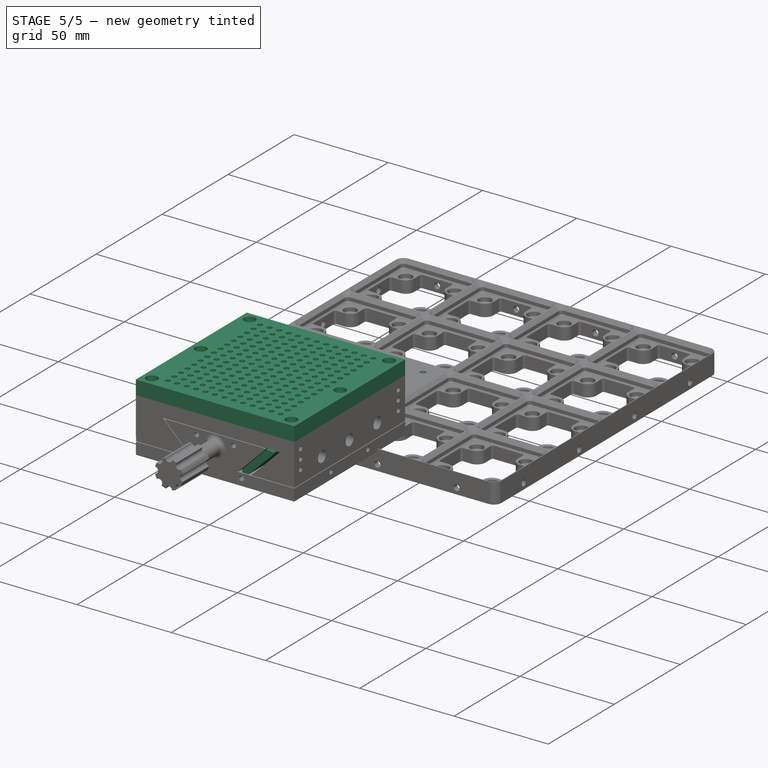
[diagram: stage 5 of 5 — iso view after this stage's code; geometry added in this stage tinted green]
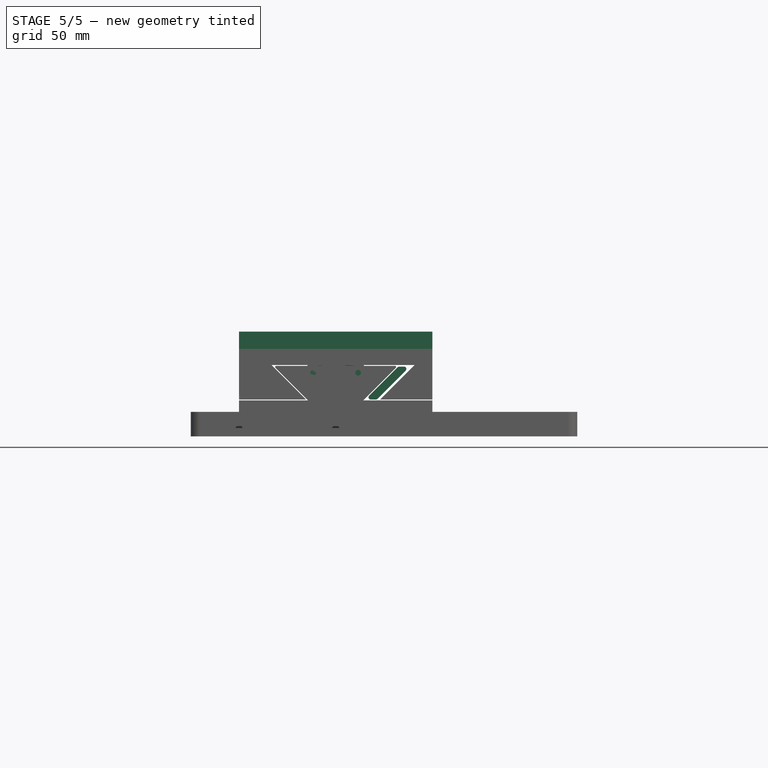
[diagram: stage 5 of 5 — front view after this stage's code; geometry added in this stage tinted green]
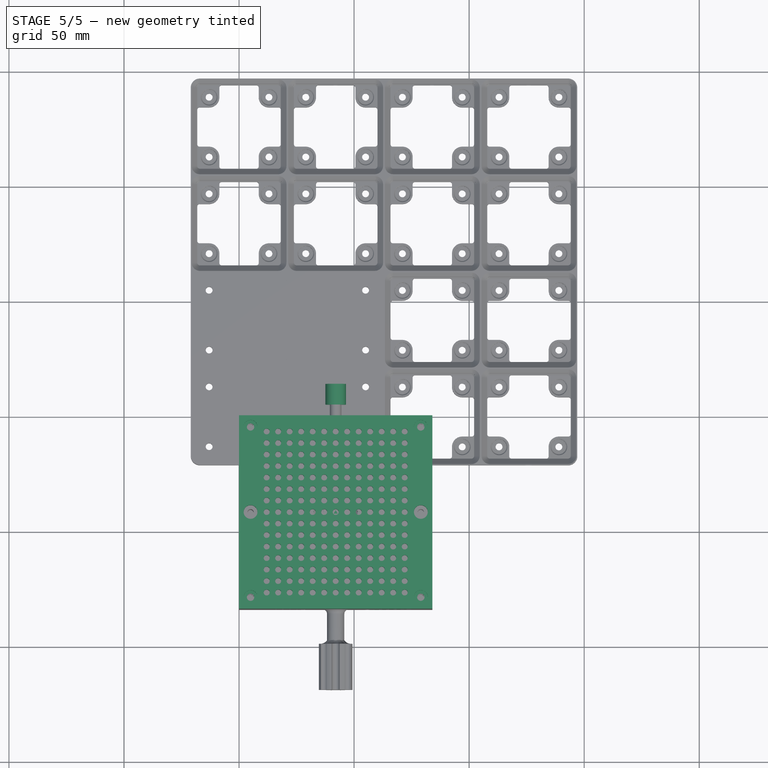
[diagram: stage 5 of 5 — top view after this stage's code; geometry added in this stage tinted green]
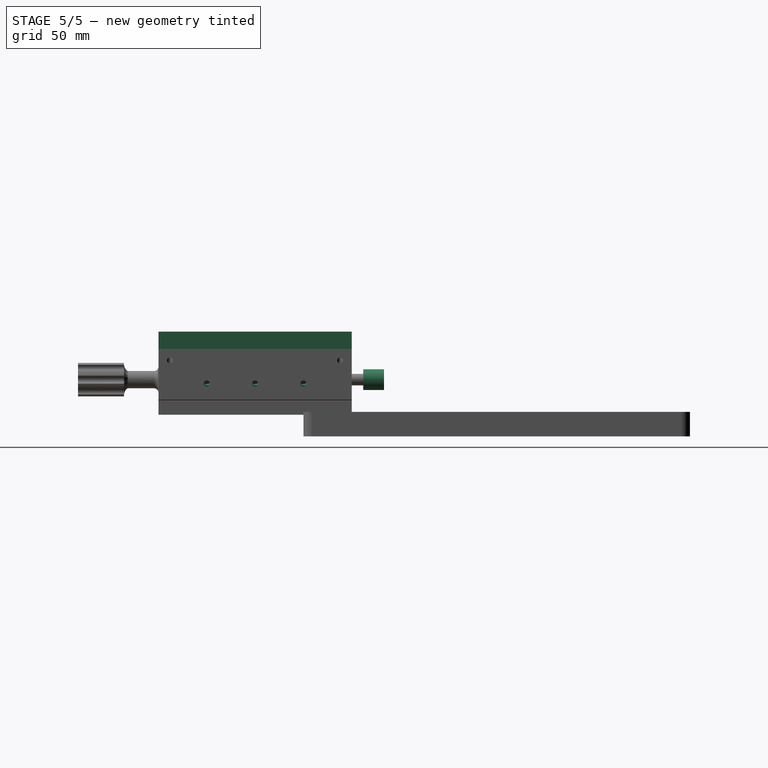
[diagram: stage 5 of 5 — right view after this stage's code; geometry added in this stage tinted green]
FEATURE [PartDesign::ShapeBinder] ShapeBinder
  Support = -> [Fillet]
  TraceSupport = false
FEATURE [PartDesign::ShapeBinder] CopyFillet
  Placement = pos=(0,-5,2e-15) rot=(0,0,1;0rad)
  TraceSupport = false
FEATURE [PartDesign::Plane] DatumPlane002
  AttachmentSupport = -> [CopyFillet]
  Length = 111.71
  MapMode = 5
  Placement = pos=(0,-84,2e-15) rot=(1,0,0;1.5708rad)
  ResizeMode = 0
  Width = 63.9806
FEATURE [Sketcher::SketchObject] Sketch006
  ArcFitTolerance = 1e-06
  AttachmentSupport = -> [DatumPlane002]
  ExternalGeometry = -> [ShapeBinder]
  FullyConstrained = true
  MakeInternals = false
  MapMode = 5
  Placement = pos=(0,-84,2e-15) rot=(1,0,0;1.5708rad)
  sketch-geometry (16):
    g0: LineSegment [constr] StartX=68.1465 StartY=19.1464 StartZ=0 EndX=69 EndY=20 EndZ=0
    g1: LineSegment [constr] StartX=67.7929 StartY=20 StartZ=0 EndX=69 EndY=20 EndZ=0
    g2: LineSegment [constr] StartX=69 StartY=20 StartZ=0 EndX=69.5 EndY=20 EndZ=0
    g3: LineSegment [constr] StartX=69.5 StartY=20 StartZ=0 EndX=74.5 EndY=20 EndZ=0
    g4: LineSegment [constr] StartX=54 StartY=5 StartZ=0 EndX=54.5 EndY=5 EndZ=0
    g5: LineSegment [constr] StartX=54.5 StartY=5 StartZ=0 EndX=59.5 EndY=5 EndZ=0
    g6: LineSegment [constr] StartX=59.5 StartY=5 StartZ=0 EndX=74.5 EndY=20 EndZ=0
    g7: LineSegment [constr] StartX=54.5 StartY=5 StartZ=0 EndX=69.5 EndY=20 EndZ=0
    g8: LineSegment [constr] StartX=59.5 StartY=5 StartZ=0 EndX=59.8536 EndY=5.35355 EndZ=0
    g9: LineSegment [constr] StartX=54.5 StartY=5 StartZ=0 EndX=54.8536 EndY=5.35355 EndZ=0
    g10: LineSegment [constr] StartX=74.5 StartY=20 StartZ=0 EndX=74.1465 EndY=19.6464 EndZ=0
    g11: LineSegment [constr] StartX=69.5 StartY=20 StartZ=0 EndX=69.1465 EndY=19.6464 EndZ=0
    g12: LineSegment StartX=54.8536 StartY=5.35355 StartZ=0 EndX=59.8536 EndY=5.35355 EndZ=0
    g13: LineSegment StartX=59.8536 StartY=5.35355 StartZ=0 EndX=74.1465 EndY=19.6464 EndZ=0
    g14: LineSegment StartX=74.1465 StartY=19.6464 StartZ=0 EndX=69.1465 EndY=19.6464 EndZ=0
    g15: LineSegment StartX=69.1465 StartY=19.6464 StartZ=0 EndX=54.8536 EndY=5.35355 EndZ=0
  constraints (41):
    c: Coincident(g0,g-3)
    c: Coincident(g1,g-4)
    c: Coincident(g1,g0)
    c: Angle(g-4,g1) = 3.14159
    c: Angle(g-3,g0) = 3.14159
    c: Distance(g2) = 0.5
    c: Coincident(g2,g0)
    c: Horizontal(g2)
    c: Distance(g3) = 5
    c: Coincident(g3,g2)
    c: Horizontal(g3)
    c: Distance(g4) = 0.5
    c: Coincident(g4,g-3)
    c: Horizontal(g4)
    c: Distance(g5) = 5
    c: Coincident(g5,g4)
    c: Horizontal(g5)
    c: Coincident(g6,g5)
    c: Coincident(g6,g3)
    c: Coincident(g7,g4)
    c: Coincident(g7,g2)
    c: Distance(g8) = 0.5
    c: Coincident(g8,g5)
    c: PointOnObject(g8,g6)
    c: Distance(g9) = 0.5
    c: Coincident(g9,g4)
    c: PointOnObject(g9,g7)
    c: Distance(g10) = 0.5
    c: Coincident(g10,g3)
    c: PointOnObject(g10,g6)
    c: Distance(g11) = 0.5
    c: Coincident(g11,g2)
    c: PointOnObject(g11,g7)
    c: Coincident(g12,g9)
    c: Coincident(g12,g8)
    c: Coincident(g13,g8)
    c: Coincident(g13,g10)
    c: Coincident(g14,g10)
    c: Coincident(g14,g11)
    c: Coincident(g15,g11)
    c: Coincident(g15,g9)
FEATURE [PartDesign::Pad] Pad005
  Direction = (0,-1,2e-16)
  Length = 84
  Length2 = 10
  Placement = pos=(0,-84,2e-15) rot=(1,0,0;1.5708rad)
  Profile = -> Sketch006
  ReferenceAxis = -> Sketch006 [N_Axis]
  Refine = true
  Reversed = true
  Suppressed = false
  Type = 0
FEATURE [PartDesign::Plane] DatumPlane003
  AttachmentSupport = -> [Pad005]
  Length = 125.801
  MapMode = 5
  Placement = pos=(27.25,-84,-27.25) rot=(0.92388,0,0.382683;3.14159rad)
  ResizeMode = 0
  Width = 130.341
FEATURE [Sketcher::SketchObject] Sketch007
  ArcFitTolerance = 1e-06
  AttachmentSupport = -> [DatumPlane003]
  ExternalGeometry = -> [Pad005]
  FullyConstrained = true
  MakeInternals = false
  MapMode = 5
  Placement = pos=(27.25,-84,-27.25) rot=(0.92388,0,0.382683;3.14159rad)
  sketch-geometry (8):
    g0: LineSegment [constr] StartX=46.1084 StartY=-42 StartZ=0 EndX=66.3216 EndY=-42 EndZ=0
    g1: LineSegment [constr] StartX=56.215 StartY=-42 StartZ=0 EndX=56.215 EndY=-1.42e-14 EndZ=0
    g2: LineSegment [constr] StartX=56.215 StartY=-42 StartZ=0 EndX=56.215 EndY=-84 EndZ=0
    g3: GeomPoint [constr] X=56.215 Y=-63 Z=0
    g4: GeomPoint [constr] X=56.215 Y=-21 Z=0
    g5: Circle CenterX=56.215 CenterY=-21 CenterZ=0 NormalX=0 NormalY=0 NormalZ=1 AngleXU=0 Radius=1.55
    g6: Circle CenterX=56.215 CenterY=-42 CenterZ=0 NormalX=0 NormalY=0 NormalZ=1 AngleXU=0 Radius=1.55
    g7: Circle CenterX=56.215 CenterY=-63 CenterZ=0 NormalX=0 NormalY=0 NormalZ=1 AngleXU=0 Radius=1.55
  constraints (14):
    c: Symmetric(g-4,g-4,g0)
    c: Symmetric(g-3,g-3,g0)
    c: Symmetric(g0,g0,g1)
    c: Symmetric(g-5,g-5,g1)
    c: Coincident(g2,g1)
    c: Symmetric(g-6,g-6,g2)
    c: Symmetric(g2,g2,g3)
    c: Symmetric(g1,g1,g4)
    c: Diameter(g5) = 3.1
    c: Coincident(g5,g4)
    c: Diameter(g6) = 3.1
    c: Coincident(g6,g1)
    c: Diameter(g7) = 3.1
    c: Coincident(g7,g3)
FEATURE [PartDesign::Pocket] Pocket
  BaseFeature = -> Pad005
  Direction = (-0.707107,0,0.707107)
  Length = 1
  Length2 = 5
  Placement = pos=(0,-84,2e-15) rot=(1,0,0;1.5708rad)
  Profile = -> Sketch007
  ReferenceAxis = -> Sketch007 [N_Axis]
  Refine = true
  Suppressed = false
  Type = 0
FEATURE [PartDesign::Fillet] Fillet001
  Base = -> Pocket [Edge5,Edge10,Edge1,Edge2]
  BaseFeature = -> Pocket
  Placement = pos=(0,-84,2e-15) rot=(1,0,0;1.5708rad)
  Radius = 1
  Refine = true
  SupportTransform = false
  Suppressed = false
  UseAllEdges = false
FEATURE [PartDesign::Fillet] Fillet002
  Base = -> Fillet001 [Edge24,Edge25,Edge23]
  BaseFeature = -> Fillet001
  Placement = pos=(0,-84,2e-15) rot=(1,0,0;1.5708rad)
  Radius = 0.3
  Refine = true
  SupportTransform = false
  Suppressed = false
  UseAllEdges = false
FEATURE [PartDesign::Fillet] Fillet003
  Base = -> Fillet002 [Edge31,Edge37,Edge39]
  BaseFeature = -> Fillet002
  Placement = pos=(0,-84,2e-15) rot=(1,0,0;1.5708rad)
  Radius = 0.3
  Refine = true
  SupportTransform = false
  Suppressed = false
  UseAllEdges = false
FEATURE [PartDesign::ShapeBinder] CopyPocket008
  Placement = pos=(42,-84,14) rot=(0.57735,-0.57735,0.57735;2.0944rad)
  TraceSupport = false
FEATURE [PartDesign::Plane] DatumPlane008
  AttachmentSupport = -> [CopyPocket008]
  Length = 61.9575
  MapMode = 5
  Placement = pos=(41.9985,5.00002,14) rot=(-0.577347,-0.577357,-0.577347;2.09438rad)
  ResizeMode = 0
  Width = 83.4479
FEATURE [Sketcher::SketchObject] Sketch025
  ArcFitTolerance = 1e-06
  AttachmentSupport = -> [DatumPlane008]
  ExternalGeometry = -> [CopyPocket008]
  FullyConstrained = true
  MakeInternals = false
  MapMode = 5
  Placement = pos=(41.9985,5.00002,14) rot=(-0.577347,-0.577357,-0.577347;2.09438rad)
  sketch-geometry (2):
    g0: Circle CenterX=0 CenterY=0 CenterZ=0 NormalX=0 NormalY=0 NormalZ=1 AngleXU=0 Radius=1.55
    g1: Circle CenterX=0 CenterY=0 CenterZ=0 NormalX=0 NormalY=0 NormalZ=1 AngleXU=0 Radius=4.5
  constraints (4):
    c: Diameter(g0) = 3.1
    c: Coincident(g0,g-1)
    c: Diameter(g1) = 9
    c: Coincident(g1,g0)
FEATURE [PartDesign::Pad] Pad013
  Direction = (-1.75232e-05,1,-4.99912e-10)
  Length = 3
  Length2 = 10
  Placement = pos=(41.9985,5.00002,14) rot=(-0.577347,-0.577357,-0.577347;2.09438rad)
  Profile = -> Sketch025
  ReferenceAxis = -> Sketch025 [N_Axis]
  Refine = true
  Suppressed = false
  Type = 0
FEATURE [PartDesign::Plane] DatumPlane009
  AttachmentSupport = -> [Pad013]
  Length = 61.9575
  MapMode = 5
  Placement = pos=(41.9984,8.00002,14) rot=(-0.577347,-0.577357,-0.577347;2.09438rad)
  ResizeMode = 0
  Width = 83.4479
FEATURE [Sketcher::SketchObject] Sketch026
  ArcFitTolerance = 1e-06
  AttachmentSupport = -> [DatumPlane009]
  ExternalGeometry = -> [Pad013]
  FullyConstrained = true
  MakeInternals = false
  MapMode = 5
  Placement = pos=(41.9984,8.00002,14) rot=(-0.577347,-0.577357,-0.577347;2.09438rad)
  sketch-geometry (2):
    g0: Circle CenterX=0 CenterY=0 CenterZ=0 NormalX=0 NormalY=0 NormalZ=1 AngleXU=0 Radius=4.50001
    g1: Circle CenterX=0 CenterY=0 CenterZ=0 NormalX=0 NormalY=0 NormalZ=1 AngleXU=0 Radius=3.1
  constraints (4):
    c: Coincident(g0,g-1)
    c: Tangent(g0,g-3)
    c: Diameter(g1) = 6.2
    c: Coincident(g1,g0)
FEATURE [PartDesign::Pad] Pad014
  BaseFeature = -> Pad013
  Direction = (-1.75232e-05,1,-4.99912e-10)
  Length = 6
  Length2 = 10
  Placement = pos=(41.9985,5.00002,14) rot=(-0.577347,-0.577357,-0.577347;2.09438rad)
  Profile = -> Sketch026
  ReferenceAxis = -> Sketch026 [N_Axis]
  Refine = true
  Suppressed = false
  Type = 0
FEATURE [PartDesign::Chamfer] Chamfer014
  Angle = 45
  Base = -> Pad014 [Edge11]
  BaseFeature = -> Pad014
  ChamferType = 0
  FlipDirection = false
  Placement = pos=(41.9985,5.00002,14) rot=(-0.577347,-0.577357,-0.577347;2.09438rad)
  Refine = true
  Size = 0.5
  Size2 = 1
  SupportTransform = false
  Suppressed = false
  UseAllEdges = false
FEATURE [PartDesign::ShapeBinder] CopyPocket011
  Placement = pos=(0,-84,2e-15) rot=(1,0,0;1.5708rad)
  TraceSupport = false
FEATURE [PartDesign::Plane] DatumPlane010
  AttachmentSupport = -> [CopyPocket011]
  Length = 130.8
  MapMode = 5
  Placement = pos=(7.67535e-08,-84,27.3536) rot=(0,0,1;3.14159rad)
  ResizeMode = 0
  Width = 130.8
FEATURE [Sketcher::SketchObject] Sketch032
  ArcFitTolerance = 1e-06
  AttachmentSupport = -> [DatumPlane010]
  ExternalGeometry = -> [CopyPocket011]
  FullyConstrained = true
  MakeInternals = false
  MapMode = 5
  Placement = pos=(7.67535e-08,-84,27.3536) rot=(0,0,1;3.14159rad)
  sketch-geometry (10):
    g0: Circle CenterX=-79 CenterY=-42 CenterZ=0 NormalX=0 NormalY=0 NormalZ=1 AngleXU=0 Radius=3
    g1: Circle CenterX=-5 CenterY=-42 CenterZ=0 NormalX=0 NormalY=0 NormalZ=1 AngleXU=0 Radius=3
    g2: LineSegment StartX=-84 StartY=0 StartZ=0 EndX=-84 EndY=-84 EndZ=0
    g3: LineSegment StartX=-84 StartY=-84 StartZ=0 EndX=7.11416e-08 EndY=-84 EndZ=0
    g4: LineSegment StartX=7.11416e-08 StartY=-84 StartZ=0 EndX=7.11416e-08 EndY=0 EndZ=0
    g5: LineSegment StartX=7.11416e-08 StartY=0 StartZ=0 EndX=-84 EndY=0 EndZ=0
    g6: Circle CenterX=-79 CenterY=-5 CenterZ=0 NormalX=0 NormalY=0 NormalZ=1 AngleXU=0 Radius=1.6
    g7: Circle CenterX=-79 CenterY=-79 CenterZ=0 NormalX=0 NormalY=0 NormalZ=1 AngleXU=0 Radius=1.6
    g8: Circle CenterX=-5 CenterY=-5 CenterZ=0 NormalX=0 NormalY=0 NormalZ=1 AngleXU=0 Radius=1.6
    g9: Circle CenterX=-5 CenterY=-79 CenterZ=0 NormalX=0 NormalY=0 NormalZ=1 AngleXU=0 Radius=1.6
  constraints (22):
    c: Diameter(g0) = 6
    c: Coincident(g0,g-8)
    c: Diameter(g1) = 6
    c: Coincident(g1,g-10)
    c: Coincident(g2,g3)
    c: Coincident(g3,g4)
    c: Coincident(g4,g5)
    c: Coincident(g5,g2)
    c: Vertical(g2)
    c: Vertical(g4)
    c: Horizontal(g3)
    c: Horizontal(g5)
    c: Coincident(g2,g-4)
    c: Coincident(g3,g-6)
    c: Diameter(g6) = 3.2
    c: Coincident(g6,g-9)
    c: Coincident(g7,g-7)
    c: Diameter(g7) = 3.2
    c: Coincident(g8,g-12)
    c: Coincident(g9,g-11)
    c: Diameter(g9) = 3.2
    c: Diameter(g8) = 3.2
FEATURE [PartDesign::Pad] Pad017
  Direction = (2.80598e-09,0,1)
  Length = 4
  Length2 = 10
  Placement = pos=(7.67535e-08,-84,27.3536) rot=(0,0,1;3.14159rad)
  Profile = -> Sketch032
  ReferenceAxis = -> Sketch032 [N_Axis]
  Refine = true
  Suppressed = false
  Type = 0
FEATURE [Sketcher::SketchObject] Sketch033
  ArcFitTolerance = 1e-06
  AttachmentSupport = -> [Pad017]
  ExternalGeometry = -> [Pad017]
  FullyConstrained = true
  MakeInternals = false
  MapMode = 5
  Placement = pos=(8.79774e-08,-84,31.3536) rot=(0,0,1;3.14159rad)
  sketch-geometry (10):
    g0: Circle CenterX=-79 CenterY=-42 CenterZ=0 NormalX=0 NormalY=0 NormalZ=1 AngleXU=0 Radius=3
    g1: Circle CenterX=-5 CenterY=-42 CenterZ=0 NormalX=0 NormalY=0 NormalZ=1 AngleXU=0 Radius=3
    g2: Circle CenterX=-5 CenterY=-5 CenterZ=0 NormalX=0 NormalY=0 NormalZ=1 AngleXU=0 Radius=3
    g3: Circle CenterX=-5 CenterY=-79 CenterZ=0 NormalX=0 NormalY=0 NormalZ=1 AngleXU=0 Radius=3
    g4: Circle CenterX=-79 CenterY=-79 CenterZ=0 NormalX=0 NormalY=0 NormalZ=1 AngleXU=0 Radius=3
    g5: Circle CenterX=-79 CenterY=-5 CenterZ=0 NormalX=0 NormalY=0 NormalZ=1 AngleXU=0 Radius=3
    g6: LineSegment StartX=-84 StartY=0 StartZ=0 EndX=-84 EndY=-84 EndZ=0
    g7: LineSegment StartX=-84 StartY=-84 StartZ=0 EndX=7.11416e-08 EndY=-84 EndZ=0
    g8: LineSegment StartX=7.11416e-08 StartY=-84 StartZ=0 EndX=7.11416e-08 EndY=0 EndZ=0
    g9: LineSegment StartX=7.11416e-08 StartY=0 StartZ=0 EndX=-84 EndY=0 EndZ=0
  constraints (22):
    c: Coincident(g0,g-8)
    c: Equal(g0,g-8)
    c: Coincident(g1,g-11)
    c: Equal(g1,g-11)
    c: Diameter(g2) = 6
    c: Coincident(g2,g-10)
    c: Diameter(g3) = 6
    c: Coincident(g3,g-12)
    c: Diameter(g4) = 6
    c: Coincident(g4,g-7)
    c: Diameter(g5) = 6
    c: Coincident(g5,g-9)
    c: Coincident(g6,g7)
    c: Coincident(g7,g8)
    c: Coincident(g8,g9)
    c: Coincident(g9,g6)
    c: Vertical(g6)
    c: Vertical(g8)
    c: Horizontal(g7)
    c: Horizontal(g9)
    c: Coincident(g6,g-4)
    c: Coincident(g7,g-6)
FEATURE [PartDesign::Pad] Pad018
  BaseFeature = -> Pad017
  Direction = (2.80598e-09,0,1)
  Length = 3.5
  Length2 = 10
  Placement = pos=(7.67535e-08,-84,27.3536) rot=(0,0,1;3.14159rad)
  Profile = -> Sketch033
  ReferenceAxis = -> Sketch033 [N_Axis]
  Refine = true
  Suppressed = false
  Type = 0
FEATURE [Sketcher::SketchObject] Sketch034
  ArcFitTolerance = 1e-06
  AttachmentSupport = -> [Pad018]
  ExternalGeometry = -> [Pad018]
  FullyConstrained = false
  MakeInternals = false
  MapMode = 5
  Placement = pos=(9.77984e-08,-84,34.8536) rot=(0,0,1;3.14159rad)
  sketch-geometry (212):
    g0: LineSegment [constr] StartX=-42 StartY=-7.1e-15 StartZ=0 EndX=-42 EndY=-84 EndZ=0
    g1: GeomPoint X=-42 Y=-42 Z=0
    g2: Circle CenterX=-42 CenterY=-42 CenterZ=0 NormalX=0 NormalY=0 NormalZ=1 AngleXU=0 Radius=1.3
    g3: Circle CenterX=-37 CenterY=-42 CenterZ=0 NormalX=0 NormalY=0 NormalZ=1 AngleXU=0 Radius=1.3
    g4: Circle CenterX=-32 CenterY=-42 CenterZ=0 NormalX=0 NormalY=0 NormalZ=1 AngleXU=0 Radius=1.3
    g5: Circle CenterX=-27 CenterY=-42 CenterZ=0 NormalX=0 NormalY=0 NormalZ=1 AngleXU=0 Radius=1.3
    g6: Circle CenterX=-22 CenterY=-42 CenterZ=0 NormalX=0 NormalY=0 NormalZ=1 AngleXU=0 Radius=1.3
    g7: Circle CenterX=-17 CenterY=-42 CenterZ=0 NormalX=0 NormalY=0 NormalZ=1 AngleXU=0 Radius=1.3
    g8: Circle CenterX=-12 CenterY=-42 CenterZ=0 NormalX=0 NormalY=0 NormalZ=1 AngleXU=0 Radius=1.3
    g9: GeomPoint X=-42 Y=-37 Z=0
    g10: Circle CenterX=-42 CenterY=-37 CenterZ=0 NormalX=0 NormalY=0 NormalZ=1 AngleXU=0 Radius=1.3
    g11: Circle CenterX=-37 CenterY=-37 CenterZ=0 NormalX=0 NormalY=0 NormalZ=1 AngleXU=0 Radius=1.3
    g12: Circle CenterX=-32 CenterY=-37 CenterZ=0 NormalX=0 NormalY=0 NormalZ=1 AngleXU=0 Radius=1.3
    g13: Circle CenterX=-27 CenterY=-37 CenterZ=0 NormalX=0 NormalY=0 NormalZ=1 AngleXU=0 Radius=1.3
    g14: Circle CenterX=-22 CenterY=-37 CenterZ=0 NormalX=0 NormalY=0 NormalZ=1 AngleXU=0 Radius=1.3
    g15: Circle CenterX=-17 CenterY=-37 CenterZ=0 NormalX=0 NormalY=0 NormalZ=1 AngleXU=0 Radius=1.3
    g16: Circle CenterX=-12 CenterY=-37 CenterZ=0 NormalX=0 NormalY=0 NormalZ=1 AngleXU=0 Radius=1.3
    g17: GeomPoint X=-42 Y=-32 Z=0
    g18: Circle CenterX=-42 CenterY=-32 CenterZ=0 NormalX=0 NormalY=0 NormalZ=1 AngleXU=0 Radius=1.3
    g19: Circle CenterX=-37 CenterY=-32 CenterZ=0 NormalX=0 NormalY=0 NormalZ=1 AngleXU=0 Radius=1.3
    g20: Circle CenterX=-32 CenterY=-32 CenterZ=0 NormalX=0 NormalY=0 NormalZ=1 AngleXU=0 Radius=1.3
    g21: Circle CenterX=-27 CenterY=-32 CenterZ=0 NormalX=0 NormalY=0 NormalZ=1 AngleXU=0 Radius=1.3
    g22: Circle CenterX=-22 CenterY=-32 CenterZ=0 NormalX=0 NormalY=0 NormalZ=1 AngleXU=0 Radius=1.3
    g23: Circle CenterX=-17 CenterY=-32 CenterZ=0 NormalX=0 NormalY=0 NormalZ=1 AngleXU=0 Radius=1.3
    g24: Circle CenterX=-12 CenterY=-32 CenterZ=0 NormalX=0 NormalY=0 NormalZ=1 AngleXU=0 Radius=1.3
    g25: GeomPoint X=-42 Y=-27 Z=0
    g26: Circle CenterX=-42 CenterY=-27 CenterZ=0 NormalX=0 NormalY=0 NormalZ=1 AngleXU=0 Radius=1.3
    g27: Circle CenterX=-37 CenterY=-27 CenterZ=0 NormalX=0 NormalY=0 NormalZ=1 AngleXU=0 Radius=1.3
    g28: Circle CenterX=-32 CenterY=-27 CenterZ=0 NormalX=0 NormalY=0 NormalZ=1 AngleXU=0 Radius=1.3
    g29: Circle CenterX=-27 CenterY=-27 CenterZ=0 NormalX=0 NormalY=0 NormalZ=1 AngleXU=0 Radius=1.3
    g30: Circle CenterX=-22 CenterY=-27 CenterZ=0 NormalX=0 NormalY=0 NormalZ=1 AngleXU=0 Radius=1.3
    g31: Circle CenterX=-17 CenterY=-27 CenterZ=0 NormalX=0 NormalY=0 NormalZ=1 AngleXU=0 Radius=1.3
    g32: Circle CenterX=-12 CenterY=-27 CenterZ=0 NormalX=0 NormalY=0 NormalZ=1 AngleXU=0 Radius=1.3
    g33: GeomPoint X=-42 Y=-22 Z=0
    g34: Circle CenterX=-42 CenterY=-22 CenterZ=0 NormalX=0 NormalY=0 NormalZ=1 AngleXU=0 Radius=1.3
    g35: Circle CenterX=-37 CenterY=-22 CenterZ=0 NormalX=0 NormalY=0 NormalZ=1 AngleXU=0 Radius=1.3
    g36: Circle CenterX=-32 CenterY=-22 CenterZ=0 NormalX=0 NormalY=0 NormalZ=1 AngleXU=0 Radius=1.3
    g37: Circle CenterX=-27 CenterY=-22 CenterZ=0 NormalX=0 NormalY=0 NormalZ=1 AngleXU=0 Radius=1.3
    g38: Circle CenterX=-22 CenterY=-22 CenterZ=0 NormalX=0 NormalY=0 NormalZ=1 AngleXU=0 Radius=1.3
    g39: Circle CenterX=-17 CenterY=-22 CenterZ=0 NormalX=0 NormalY=0 NormalZ=1 AngleXU=0 Radius=1.3
    g40: Circle CenterX=-12 CenterY=-22 CenterZ=0 NormalX=0 NormalY=0 NormalZ=1 AngleXU=0 Radius=1.3
    g41: GeomPoint X=-42 Y=-17 Z=0
    g42: Circle CenterX=-42 CenterY=-17 CenterZ=0 NormalX=0 NormalY=0 NormalZ=1 AngleXU=0 Radius=1.3
    g43: Circle CenterX=-37 CenterY=-17 CenterZ=0 NormalX=0 NormalY=0 NormalZ=1 AngleXU=0 Radius=1.3
    g44: Circle CenterX=-32 CenterY=-17 CenterZ=0 NormalX=0 NormalY=0 NormalZ=1 AngleXU=0 Radius=1.3
    g45: Circle CenterX=-27 CenterY=-17 CenterZ=0 NormalX=0 NormalY=0 NormalZ=1 AngleXU=0 Radius=1.3
    g46: Circle CenterX=-22 CenterY=-17 CenterZ=0 NormalX=0 NormalY=0 NormalZ=1 AngleXU=0 Radius=1.3
    g47: Circle CenterX=-17 CenterY=-17 CenterZ=0 NormalX=0 NormalY=0 NormalZ=1 AngleXU=0 Radius=1.3
    g48: Circle CenterX=-12 CenterY=-17 CenterZ=0 NormalX=0 NormalY=0 NormalZ=1 AngleXU=0 Radius=1.3
    g49: GeomPoint X=-42 Y=-12 Z=0
    g50: Circle CenterX=-42 CenterY=-12 CenterZ=0 NormalX=0 NormalY=0 NormalZ=1 AngleXU=0 Radius=1.3
    g51: Circle CenterX=-37 CenterY=-12 CenterZ=0 NormalX=0 NormalY=0 NormalZ=1 AngleXU=0 Radius=1.3
    g52: Circle CenterX=-32 CenterY=-12 CenterZ=0 NormalX=0 NormalY=0 NormalZ=1 AngleXU=0 Radius=1.3
    g53: Circle CenterX=-27 CenterY=-12 CenterZ=0 NormalX=0 NormalY=0 NormalZ=1 AngleXU=0 Radius=1.3
    g54: Circle CenterX=-22 CenterY=-12 CenterZ=0 NormalX=0 NormalY=0 NormalZ=1 AngleXU=0 Radius=1.3
    g55: Circle CenterX=-17 CenterY=-12 CenterZ=0 NormalX=0 NormalY=0 NormalZ=1 AngleXU=0 Radius=1.3
    g56: Circle CenterX=-12 CenterY=-12 CenterZ=0 NormalX=0 NormalY=0 NormalZ=1 AngleXU=0 Radius=1.3
    g57: GeomPoint X=-42 Y=-7 Z=0
    g58: Circle CenterX=-42 CenterY=-7 CenterZ=0 NormalX=0 NormalY=0 NormalZ=1 AngleXU=0 Radius=1.3
    g59: Circle CenterX=-37 CenterY=-7 CenterZ=0 NormalX=0 NormalY=0 NormalZ=1 AngleXU=0 Radius=1.3
    g60: Circle CenterX=-32 CenterY=-7 CenterZ=0 NormalX=0 NormalY=0 NormalZ=1 AngleXU=0 Radius=1.3
    g61: Circle CenterX=-27 CenterY=-7 CenterZ=0 NormalX=0 NormalY=0 NormalZ=1 AngleXU=0 Radius=1.3
    g62: Circle CenterX=-22 CenterY=-7 CenterZ=0 NormalX=0 NormalY=0 NormalZ=1 AngleXU=0 Radius=1.3
    g63: Circle CenterX=-17 CenterY=-7 CenterZ=0 NormalX=0 NormalY=0 NormalZ=1 AngleXU=0 Radius=1.3
    g64: Circle CenterX=-12 CenterY=-7 CenterZ=0 NormalX=0 NormalY=0 NormalZ=1 AngleXU=0 Radius=1.3
    g65: LineSegment [constr] StartX=-84 StartY=-42 StartZ=0 EndX=7.11416e-08 EndY=-42 EndZ=0
    g66: Circle CenterX=-47 CenterY=-42 CenterZ=0 NormalX=0 NormalY=0 NormalZ=1 AngleXU=0 Radius=1.3
    g67: Circle CenterX=-52 CenterY=-42 CenterZ=0 NormalX=0 NormalY=0 NormalZ=1 AngleXU=0 Radius=1.3
    g68: Circle CenterX=-57 CenterY=-42 CenterZ=0 NormalX=0 NormalY=0 NormalZ=1 AngleXU=0 Radius=1.3
    g69: Circle CenterX=-62 CenterY=-42 CenterZ=0 NormalX=0 NormalY=0 NormalZ=1 AngleXU=0 Radius=1.3
    g70: Circle CenterX=-67 CenterY=-42 CenterZ=0 NormalX=0 NormalY=0 NormalZ=1 AngleXU=0 Radius=1.3
    g71: Circle CenterX=-72 CenterY=-42 CenterZ=0 NormalX=0 NormalY=0 NormalZ=1 AngleXU=0 Radius=1.3
    g72: Circle CenterX=-47 CenterY=-37 CenterZ=0 NormalX=0 NormalY=0 NormalZ=1 AngleXU=0 Radius=1.3
    g73: Circle CenterX=-52 CenterY=-37 CenterZ=0 NormalX=0 NormalY=0 NormalZ=1 AngleXU=0 Radius=1.3
    g74: Circle CenterX=-57 CenterY=-37 CenterZ=0 NormalX=0 NormalY=0 NormalZ=1 AngleXU=0 Radius=1.3
    g75: Circle CenterX=-62 CenterY=-37 CenterZ=0 NormalX=0 NormalY=0 NormalZ=1 AngleXU=0 Radius=1.3
    g76: Circle CenterX=-67 CenterY=-37 CenterZ=0 NormalX=0 NormalY=0 NormalZ=1 AngleXU=0 Radius=1.3
    g77: Circle CenterX=-72 CenterY=-37 CenterZ=0 NormalX=0 NormalY=0 NormalZ=1 AngleXU=0 Radius=1.3
    g78: Circle CenterX=-47 CenterY=-32 CenterZ=0 NormalX=0 NormalY=0 NormalZ=1 AngleXU=0 Radius=1.3
    g79: Circle CenterX=-52 CenterY=-32 CenterZ=0 NormalX=0 NormalY=0 NormalZ=1 AngleXU=0 Radius=1.3
    g80: Circle CenterX=-57 CenterY=-32 CenterZ=0 NormalX=0 NormalY=0 NormalZ=1 AngleXU=0 Radius=1.3
    g81: Circle CenterX=-62 CenterY=-32 CenterZ=0 NormalX=0 NormalY=0 NormalZ=1 AngleXU=0 Radius=1.3
    g82: Circle CenterX=-67 CenterY=-32 CenterZ=0 NormalX=0 NormalY=0 NormalZ=1 AngleXU=0 Radius=1.3
    g83: Circle CenterX=-72 CenterY=-32 CenterZ=0 NormalX=0 NormalY=0 NormalZ=1 AngleXU=0 Radius=1.3
    g84: Circle CenterX=-47 CenterY=-27 CenterZ=0 NormalX=0 NormalY=0 NormalZ=1 AngleXU=0 Radius=1.3
    g85: Circle CenterX=-52 CenterY=-27 CenterZ=0 NormalX=0 NormalY=0 NormalZ=1 AngleXU=0 Radius=1.3
    g86: Circle CenterX=-57 CenterY=-27 CenterZ=0 NormalX=0 NormalY=0 NormalZ=1 AngleXU=0 Radius=1.3
    g87: Circle CenterX=-62 CenterY=-27 CenterZ=0 NormalX=0 NormalY=0 NormalZ=1 AngleXU=0 Radius=1.3
    g88: Circle CenterX=-67 CenterY=-27 CenterZ=0 NormalX=0 NormalY=0 NormalZ=1 AngleXU=0 Radius=1.3
    g89: Circle CenterX=-72 CenterY=-27 CenterZ=0 NormalX=0 NormalY=0 NormalZ=1 AngleXU=0 Radius=1.3
    g90: Circle CenterX=-47 CenterY=-22 CenterZ=0 NormalX=0 NormalY=0 NormalZ=1 AngleXU=0 Radius=1.3
    g91: Circle CenterX=-52 CenterY=-22 CenterZ=0 NormalX=0 NormalY=0 NormalZ=1 AngleXU=0 Radius=1.3
    g92: Circle CenterX=-57 CenterY=-22 CenterZ=0 NormalX=0 NormalY=0 NormalZ=1 AngleXU=0 Radius=1.3
    g93: Circle CenterX=-62 CenterY=-22 CenterZ=0 NormalX=0 NormalY=0 NormalZ=1 AngleXU=0 Radius=1.3
    g94: Circle CenterX=-67 CenterY=-22 CenterZ=0 NormalX=0 NormalY=0 NormalZ=1 AngleXU=0 Radius=1.3
    g95: Circle CenterX=-72 CenterY=-22 CenterZ=0 NormalX=0 NormalY=0 NormalZ=1 AngleXU=0 Radius=1.3
    g96: Circle CenterX=-47 CenterY=-17 CenterZ=0 NormalX=0 NormalY=0 NormalZ=1 AngleXU=0 Radius=1.3
    g97: Circle CenterX=-52 CenterY=-17 CenterZ=0 NormalX=0 NormalY=0 NormalZ=1 AngleXU=0 Radius=1.3
    g98: Circle CenterX=-57 CenterY=-17 CenterZ=0 NormalX=0 NormalY=0 NormalZ=1 AngleXU=0 Radius=1.3
    g99: Circle CenterX=-62 CenterY=-17 CenterZ=0 NormalX=0 NormalY=0 NormalZ=1 AngleXU=0 Radius=1.3
    g100: Circle CenterX=-67 CenterY=-17 CenterZ=0 NormalX=0 NormalY=0 NormalZ=1 AngleXU=0 Radius=1.3
    g101: Circle CenterX=-72 CenterY=-17 CenterZ=0 NormalX=0 NormalY=0 NormalZ=1 AngleXU=0 Radius=1.3
    g102: Circle CenterX=-47 CenterY=-12 CenterZ=0 NormalX=0 NormalY=0 NormalZ=1 AngleXU=0 Radius=1.3
    g103: Circle CenterX=-52 CenterY=-12 CenterZ=0 NormalX=0 NormalY=0 NormalZ=1 AngleXU=0 Radius=1.3
    g104: Circle CenterX=-57 CenterY=-12 CenterZ=0 NormalX=0 NormalY=0 NormalZ=1 AngleXU=0 Radius=1.3
    g105: Circle CenterX=-62 CenterY=-12 CenterZ=0 NormalX=0 NormalY=0 NormalZ=1 AngleXU=0 Radius=1.3
    g106: Circle CenterX=-67 CenterY=-12 CenterZ=0 NormalX=0 NormalY=0 NormalZ=1 AngleXU=0 Radius=1.3
    g107: Circle CenterX=-72 CenterY=-12 CenterZ=0 NormalX=0 NormalY=0 NormalZ=1 AngleXU=0 Radius=1.3
    g108: Circle CenterX=-47 CenterY=-7 CenterZ=0 NormalX=0 NormalY=0 NormalZ=1 AngleXU=0 Radius=1.3
    g109: Circle CenterX=-52 CenterY=-7 CenterZ=0 NormalX=0 NormalY=0 NormalZ=1 AngleXU=0 Radius=1.3
    g110: Circle CenterX=-57 CenterY=-7 CenterZ=0 NormalX=0 NormalY=0 NormalZ=1 AngleXU=0 Radius=1.3
    g111: Circle CenterX=-62 CenterY=-7 CenterZ=0 NormalX=0 NormalY=0 NormalZ=1 AngleXU=0 Radius=1.3
    g112: Circle CenterX=-67 CenterY=-7 CenterZ=0 NormalX=0 NormalY=0 NormalZ=1 AngleXU=0 Radius=1.3
    g113: Circle CenterX=-72 CenterY=-7 CenterZ=0 NormalX=0 NormalY=0 NormalZ=1 AngleXU=0 Radius=1.3
    g114: GeomPoint X=-42 Y=-47 Z=0
    g115: Circle CenterX=-42 CenterY=-47 CenterZ=0 NormalX=0 NormalY=0 NormalZ=1 AngleXU=0 Radius=1.3
    g116: Circle CenterX=-37 CenterY=-47 CenterZ=0 NormalX=0 NormalY=0 NormalZ=1 AngleXU=0 Radius=1.3
    g117: Circle CenterX=-32 CenterY=-47 CenterZ=0 NormalX=0 NormalY=0 NormalZ=1 AngleXU=0 Radius=1.3
    g118: Circle CenterX=-27 CenterY=-47 CenterZ=0 NormalX=0 NormalY=0 NormalZ=1 AngleXU=0 Radius=1.3
    g119: Circle CenterX=-22 CenterY=-47 CenterZ=0 NormalX=0 NormalY=0 NormalZ=1 AngleXU=0 Radius=1.3
    g120: Circle CenterX=-17 CenterY=-47 CenterZ=0 NormalX=0 NormalY=0 NormalZ=1 AngleXU=0 Radius=1.3
    g121: Circle CenterX=-12 CenterY=-47 CenterZ=0 NormalX=0 NormalY=0 NormalZ=1 AngleXU=0 Radius=1.3
    g122: GeomPoint X=-42 Y=-52 Z=0
    g123: Circle CenterX=-42 CenterY=-52 CenterZ=0 NormalX=0 NormalY=0 NormalZ=1 AngleXU=0 Radius=1.3
    g124: Circle CenterX=-37 CenterY=-52 CenterZ=0 NormalX=0 NormalY=0 NormalZ=1 AngleXU=0 Radius=1.3
    g125: Circle CenterX=-32 CenterY=-52 CenterZ=0 NormalX=0 NormalY=0 NormalZ=1 AngleXU=0 Radius=1.3
    g126: Circle CenterX=-27 CenterY=-52 CenterZ=0 NormalX=0 NormalY=0 NormalZ=1 AngleXU=0 Radius=1.3
    g127: Circle CenterX=-22 CenterY=-52 CenterZ=0 NormalX=0 NormalY=0 NormalZ=1 AngleXU=0 Radius=1.3
    g128: Circle CenterX=-17 CenterY=-52 CenterZ=0 NormalX=0 NormalY=0 NormalZ=1 AngleXU=0 Radius=1.3
    g129: Circle CenterX=-12 CenterY=-52 CenterZ=0 NormalX=0 NormalY=0 NormalZ=1 AngleXU=0 Radius=1.3
    g130: GeomPoint X=-42 Y=-57 Z=0
    g131: Circle CenterX=-42 CenterY=-57 CenterZ=0 NormalX=0 NormalY=0 NormalZ=1 AngleXU=0 Radius=1.3
    g132: Circle CenterX=-37 CenterY=-57 CenterZ=0 NormalX=0 NormalY=0 NormalZ=1 AngleXU=0 Radius=1.3
    g133: Circle CenterX=-32 CenterY=-57 CenterZ=0 NormalX=0 NormalY=0 NormalZ=1 AngleXU=0 Radius=1.3
    g134: Circle CenterX=-27 CenterY=-57 CenterZ=0 NormalX=0 NormalY=0 NormalZ=1 AngleXU=0 Radius=1.3
    g135: Circle CenterX=-22 CenterY=-57 CenterZ=0 NormalX=0 NormalY=0 NormalZ=1 AngleXU=0 Radius=1.3
    g136: Circle CenterX=-17 CenterY=-57 CenterZ=0 NormalX=0 NormalY=0 NormalZ=1 AngleXU=0 Radius=1.3
    g137: Circle CenterX=-12 CenterY=-57 CenterZ=0 NormalX=0 NormalY=0 NormalZ=1 AngleXU=0 Radius=1.3
    g138: GeomPoint X=-42 Y=-62 Z=0
    g139: Circle CenterX=-42 CenterY=-62 CenterZ=0 NormalX=0 NormalY=0 NormalZ=1 AngleXU=0 Radius=1.3
    g140: Circle CenterX=-37 CenterY=-62 CenterZ=0 NormalX=0 NormalY=0 NormalZ=1 AngleXU=0 Radius=1.3
    g141: Circle CenterX=-32 CenterY=-62 CenterZ=0 NormalX=0 NormalY=0 NormalZ=1 AngleXU=0 Radius=1.3
    g142: Circle CenterX=-27 CenterY=-62 CenterZ=0 NormalX=0 NormalY=0 NormalZ=1 AngleXU=0 Radius=1.3
    g143: Circle CenterX=-22 CenterY=-62 CenterZ=0 NormalX=0 NormalY=0 NormalZ=1 AngleXU=0 Radius=1.3
    g144: Circle CenterX=-17 CenterY=-62 CenterZ=0 NormalX=0 NormalY=0 NormalZ=1 AngleXU=0 Radius=1.3
    g145: Circle CenterX=-12 CenterY=-62 CenterZ=0 NormalX=0 NormalY=0 NormalZ=1 AngleXU=0 Radius=1.3
    g146: GeomPoint X=-42 Y=-67 Z=0
    g147: Circle CenterX=-42 CenterY=-67 CenterZ=0 NormalX=0 NormalY=0 NormalZ=1 AngleXU=0 Radius=1.3
    g148: Circle CenterX=-37 CenterY=-67 CenterZ=0 NormalX=0 NormalY=0 NormalZ=1 AngleXU=0 Radius=1.3
    g149: Circle CenterX=-32 CenterY=-67 CenterZ=0 NormalX=0 NormalY=0 NormalZ=1 AngleXU=0 Radius=1.3
    g150: Circle CenterX=-27 CenterY=-67 CenterZ=0 NormalX=0 NormalY=0 NormalZ=1 AngleXU=0 Radius=1.3
    g151: Circle CenterX=-22 CenterY=-67 CenterZ=0 NormalX=0 NormalY=0 NormalZ=1 AngleXU=0 Radius=1.3
    g152: Circle CenterX=-17 CenterY=-67 CenterZ=0 NormalX=0 NormalY=0 NormalZ=1 AngleXU=0 Radius=1.3
    g153: Circle CenterX=-12 CenterY=-67 CenterZ=0 NormalX=0 NormalY=0 NormalZ=1 AngleXU=0 Radius=1.3
    g154: GeomPoint X=-42 Y=-72 Z=0
    g155: Circle CenterX=-42 CenterY=-72 CenterZ=0 NormalX=0 NormalY=0 NormalZ=1 AngleXU=0 Radius=1.3
    g156: Circle CenterX=-37 CenterY=-72 CenterZ=0 NormalX=0 NormalY=0 NormalZ=1 AngleXU=0 Radius=1.3
    g157: Circle CenterX=-32 CenterY=-72 CenterZ=0 NormalX=0 NormalY=0 NormalZ=1 AngleXU=0 Radius=1.3
    g158: Circle CenterX=-27 CenterY=-72 CenterZ=0 NormalX=0 NormalY=0 NormalZ=1 AngleXU=0 Radius=1.3
    g159: Circle CenterX=-22 CenterY=-72 CenterZ=0 NormalX=0 NormalY=0 NormalZ=1 AngleXU=0 Radius=1.3
    g160: Circle CenterX=-17 CenterY=-72 CenterZ=0 NormalX=0 NormalY=0 NormalZ=1 AngleXU=0 Radius=1.3
    g161: Circle CenterX=-12 CenterY=-72 CenterZ=0 NormalX=0 NormalY=0 NormalZ=1 AngleXU=0 Radius=1.3
    g162: GeomPoint X=-42 Y=-77 Z=0
    g163: Circle CenterX=-42 CenterY=-77 CenterZ=0 NormalX=0 NormalY=0 NormalZ=1 AngleXU=0 Radius=1.3
    g164: Circle CenterX=-37 CenterY=-77 CenterZ=0 NormalX=0 NormalY=0 NormalZ=1 AngleXU=0 Radius=1.3
    g165: Circle CenterX=-32 CenterY=-77 CenterZ=0 NormalX=0 NormalY=0 NormalZ=1 AngleXU=0 Radius=1.3
    g166: Circle CenterX=-27 CenterY=-77 CenterZ=0 NormalX=0 NormalY=0 NormalZ=1 AngleXU=0 Radius=1.3
    g167: Circle CenterX=-22 CenterY=-77 CenterZ=0 NormalX=0 NormalY=0 NormalZ=1 AngleXU=0 Radius=1.3
    g168: Circle CenterX=-17 CenterY=-77 CenterZ=0 NormalX=0 NormalY=0 NormalZ=1 AngleXU=0 Radius=1.3
    g169: Circle CenterX=-12 CenterY=-77 CenterZ=0 NormalX=0 NormalY=0 NormalZ=1 AngleXU=0 Radius=1.3
    g170: Circle CenterX=-47 CenterY=-47 CenterZ=0 NormalX=0 NormalY=0 NormalZ=1 AngleXU=0 Radius=1.3
    g171: Circle CenterX=-52 CenterY=-47 CenterZ=0 NormalX=0 NormalY=0 NormalZ=1 AngleXU=0 Radius=1.3
    g172: Circle CenterX=-57 CenterY=-47 CenterZ=0 NormalX=0 NormalY=0 NormalZ=1 AngleXU=0 Radius=1.3
    g173: Circle CenterX=-62 CenterY=-47 CenterZ=0 NormalX=0 NormalY=0 NormalZ=1 AngleXU=0 Radius=1.3
    g174: Circle CenterX=-67 CenterY=-47 CenterZ=0 NormalX=0 NormalY=0 NormalZ=1 AngleXU=0 Radius=1.3
    g175: Circle CenterX=-72 CenterY=-47 CenterZ=0 NormalX=0 NormalY=0 NormalZ=1 AngleXU=0 Radius=1.3
    g176: Circle CenterX=-47 CenterY=-52 CenterZ=0 NormalX=0 NormalY=0 NormalZ=1 AngleXU=0 Radius=1.3
    g177: Circle CenterX=-52 CenterY=-52 CenterZ=0 NormalX=0 NormalY=0 NormalZ=1 AngleXU=0 Radius=1.3
    g178: Circle CenterX=-57 CenterY=-52 CenterZ=0 NormalX=0 NormalY=0 NormalZ=1 AngleXU=0 Radius=1.3
    g179: Circle CenterX=-62 CenterY=-52 CenterZ=0 NormalX=0 NormalY=0 NormalZ=1 AngleXU=0 Radius=1.3
    g180: Circle CenterX=-67 CenterY=-52 CenterZ=0 NormalX=0 NormalY=0 NormalZ=1 AngleXU=0 Radius=1.3
    g181: Circle CenterX=-72 CenterY=-52 CenterZ=0 NormalX=0 NormalY=0 NormalZ=1 AngleXU=0 Radius=1.3
    g182: Circle CenterX=-47 CenterY=-57 CenterZ=0 NormalX=0 NormalY=0 NormalZ=1 AngleXU=0 Radius=1.3
    g183: Circle CenterX=-52 CenterY=-57 CenterZ=0 NormalX=0 NormalY=0 NormalZ=1 AngleXU=0 Radius=1.3
    g184: Circle CenterX=-57 CenterY=-57 CenterZ=0 NormalX=0 NormalY=0 NormalZ=1 AngleXU=0 Radius=1.3
    g185: Circle CenterX=-62 CenterY=-57 CenterZ=0 NormalX=0 NormalY=0 NormalZ=1 AngleXU=0 Radius=1.3
    g186: Circle CenterX=-67 CenterY=-57 CenterZ=0 NormalX=0 NormalY=0 NormalZ=1 AngleXU=0 Radius=1.3
    g187: Circle CenterX=-72 CenterY=-57 CenterZ=0 NormalX=0 NormalY=0 NormalZ=1 AngleXU=0 Radius=1.3
    g188: Circle CenterX=-47 CenterY=-62 CenterZ=0 NormalX=0 NormalY=0 NormalZ=1 AngleXU=0 Radius=1.3
    g189: Circle CenterX=-52 CenterY=-62 CenterZ=0 NormalX=0 NormalY=0 NormalZ=1 AngleXU=0 Radius=1.3
    g190: Circle CenterX=-57 CenterY=-62 CenterZ=0 NormalX=0 NormalY=0 NormalZ=1 AngleXU=0 Radius=1.3
    g191: Circle CenterX=-62 CenterY=-62 CenterZ=0 NormalX=0 NormalY=0 NormalZ=1 AngleXU=0 Radius=1.3
    g192: Circle CenterX=-67 CenterY=-62 CenterZ=0 NormalX=0 NormalY=0 NormalZ=1 AngleXU=0 Radius=1.3
    g193: Circle CenterX=-72 CenterY=-62 CenterZ=0 NormalX=0 NormalY=0 NormalZ=1 AngleXU=0 Radius=1.3
    g194: Circle CenterX=-47 CenterY=-67 CenterZ=0 NormalX=0 NormalY=0 NormalZ=1 AngleXU=0 Radius=1.3
    g195: Circle CenterX=-52 CenterY=-67 CenterZ=0 NormalX=0 NormalY=0 NormalZ=1 AngleXU=0 Radius=1.3
    g196: Circle CenterX=-57 CenterY=-67 CenterZ=0 NormalX=0 NormalY=0 NormalZ=1 AngleXU=0 Radius=1.3
    g197: Circle CenterX=-62 CenterY=-67 CenterZ=0 NormalX=0 NormalY=0 NormalZ=1 AngleXU=0 Radius=1.3
    g198: Circle CenterX=-67 CenterY=-67 CenterZ=0 NormalX=0 NormalY=0 NormalZ=1 AngleXU=0 Radius=1.3
    g199: Circle CenterX=-72 CenterY=-67 CenterZ=0 NormalX=0 NormalY=0 NormalZ=1 AngleXU=0 Radius=1.3
    g200: Circle CenterX=-47 CenterY=-72 CenterZ=0 NormalX=0 NormalY=0 NormalZ=1 AngleXU=0 Radius=1.3
    g201: Circle CenterX=-52 CenterY=-72 CenterZ=0 NormalX=0 NormalY=0 NormalZ=1 AngleXU=0 Radius=1.3
    g202: Circle CenterX=-57 CenterY=-72 CenterZ=0 NormalX=0 NormalY=0 NormalZ=1 AngleXU=0 Radius=1.3
    g203: Circle CenterX=-62 CenterY=-72 CenterZ=0 NormalX=0 NormalY=0 NormalZ=1 AngleXU=0 Radius=1.3
    g204: Circle CenterX=-67 CenterY=-72 CenterZ=0 NormalX=0 NormalY=0 NormalZ=1 AngleXU=0 Radius=1.3
    g205: Circle CenterX=-72 CenterY=-72 CenterZ=0 NormalX=0 NormalY=0 NormalZ=1 AngleXU=0 Radius=1.3
    g206: Circle CenterX=-47 CenterY=-77 CenterZ=0 NormalX=0 NormalY=0 NormalZ=1 AngleXU=0 Radius=1.3
    g207: Circle CenterX=-52 CenterY=-77 CenterZ=0 NormalX=0 NormalY=0 NormalZ=1 AngleXU=0 Radius=1.3
    g208: Circle CenterX=-57 CenterY=-77 CenterZ=0 NormalX=0 NormalY=0 NormalZ=1 AngleXU=0 Radius=1.3
    g209: Circle CenterX=-62 CenterY=-77 CenterZ=0 NormalX=0 NormalY=0 NormalZ=1 AngleXU=0 Radius=1.3
    g210: Circle CenterX=-67 CenterY=-77 CenterZ=0 NormalX=0 NormalY=0 NormalZ=1 AngleXU=0 Radius=1.3
    g211: Circle CenterX=-72 CenterY=-77 CenterZ=0 NormalX=0 NormalY=0 NormalZ=1 AngleXU=0 Radius=1.3
  constraints (215):
    c: Symmetric(g-4,g-4,g0)
    c: Symmetric(g-6,g-6,g0)
    c: Symmetric(g0,g0,g1)
    c: Diameter(g2) = 2.6
    c: Coincident(g2,g1)
    c: Diameter(g3) = 2.6
    c: Diameter(g4) = 2.6
    c: Diameter(g5) = 2.6
    c: Diameter(g6) = 2.6
    c: Diameter(g7) = 2.6
    c: Diameter(g8) = 2.6
    c: Diameter(g10) = 2.6
    c: Diameter(g18) = 2.6
    c: Diameter(g26) = 2.6
    c: Diameter(g34) = 2.6
    c: Diameter(g42) = 2.6
    c: Diameter(g50) = 2.6
    c: Diameter(g58) = 2.6
    c: Coincident(g10,g9)
    c: Coincident(g18,g17)
    c: Coincident(g26,g25)
    c: Coincident(g34,g33)
    c: Coincident(g42,g41)
    c: Coincident(g50,g49)
    c: Coincident(g58,g57)
    c: Diameter(g11) = 2.6
    c: Diameter(g19) = 2.6
    c: Diameter(g27) = 2.6
    c: Diameter(g35) = 2.6
    c: Diameter(g43) = 2.6
    c: Diameter(g51) = 2.6
    c: Diameter(g59) = 2.6
    c: Diameter(g12) = 2.6
    c: Diameter(g20) = 2.6
    c: Diameter(g28) = 2.6
    c: Diameter(g36) = 2.6
    c: Diameter(g44) = 2.6
    c: Diameter(g52) = 2.6
    c: Diameter(g60) = 2.6
    c: Diameter(g13) = 2.6
    c: Diameter(g21) = 2.6
    c: Diameter(g29) = 2.6
    c: Diameter(g37) = 2.6
    c: Diameter(g45) = 2.6
    c: Diameter(g53) = 2.6
    c: Diameter(g61) = 2.6
    c: Diameter(g14) = 2.6
    c: Diameter(g22) = 2.6
    c: Diameter(g30) = 2.6
    c: Diameter(g38) = 2.6
    c: Diameter(g46) = 2.6
    c: Diameter(g54) = 2.6
    c: Diameter(g62) = 2.6
    c: Diameter(g15) = 2.6
    c: Diameter(g23) = 2.6
    c: Diameter(g31) = 2.6
    c: Diameter(g39) = 2.6
    c: Diameter(g47) = 2.6
    c: Diameter(g55) = 2.6
    c: Diameter(g63) = 2.6
    c: Diameter(g16) = 2.6
    c: Diameter(g24) = 2.6
    c: Diameter(g32) = 2.6
    c: Diameter(g40) = 2.6
    c: Diameter(g48) = 2.6
    c: Diameter(g56) = 2.6
    c: Diameter(g64) = 2.6
    c: Symmetric(g-3,g-3,g65)
    c: Symmetric(g-5,g-5,g65)
    c: Diameter(g66) = 2.6
    c: Diameter(g67) = 2.6
    c: Diameter(g68) = 2.6
    c: Diameter(g69) = 2.6
    c: Diameter(g70) = 2.6
    c: Diameter(g71) = 2.6
    c: Diameter(g72) = 2.6
    c: Diameter(g78) = 2.6
    c: Diameter(g84) = 2.6
    c: Diameter(g90) = 2.6
    c: Diameter(g96) = 2.6
    c: Diameter(g102) = 2.6
    c: Diameter(g108) = 2.6
    c: Diameter(g73) = 2.6
    c: Diameter(g79) = 2.6
    c: Diameter(g85) = 2.6
    c: Diameter(g91) = 2.6
    c: Diameter(g97) = 2.6
    c: Diameter(g103) = 2.6
    c: Diameter(g109) = 2.6
    c: Diameter(g74) = 2.6
    c: Diameter(g80) = 2.6
    c: Diameter(g86) = 2.6
    c: Diameter(g92) = 2.6
    c: Diameter(g98) = 2.6
    c: Diameter(g104) = 2.6
    c: Diameter(g110) = 2.6
    c: Diameter(g75) = 2.6
    c: Diameter(g81) = 2.6
    c: Diameter(g87) = 2.6
    c: Diameter(g93) = 2.6
    c: Diameter(g99) = 2.6
    c: Diameter(g105) = 2.6
    c: Diameter(g111) = 2.6
    c: Diameter(g76) = 2.6
    c: Diameter(g82) = 2.6
    c: Diameter(g88) = 2.6
    c: Diameter(g94) = 2.6
    c: Diameter(g100) = 2.6
    c: Diameter(g106) = 2.6
    c: Diameter(g112) = 2.6
    c: Diameter(g77) = 2.6
    c: Diameter(g83) = 2.6
    c: Diameter(g89) = 2.6
    c: Diameter(g95) = 2.6
    c: Diameter(g101) = 2.6
    c: Diameter(g107) = 2.6
    c: Diameter(g113) = 2.6
    c: Diameter(g115) = 2.6
    c: Diameter(g123) = 2.6
    c: Diameter(g131) = 2.6
    c: Diameter(g139) = 2.6
    c: Diameter(g147) = 2.6
    c: Diameter(g155) = 2.6
    c: Diameter(g163) = 2.6
    c: Coincident(g115,g114)
    c: Coincident(g123,g122)
    c: Coincident(g131,g130)
    c: Coincident(g139,g138)
    c: Coincident(g147,g146)
    c: Coincident(g155,g154)
    c: Coincident(g163,g162)
    c: Diameter(g116) = 2.6
    c: Diameter(g124) = 2.6
    c: Diameter(g132) = 2.6
    c: Diameter(g140) = 2.6
    c: Diameter(g148) = 2.6
    c: Diameter(g156) = 2.6
    c: Diameter(g164) = 2.6
    c: Diameter(g117) = 2.6
    c: Diameter(g125) = 2.6
    c: Diameter(g133) = 2.6
    c: Diameter(g141) = 2.6
    c: Diameter(g149) = 2.6
    c: Diameter(g157) = 2.6
    c: Diameter(g165) = 2.6
    c: Diameter(g118) = 2.6
    c: Diameter(g126) = 2.6
    c: Diameter(g134) = 2.6
    c: Diameter(g142) = 2.6
    c: Diameter(g150) = 2.6
    c: Diameter(g158) = 2.6
    c: Diameter(g166) = 2.6
    c: Diameter(g119) = 2.6
    c: Diameter(g127) = 2.6
    c: Diameter(g135) = 2.6
    c: Diameter(g143) = 2.6
    c: Diameter(g151) = 2.6
    c: Diameter(g159) = 2.6
    c: Diameter(g167) = 2.6
    c: Diameter(g120) = 2.6
    c: Diameter(g128) = 2.6
    c: Diameter(g136) = 2.6
    c: Diameter(g144) = 2.6
    c: Diameter(g152) = 2.6
    c: Diameter(g160) = 2.6
    c: Diameter(g168) = 2.6
    c: Diameter(g121) = 2.6
    c: Diameter(g129) = 2.6
    c: Diameter(g137) = 2.6
    c: Diameter(g145) = 2.6
    c: Diameter(g153) = 2.6
    c: Diameter(g161) = 2.6
    c: Diameter(g169) = 2.6
    c: Diameter(g170) = 2.6
    c: Diameter(g176) = 2.6
    c: Diameter(g182) = 2.6
    c: Diameter(g188) = 2.6
    c: Diameter(g194) = 2.6
    c: Diameter(g200) = 2.6
    c: Diameter(g206) = 2.6
    c: Diameter(g171) = 2.6
    c: Diameter(g177) = 2.6
    c: Diameter(g183) = 2.6
    c: Diameter(g189) = 2.6
    c: Diameter(g195) = 2.6
    c: Diameter(g201) = 2.6
    c: Diameter(g207) = 2.6
    c: Diameter(g172) = 2.6
    c: Diameter(g178) = 2.6
    c: Diameter(g184) = 2.6
    c: Diameter(g190) = 2.6
    c: Diameter(g196) = 2.6
    c: Diameter(g202) = 2.6
    c: Diameter(g208) = 2.6
    c: Diameter(g173) = 2.6
    c: Diameter(g179) = 2.6
    c: Diameter(g185) = 2.6
    c: Diameter(g191) = 2.6
    c: Diameter(g197) = 2.6
    c: Diameter(g203) = 2.6
    c: Diameter(g209) = 2.6
    c: Diameter(g174) = 2.6
    c: Diameter(g180) = 2.6
    c: Diameter(g186) = 2.6
    c: Diameter(g192) = 2.6
    c: Diameter(g198) = 2.6
    c: Diameter(g204) = 2.6
    c: Diameter(g210) = 2.6
    c: Diameter(g175) = 2.6
    c: Diameter(g181) = 2.6
    c: Diameter(g187) = 2.6
    c: Diameter(g193) = 2.6
    c: Diameter(g199) = 2.6
    c: Diameter(g205) = 2.6
    c: Diameter(g211) = 2.6
FEATURE [PartDesign::Pocket] Pocket012
  BaseFeature = -> Pad018
  Direction = (-2.80598e-09,0,-1)
  Length = 8
  Length2 = 5
  Placement = pos=(7.67535e-08,-84,27.3536) rot=(0,0,1;3.14159rad)
  Profile = -> Sketch034
  ReferenceAxis = -> Sketch034 [N_Axis]
  Refine = true
  Suppressed = false
  Type = 0
FEATURE [Sketcher::SketchObject] Sketch043
  ArcFitTolerance = 1e-06
  AttachmentSupport = -> [Pocket018]
  ExternalGeometry = -> [Pocket018]
  FullyConstrained = true
  MakeInternals = false
  MapMode = 5
  Placement = pos=(0,-37.25,0) rot=(0,0.707107,0.707107;3.14159rad)
  sketch-geometry (4):
    g0: LineSegment StartX=-35.7465 StartY=20.8536 StartZ=0 EndX=-37.7465 EndY=20.8536 EndZ=0
    g1: LineSegment StartX=-37.7465 StartY=20.8536 StartZ=0 EndX=-37.7465 EndY=7.85355 EndZ=0
    g2: LineSegment StartX=-37.7465 StartY=7.85355 StartZ=0 EndX=-35.7465 EndY=7.85355 EndZ=0
    g3: LineSegment StartX=-35.7465 StartY=7.85355 StartZ=0 EndX=-35.7465 EndY=20.8536 EndZ=0
  constraints (11):
    c: Coincident(g0,g1)
    c: Coincident(g1,g2)
    c: Coincident(g2,g3)
    c: Coincident(g3,g0)
    c: Horizontal(g0)
    c: Horizontal(g2)
    c: Vertical(g1)
    c: Vertical(g3)
    c: Distance(g1,g3) = 2
    c: Distance(g0,g2) = 13
    c: Coincident(g0,g-4)
FEATURE [PartDesign::Pocket] Pocket019
  BaseFeature = -> Pocket018
  Direction = (0,-1,2e-16)
  Length = 10
  Length2 = 5
  Profile = -> Sketch043
  ReferenceAxis = -> Sketch043 [N_Axis]
  Refine = true
  Suppressed = false
  Type = 0
FEATURE [Sketcher::SketchObject] Sketch044
  ArcFitTolerance = 1e-06
  AttachmentSupport = -> [Pocket019]
  ExternalGeometry = -> [Pocket019]
  FullyConstrained = true
  MakeInternals = false
  MapMode = 5
  Placement = pos=(0,-37.25,0) rot=(0,0.707107,0.707107;3.14159rad)
  sketch-geometry (4):
    g0: LineSegment StartX=-46.2465 StartY=20.8536 StartZ=0 EndX=-54.2465 EndY=20.8536 EndZ=0
    g1: LineSegment StartX=-54.2465 StartY=20.8536 StartZ=0 EndX=-54.2465 EndY=16.8536 EndZ=0
    g2: LineSegment StartX=-46.2465 StartY=8.26777 StartZ=0 EndX=-46.2465 EndY=20.8536 EndZ=0
    g3: LineSegment StartX=-54.2465 StartY=16.8536 StartZ=0 EndX=-46.2465 EndY=8.26777 EndZ=0
  constraints (10):
    c: Distance(g0) = 8
    c: Coincident(g0,g-4)
    c: Horizontal(g0)
    c: Distance(g1) = 4
    c: Coincident(g1,g0)
    c: Vertical(g1)
    c: Coincident(g2,g0)
    c: Coincident(g3,g1)
    c: Coincident(g3,g2)
    c: Coincident(g-4,g2)
FEATURE [PartDesign::Pad] Pad020
  BaseFeature = -> Pocket019
  Direction = (0,1,-2e-16)
  Length = 9.5
  Length2 = 10
  Profile = -> Sketch044
  ReferenceAxis = -> Sketch044 [N_Axis]
  Refine = true
  Reversed = true
  Suppressed = false
  Type = 0
FEATURE [Sketcher::SketchObject] Sketch045
  ArcFitTolerance = 1e-06
  AttachmentSupport = -> [Pad020]
  ExternalGeometry = -> [Pad020]
  FullyConstrained = true
  MakeInternals = false
  MapMode = 5
  Placement = pos=(2.2e-14,-37.25,1.23e-14) rot=(0,0.707107,0.707107;3.14159rad)
  sketch-geometry (4):
    g0: LineSegment StartX=-37.7465 StartY=20.8536 StartZ=0 EndX=-29.7465 EndY=20.8536 EndZ=0
    g1: LineSegment StartX=-29.7465 StartY=20.8536 StartZ=0 EndX=-29.7465 EndY=16.8536 EndZ=0
    g2: LineSegment StartX=-29.7465 StartY=16.8536 StartZ=0 EndX=-37.7465 EndY=8.26777 EndZ=0
    g3: LineSegment StartX=-37.7465 StartY=8.26777 StartZ=0 EndX=-37.7465 EndY=20.8536 EndZ=0
  constraints (10):
    c: Distance(g0) = 8
    c: Coincident(g0,g-4)
    c: Horizontal(g0)
    c: Distance(g1) = 4
    c: Coincident(g1,g0)
    c: Vertical(g1)
    c: Coincident(g2,g1)
    c: Coincident(g2,g-6)
    c: Coincident(g3,g2)
    c: Coincident(g3,g0)
FEATURE [PartDesign::Pad] Pad021
  BaseFeature = -> Pad020
  Direction = (0,1,-2e-16)
  Length = 9.5
  Length2 = 10
  Profile = -> Sketch045
  ReferenceAxis = -> Sketch045 [N_Axis]
  Refine = true
  Reversed = true
  Suppressed = false
  Type = 0
FEATURE [Sketcher::SketchObject] Sketch046
  ArcFitTolerance = 1e-06
  AttachmentSupport = -> [Pad021]
  ExternalGeometry = -> [Pad021]
  FullyConstrained = true
  MakeInternals = false
  MapMode = 5
  Placement = pos=(8.12e-14,-37.25,0) rot=(0,0.707107,0.707107;3.14159rad)
  sketch-geometry (2):
    g0: GeomPoint [constr] X=-54.2465 Y=18.8536 Z=0
    g1: Circle CenterX=-54.2465 CenterY=18.8536 CenterZ=0 NormalX=0 NormalY=0 NormalZ=1 AngleXU=0 Radius=1
  constraints (3):
    c: Symmetric(g-3,g-3,g0)
    c: Diameter(g1) = 2
    c: Coincident(g1,g0)
FEATURE [PartDesign::Pocket] Pocket020
  BaseFeature = -> Pad021
  Direction = (2.2e-15,-1,2e-16)
  Length = 10
  Length2 = 5
  Profile = -> Sketch046
  ReferenceAxis = -> Sketch046 [N_Axis]
  Refine = true
  Suppressed = false
  Type = 0
FEATURE [Sketcher::SketchObject] Sketch047
  ArcFitTolerance = 1e-06
  AttachmentSupport = -> [Pocket020]
  ExternalGeometry = -> [Pocket020]
  FullyConstrained = true
  MakeInternals = false
  MapMode = 5
  Placement = pos=(8.12e-14,-37.25,0) rot=(0,0.707107,0.707107;3.14159rad)
  sketch-geometry (2):
    g0: GeomPoint X=-29.7465 Y=18.8536 Z=0
    g1: Circle CenterX=-29.7465 CenterY=18.8536 CenterZ=0 NormalX=0 NormalY=0 NormalZ=1 AngleXU=0 Radius=1
  constraints (3):
    c: Symmetric(g-3,g-3,g0)
    c: Diameter(g1) = 2
    c: Coincident(g1,g0)
FEATURE [PartDesign::Pocket] Pocket021
  BaseFeature = -> Pocket020
  Direction = (2.2e-15,-1,2e-16)
  Length = 11
  Length2 = 5
  Profile = -> Sketch047
  ReferenceAxis = -> Sketch047 [N_Axis]
  Refine = true
  Suppressed = false
  Type = 0
FEATURE [Sketcher::SketchObject] Sketch048
  ArcFitTolerance = 1e-06
  AttachmentSupport = -> [Pocket021]
  ExternalGeometry = -> [Pocket021]
  FullyConstrained = true
  MakeInternals = false
  MapMode = 5
  Placement = pos=(6.7647e-08,0,17.8536) rot=(0,0,1;0rad)
  sketch-geometry (1):
    g0: Circle CenterX=41.9965 CenterY=-42 CenterZ=0 NormalX=0 NormalY=0 NormalZ=1 AngleXU=0 Radius=1.35
  constraints (2):
    c: Coincident(g0,g-3)
    c: Equal(g0,g-3)
FEATURE [PartDesign::Pad] Pad022
  BaseFeature = -> Pocket021
  Direction = (3.78899e-09,0,1)
  Length = 3
  Length2 = 10
  Profile = -> Sketch048
  ReferenceAxis = -> Sketch048 [N_Axis]
  Refine = true
  Suppressed = false
  Type = 0
FEATURE [Sketcher::SketchObject] Sketch049
  ArcFitTolerance = 1e-06
  AttachmentSupport = -> [Pad022]
  ExternalGeometry = -> [Pad022]
  FullyConstrained = true
  MakeInternals = false
  MapMode = 5
  Placement = pos=(3.93837e-08,0,20.8536) rot=(0,0,1;0rad)
  sketch-geometry (8):
    g0: GeomPoint X=33.7465 Y=-37.25 Z=0
    g1: GeomPoint X=33.7465 Y=-46.75 Z=0
    g2: GeomPoint X=50.2465 Y=-46.75 Z=0
    g3: GeomPoint X=50.2465 Y=-37.25 Z=0
    g4: LineSegment [constr] StartX=33.7465 StartY=-37.25 StartZ=0 EndX=33.7465 EndY=-46.75 EndZ=0
    g5: LineSegment [constr] StartX=50.2465 StartY=-37.25 StartZ=0 EndX=50.2465 EndY=-46.75 EndZ=0
    g6: Circle CenterX=33.7465 CenterY=-42 CenterZ=0 NormalX=0 NormalY=0 NormalZ=1 AngleXU=0 Radius=1.35
    g7: Circle CenterX=50.2465 CenterY=-42 CenterZ=0 NormalX=0 NormalY=0 NormalZ=1 AngleXU=0 Radius=1.35
  constraints (12):
    c: Symmetric(g-3,g-3,g0)
    c: Symmetric(g-6,g-6,g1)
    c: Symmetric(g-5,g-5,g2)
    c: Symmetric(g-4,g-4,g3)
    c: Coincident(g4,g0)
    c: Coincident(g4,g1)
    c: Coincident(g5,g3)
    c: Coincident(g5,g2)
    c: Diameter(g6) = 2.7
    c: Symmetric(g4,g4,g6)
    c: Diameter(g7) = 2.7
    c: Symmetric(g5,g5,g7)
FEATURE [PartDesign::Pocket] Pocket022
  BaseFeature = -> Pad022
  Direction = (-1.88858e-09,0,-1)
  Length = 13
  Length2 = 5
  Profile = -> Sketch049
  ReferenceAxis = -> Sketch049 [N_Axis]
  Refine = true
  Suppressed = false
  Type = 0
FEATURE [Sketcher::SketchObject] Sketch054
  ArcFitTolerance = 1e-06
  AttachmentSupport = -> [Pocket022]
  ExternalGeometry = -> [Pocket022]
  FullyConstrained = true
  MakeInternals = false
  MapMode = 5
  Placement = pos=(3.93837e-08,0,20.8536) rot=(0,0,1;0rad)
  sketch-geometry (8):
    g0: GeomPoint X=41.9965 Y=-37.25 Z=0
    g1: GeomPoint X=41.9965 Y=-46.75 Z=0
    g2: LineSegment [constr] StartX=41.9965 StartY=-37.25 StartZ=0 EndX=41.9965 EndY=-46.75 EndZ=0
    g3: GeomPoint [constr] X=41.9965 Y=-42 Z=0
    g4: LineSegment StartX=41.9965 StartY=-41 StartZ=0 EndX=41.1304 EndY=-42.5 EndZ=0
    g5: LineSegment StartX=41.1304 StartY=-42.5 StartZ=0 EndX=42.8625 EndY=-42.5 EndZ=0
    g6: LineSegment StartX=42.8625 StartY=-42.5 StartZ=0 EndX=41.9965 EndY=-41 EndZ=0
    g7: Circle [constr] CenterX=41.9965 CenterY=-42 CenterZ=0 NormalX=0 NormalY=0 NormalZ=1 AngleXU=0 Radius=1
  constraints (16):
    c: Symmetric(g-3,g-3,g0)
    c: Symmetric(g-4,g-4,g1)
    c: Coincident(g2,g0)
    c: Coincident(g2,g1)
    c: Symmetric(g2,g2,g3)
    c: Coincident(g4,g5)
    c: Coincident(g5,g6)
    c: Coincident(g6,g4)
    c: Equal(g4,g5)
    c: Equal(g4,g6)
    c: PointOnObject(g4,g7)
    c: PointOnObject(g5,g7)
    c: PointOnObject(g6,g7)
    c: Radius(g7) = 1
    c: Coincident(g7,g3)
    c: PointOnObject(g6,g2)
FEATURE [PartDesign::Pocket] Pocket026
  BaseFeature = -> Pocket022
  Direction = (-1.88858e-09,0,-1)
  Length = 0.5
  Length2 = 5
  Profile = -> Sketch054
  ReferenceAxis = -> Sketch054 [N_Axis]
  Refine = true
  Suppressed = false
  Type = 0
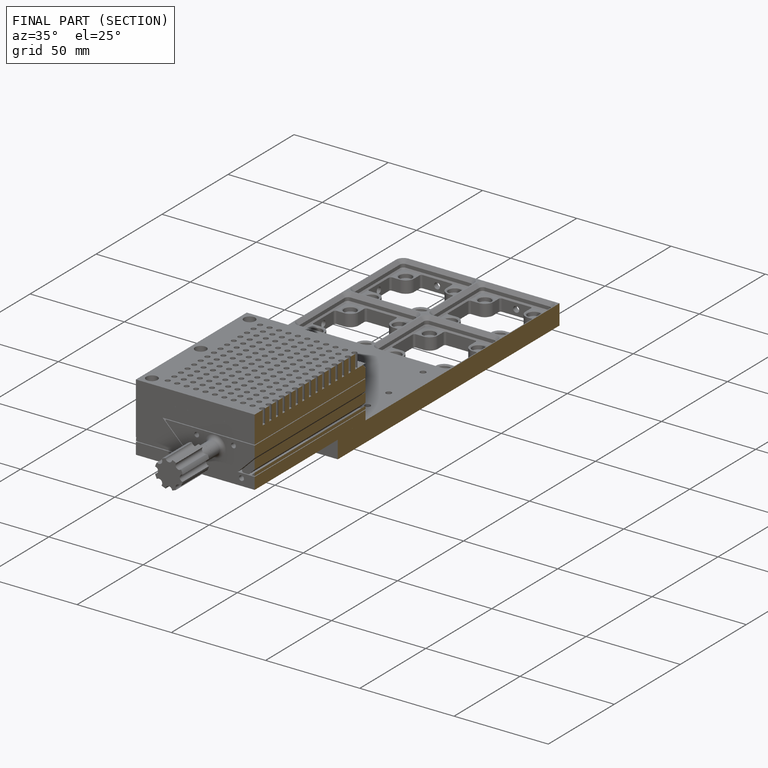
[diagram: finished part — half-section view (interior)]
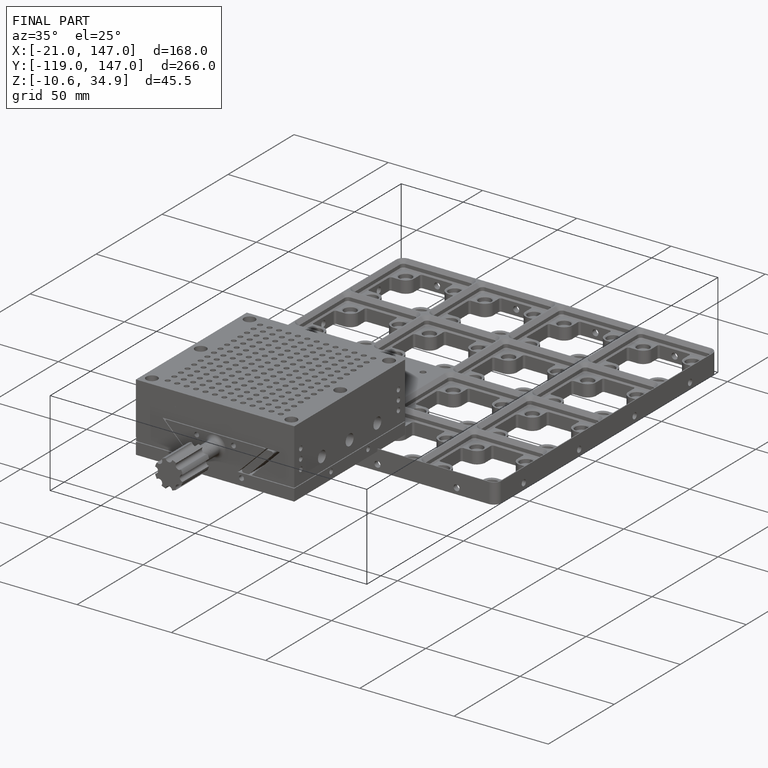
[diagram: finished part — iso view with bounding-box wireframe]
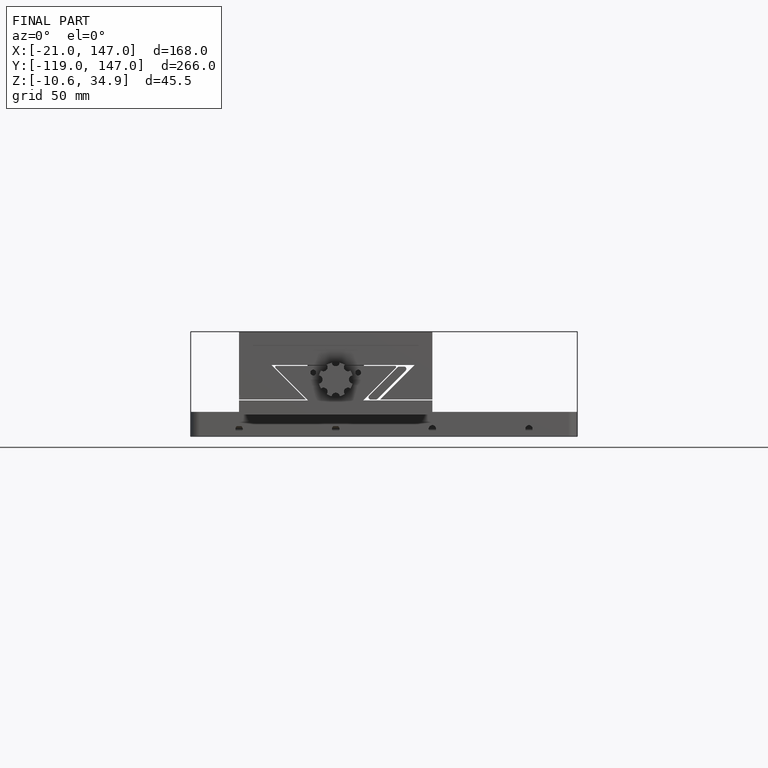
[diagram: finished part — front view with bounding-box wireframe]
